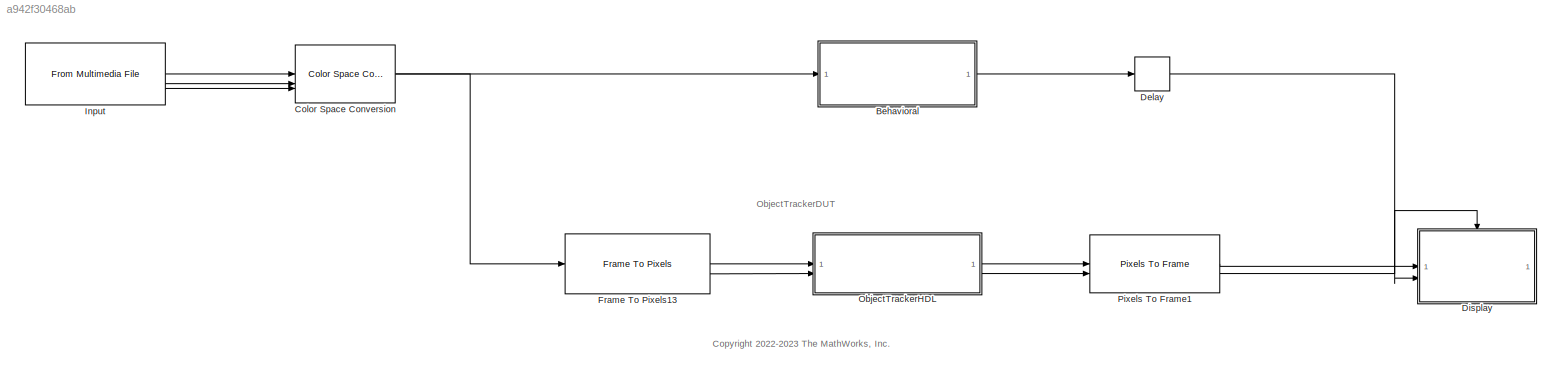
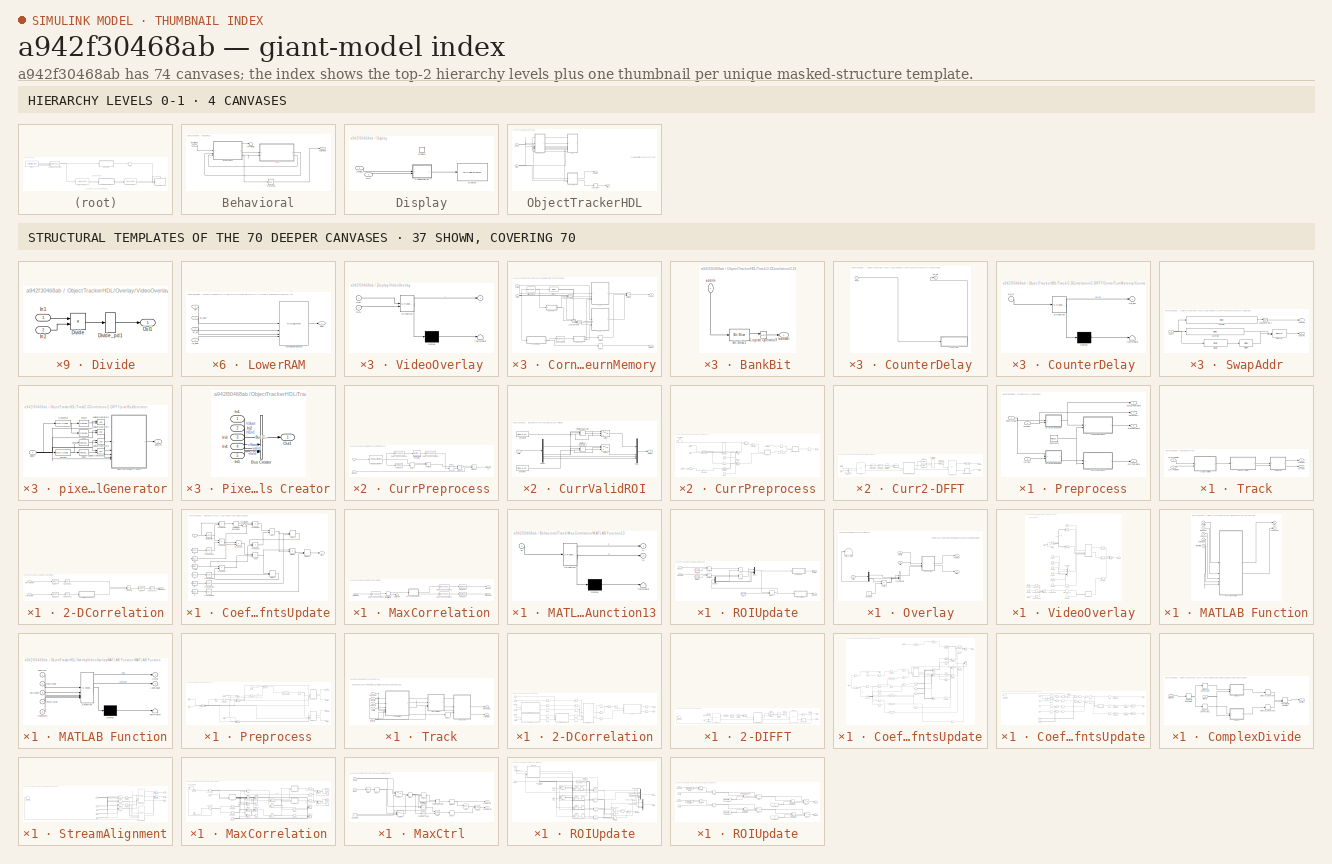
[diagram: thumbnail index - top-2 hierarchy levels (4 canvases) + 37 structural-template representatives of the remaining 70 canvases]
MODEL slx_a942f30468ab
KIND model
CONFIG AbsTol = auto
CONFIG EnableMultiTasking = off
CONFIG FixedStep = auto
CONFIG InitFcn = % Read the first frame\nvidFReader = VideoReader(get_param('ObjectTrackerHDL/Input','inputFilename'));\nimg = read(vidFReader,1);\nif (size(img,3) == 3)\n    img = rgb2gray(img);\nend\nimg = double(img);\n\n% Initialize Object Center\nobjectCenter = str2num(get_param('ObjectTrackerHDL/ObjectTrackerHDL','objectCenter'));\n\n% Template Size\ntemplateSize = str2num(get_param('ObjectTrackerHDL/ObjectTrackerHDL','...<+1630ch>
CONFIG MaxStep = auto
CONFIG MinStep = auto
CONFIG PreLoadFcn = % Blank input\nimg = zeros(480,640);\n\n% Initialize ROI and its center\nROI = [175 270 127 127];\ncenter = [ROI(2)+(ROI(4)+1)/2 ROI(1)+(ROI(3)+1)/2];\n\n% Template Size\ntemplateSize = 128;\ntSize = templateSize;\n\n% Learning rate\neta = 0.075;\n\n% Number of training images\ntrainCount = 2; \n\n% Gaussian Variance\nsig = 2;\n\n% Generate a Gaussian centered on the first frame\niSize = size(img);\n[x,y] = ndgrid(1:iS...<+475ch>
CONFIG RelTol = 1e-3
CONFIG SampleTimeConstraint = Unconstrained
CONFIG SolverName = VariableStepAuto
CONFIG StartTime = 0.0
CONFIG StopTime = 10.0
WORKSPACE source: mxarray member
WORKSPACE mwTaskManagerKernelLatency = 0
BLOCK [SubSystem] Behavioral
BLOCK [SubSystem] Behavioral/Preprocess
BLOCK [Constant] Behavioral/Preprocess/Constant8
  OutDataTypeStr = fixdt(0,16,16)
  SampleTime = -1
  Value = fi(win,0,16,16)
  VectorParams1D = off
BLOCK [SubSystem] Behavioral/Preprocess/CurrPreprocess
BLOCK [Reference] Behavioral/Preprocess/CurrPreprocess/2-D Mean2  REF=visionstatistics/2-D Mean
  SourceBlock = visionstatistics/2-D Mean
  SourceType = 2-D Mean
  UserDataPersistent = on
BLOCK [Reference] Behavioral/Preprocess/CurrPreprocess/2-D Standard Deviation  REF=visionstatistics/2-D Standard
Deviation
  SourceBlock = visionstatistics/2-D Standard\nDeviation
  SourceType = 2-D Standard Deviation
  UserDataPersistent = on
BLOCK [DataTypeConversion] Behavioral/Preprocess/CurrPreprocess/Data Type Conversion2
  OutDataTypeStr = uint8
  RndMeth = Floor
  SaturateOnIntegerOverflow = off
BLOCK [DataTypeConversion] Behavioral/Preprocess/CurrPreprocess/Data Type Conversion3
  OutDataTypeStr = single
  RndMeth = Floor
  SaturateOnIntegerOverflow = off
BLOCK [Delay] Behavioral/Preprocess/CurrPreprocess/Delay
  DelayLength = 1
  InitialCondition = uint8(mean1)
  InputPortMap = u0
BLOCK [Delay] Behavioral/Preprocess/CurrPreprocess/Delay1
  DelayLength = 1
  InitialCondition = uint8(std1)
  InputPortMap = u0
BLOCK [Product] Behavioral/Preprocess/CurrPreprocess/Divide1
  Inputs = */
  OutDataTypeStr = fixdt(1,16,12)
  SaturateOnIntegerOverflow = on
BLOCK [Reference] Behavioral/Preprocess/CurrPreprocess/Gamma Correction  REF=visionconversions/Gamma Correction
  SourceBlock = visionconversions/Gamma Correction
  SourceType = Gamma Correction
BLOCK [Product] Behavioral/Preprocess/CurrPreprocess/Product
BLOCK [Sum] Behavioral/Preprocess/CurrPreprocess/Subtract2
  IconShape = rectangular
  Inputs = +-
  OutDataTypeStr = fixdt(1,16,0)
BLOCK [Inport] Behavioral/Preprocess/CurrPreprocess/in
BLOCK [Outport] Behavioral/Preprocess/CurrPreprocess/out
BLOCK [Inport] Behavioral/Preprocess/CurrPreprocess/window
  Port = 2
BLOCK [SubSystem] Behavioral/Preprocess/MATLAB Function1
  ErrorFcn = Stateflow.Translate.translate
  LibrarySourceBlock = simulink/User-Defined\nFunctions/MATLAB Function
  PermitHierarchicalResolution = ExplicitOnly
  SFBlockType = MATLAB Function
  TreatAsAtomicUnit = on
BLOCK [Demux] Behavioral/Preprocess/MATLAB Function1/ Demux 
  Outputs = 1
BLOCK [S-Function] Behavioral/Preprocess/MATLAB Function1/ SFunction 
  EnableBusSupport = on
  FunctionName = sf_sfun
  Parameters = templateSize
  PortCounts = [2 2]
  SFcnIsStateOwnerBlock = off
  SFunctionDeploymentMode = off
  Tag = Stateflow S-Function 5
BLOCK [Terminator] Behavioral/Preprocess/MATLAB Function1/ Terminator 
BLOCK [Inport] Behavioral/Preprocess/MATLAB Function1/ROI
  Port = 2
BLOCK [Outport] Behavioral/Preprocess/MATLAB Function1/fi
BLOCK [Inport] Behavioral/Preprocess/MATLAB Function1/img
BLOCK [SubSystem] Behavioral/Preprocess/MATLAB Function7
  ErrorFcn = Stateflow.Translate.translate
  LibrarySourceBlock = simulink/User-Defined\nFunctions/MATLAB Function
  PermitHierarchicalResolution = ExplicitOnly
  SFBlockType = MATLAB Function
  TreatAsAtomicUnit = on
BLOCK [Demux] Behavioral/Preprocess/MATLAB Function7/ Demux 
  Outputs = 1
BLOCK [S-Function] Behavioral/Preprocess/MATLAB Function7/ SFunction 
  EnableBusSupport = on
  FunctionName = sf_sfun
  Parameters = templateSize
  PortCounts = [2 2]
  SFcnIsStateOwnerBlock = off
  SFunctionDeploymentMode = off
  Tag = Stateflow S-Function 8
BLOCK [Terminator] Behavioral/Preprocess/MATLAB Function7/ Terminator 
BLOCK [Inport] Behavioral/Preprocess/MATLAB Function7/ROI
  Port = 2
BLOCK [Outport] Behavioral/Preprocess/MATLAB Function7/fi
BLOCK [Inport] Behavioral/Preprocess/MATLAB Function7/img
BLOCK [SubSystem] Behavioral/Preprocess/PrevPreprocess
BLOCK [Reference] Behavioral/Preprocess/PrevPreprocess/2-D Mean2  REF=visionstatistics/2-D Mean
  SourceBlock = visionstatistics/2-D Mean
  SourceType = 2-D Mean
  UserDataPersistent = on
BLOCK [Reference] Behavioral/Preprocess/PrevPreprocess/2-D Standard Deviation  REF=visionstatistics/2-D Standard
Deviation
  SourceBlock = visionstatistics/2-D Standard\nDeviation
  SourceType = 2-D Standard Deviation
  UserDataPersistent = on
BLOCK [DataTypeConversion] Behavioral/Preprocess/PrevPreprocess/Data Type Conversion2
  OutDataTypeStr = uint8
  RndMeth = Floor
  SaturateOnIntegerOverflow = off
BLOCK [DataTypeConversion] Behavioral/Preprocess/PrevPreprocess/Data Type Conversion3
  OutDataTypeStr = single
  RndMeth = Floor
  SaturateOnIntegerOverflow = off
BLOCK [Delay] Behavioral/Preprocess/PrevPreprocess/Delay
  DelayLength = 1
  InitialCondition = uint8(mean1)
  InputPortMap = u0
BLOCK [Delay] Behavioral/Preprocess/PrevPreprocess/Delay1
  DelayLength = 1
  InitialCondition = uint8(std1)
  InputPortMap = u0
BLOCK [Product] Behavioral/Preprocess/PrevPreprocess/Divide1
  Inputs = */
  OutDataTypeStr = fixdt(1,16,12)
  SaturateOnIntegerOverflow = on
BLOCK [Reference] Behavioral/Preprocess/PrevPreprocess/Gamma Correction  REF=visionconversions/Gamma Correction
  SourceBlock = visionconversions/Gamma Correction
  SourceType = Gamma Correction
BLOCK [Product] Behavioral/Preprocess/PrevPreprocess/Product
BLOCK [Sum] Behavioral/Preprocess/PrevPreprocess/Subtract2
  IconShape = rectangular
  Inputs = +-
  OutDataTypeStr = fixdt(1,16,0)
BLOCK [Inport] Behavioral/Preprocess/PrevPreprocess/in
BLOCK [Outport] Behavioral/Preprocess/PrevPreprocess/out
BLOCK [Inport] Behavioral/Preprocess/PrevPreprocess/window
  Port = 2
BLOCK [Inport] Behavioral/Preprocess/currROI
  Port = 3
BLOCK [Outport] Behavioral/Preprocess/currTemplate
  Port = 3
BLOCK [Inport] Behavioral/Preprocess/inputImage
BLOCK [Outport] Behavioral/Preprocess/outputROI
  Port = 4
BLOCK [Outport] Behavioral/Preprocess/outputTemplate
BLOCK [Inport] Behavioral/Preprocess/prevROI
  Port = 2
BLOCK [Outport] Behavioral/Preprocess/prevTemplate
  Port = 2
BLOCK [Terminator] Behavioral/Terminator
BLOCK [SubSystem] Behavioral/Track
BLOCK [SubSystem] Behavioral/Track/2-DCorrelation
BLOCK [Reference] Behavioral/Track/2-DCorrelation/2-D FFT  REF=visiontransforms/2-D FFT
  SourceBlock = visiontransforms/2-D FFT
  SourceType = 2-D FFT
BLOCK [Reference] Behavioral/Track/2-DCorrelation/2-D FFT1  REF=visiontransforms/2-D FFT
  SourceBlock = visiontransforms/2-D FFT
  SourceType = 2-D FFT
BLOCK [Reference] Behavioral/Track/2-DCorrelation/2-D IFFT  REF=visiontransforms/2-D IFFT
  SourceBlock = visiontransforms/2-D IFFT
  SourceType = 2-D IFFT
BLOCK [SubSystem] Behavioral/Track/2-DCorrelation/CoefficientsUpdate
BLOCK [Constant] Behavioral/Track/2-DCorrelation/CoefficientsUpdate/1-eta
  OutDataTypeStr = fixdt(0,16,16)
  SampleTime = -1
  Value = fi(1-eta,0,16,16)
BLOCK [Sum] Behavioral/Track/2-DCorrelation/CoefficientsUpdate/Add6
  IconShape = rectangular
  OutDataTypeStr = fixdt(1,28,8)
BLOCK [Sum] Behavioral/Track/2-DCorrelation/CoefficientsUpdate/Add7
  IconShape = rectangular
  OutDataTypeStr = fixdt(1,36,8)
BLOCK [Constant] Behavioral/Track/2-DCorrelation/CoefficientsUpdate/Ai
  OutDataTypeStr = fixdt(1,28,8)
  SampleTime = -1
  Value = fi(Ai,1,28,8)
BLOCK [Constant] Behavioral/Track/2-DCorrelation/CoefficientsUpdate/Bi
  OutDataTypeStr = fixdt(1,36,8)
  SampleTime = -1
  Value = fi(Bi,1,36,8)
BLOCK [ComplexToRealImag] Behavioral/Track/2-DCorrelation/CoefficientsUpdate/Complex to Real-Imag1
BLOCK [Math] Behavioral/Track/2-DCorrelation/CoefficientsUpdate/Conjugate1
  Operator = conj
  RndMeth = Zero
  SignedPower = on
BLOCK [Delay] Behavioral/Track/2-DCorrelation/CoefficientsUpdate/Delay4
  DelayLength = 1
  InitialCondition = Ai
  InitialConditionSource = Input port
  InputPortMap = u0,p4
BLOCK [Delay] Behavioral/Track/2-DCorrelation/CoefficientsUpdate/Delay5
  DelayLength = 1
  InitialCondition = Bi
  InitialConditionSource = Input port
  InputPortMap = u0,p4
BLOCK [Delay] Behavioral/Track/2-DCorrelation/CoefficientsUpdate/Delay6
  DelayLength = 1
  InitialCondition = Hi
  InitialConditionSource = Input port
  InputPortMap = u0,p4
BLOCK [Product] Behavioral/Track/2-DCorrelation/CoefficientsUpdate/Divide1
  Inputs = */
  OutDataTypeStr = fixdt(1,24,12)
  RndMeth = Simplest
  SaturateOnIntegerOverflow = on
BLOCK [Constant] Behavioral/Track/2-DCorrelation/CoefficientsUpdate/G
  SampleTime = -1
  Value = fi(G,1,16,11)
  VectorParams1D = off
BLOCK [Constant] Behavioral/Track/2-DCorrelation/CoefficientsUpdate/Hi
  OutDataTypeStr = fixdt(1,24,12)
  SampleTime = -1
  Value = fi(Hi,1,24,12)
BLOCK [Inport] Behavioral/Track/2-DCorrelation/CoefficientsUpdate/In
BLOCK [Outport] Behavioral/Track/2-DCorrelation/CoefficientsUpdate/Out
BLOCK [Product] Behavioral/Track/2-DCorrelation/CoefficientsUpdate/Product10
  OutDataTypeStr = fixdt(1,24,12)
BLOCK [Product] Behavioral/Track/2-DCorrelation/CoefficientsUpdate/Product11
  OutDataTypeStr = fixdt(1,28,8)
BLOCK [Product] Behavioral/Track/2-DCorrelation/CoefficientsUpdate/Product12
  OutDataTypeStr = fixdt(1,32,8)
BLOCK [Product] Behavioral/Track/2-DCorrelation/CoefficientsUpdate/Product13
  OutDataTypeStr = fixdt(1,32,12)
BLOCK [Product] Behavioral/Track/2-DCorrelation/CoefficientsUpdate/Product14
  OutDataTypeStr = fixdt(1,36,8)
BLOCK [Product] Behavioral/Track/2-DCorrelation/CoefficientsUpdate/Product9
  OutDataTypeStr = fixdt(1,24,8)
BLOCK [Terminator] Behavioral/Track/2-DCorrelation/CoefficientsUpdate/Terminator
BLOCK [Math] Behavioral/Track/2-DCorrelation/CoefficientsUpdate/Transpose1
  Operator = transpose
BLOCK [Math] Behavioral/Track/2-DCorrelation/CoefficientsUpdate/Transpose5
  Operator = transpose
BLOCK [Math] Behavioral/Track/2-DCorrelation/CoefficientsUpdate/Transpose6
  Operator = transpose
BLOCK [Math] Behavioral/Track/2-DCorrelation/CoefficientsUpdate/Transpose7
  Operator = transpose
BLOCK [Constant] Behavioral/Track/2-DCorrelation/CoefficientsUpdate/eta
  SampleTime = -1
  Value = fi(eta,0,16,16)
BLOCK [Product] Behavioral/Track/2-DCorrelation/Product8
  OutDataTypeStr = fixdt(1,24,16)
BLOCK [Math] Behavioral/Track/2-DCorrelation/Transpose
  Operator = transpose
BLOCK [Math] Behavioral/Track/2-DCorrelation/Transpose1
  Operator = transpose
BLOCK [Math] Behavioral/Track/2-DCorrelation/Transpose2
  Operator = transpose
BLOCK [Outport] Behavioral/Track/2-DCorrelation/correlationOut
BLOCK [Inport] Behavioral/Track/2-DCorrelation/currTemplate
  Port = 2
BLOCK [Inport] Behavioral/Track/2-DCorrelation/prevTemplate
BLOCK [SubSystem] Behavioral/Track/MaxCorrelation
BLOCK [Reference] Behavioral/Track/MaxCorrelation/2-D Mean3  REF=visionstatistics/2-D Mean
  SourceBlock = visionstatistics/2-D Mean
  SourceType = 2-D Mean
  UserDataPersistent = on
BLOCK [Reference] Behavioral/Track/MaxCorrelation/2-D Mean4  REF=visionstatistics/2-D Mean
  SourceBlock = visionstatistics/2-D Mean
  SourceType = 2-D Mean
  UserDataPersistent = on
BLOCK [ComplexToRealImag] Behavioral/Track/MaxCorrelation/Complex to Real-Imag
BLOCK [DataTypeConversion] Behavioral/Track/MaxCorrelation/Data Type Conversion1
  OutDataTypeStr = uint16
  RndMeth = Floor
  SaturateOnIntegerOverflow = off
BLOCK [DataTypeConversion] Behavioral/Track/MaxCorrelation/Data Type Conversion3
  OutDataTypeStr = single
  RndMeth = Floor
  SaturateOnIntegerOverflow = off
BLOCK [DataTypeConversion] Behavioral/Track/MaxCorrelation/Data Type Conversion4
  OutDataTypeStr = uint16
  RndMeth = Floor
  SaturateOnIntegerOverflow = off
BLOCK [SubSystem] Behavioral/Track/MaxCorrelation/MATLAB Function13
  ErrorFcn = Stateflow.Translate.translate
  LibrarySourceBlock = simulink/User-Defined\nFunctions/MATLAB Function
  PermitHierarchicalResolution = ExplicitOnly
  SFBlockType = MATLAB Function
  TreatAsAtomicUnit = on
BLOCK [Demux] Behavioral/Track/MaxCorrelation/MATLAB Function13/ Demux 
  Outputs = 1
BLOCK [S-Function] Behavioral/Track/MaxCorrelation/MATLAB Function13/ SFunction 
  EnableBusSupport = on
  FunctionName = sf_sfun
  PortCounts = [1 3]
  SFcnIsStateOwnerBlock = off
  SFunctionDeploymentMode = off
  Tag = Stateflow S-Function 13
BLOCK [Terminator] Behavioral/Track/MaxCorrelation/MATLAB Function13/ Terminator 
BLOCK [Outport] Behavioral/Track/MaxCorrelation/MATLAB Function13/P
BLOCK [Outport] Behavioral/Track/MaxCorrelation/MATLAB Function13/Q
  Port = 2
BLOCK [Inport] Behavioral/Track/MaxCorrelation/MATLAB Function13/gi
BLOCK [Terminator] Behavioral/Track/MaxCorrelation/Terminator
BLOCK [Inport] Behavioral/Track/MaxCorrelation/correlationIn
BLOCK [Outport] Behavioral/Track/MaxCorrelation/maxCol
BLOCK [Outport] Behavioral/Track/MaxCorrelation/maxRow
  Port = 2
BLOCK [SubSystem] Behavioral/Track/ROIUpdate
BLOCK [Sum] Behavioral/Track/ROIUpdate/Add4
  IconShape = rectangular
  OutDataTypeStr = uint16
BLOCK [Sum] Behavioral/Track/ROIUpdate/Add5
  IconShape = rectangular
  OutDataTypeStr = uint16
BLOCK [SubSystem] Behavioral/Track/ROIUpdate/CurrValidROI
BLOCK [Constant] Behavioral/Track/ROIUpdate/CurrValidROI/Constant
  OutDataTypeStr = uint16
  SampleTime = -1
  Value = iSize(1)-tSize
BLOCK [Constant] Behavioral/Track/ROIUpdate/CurrValidROI/Constant1
  OutDataTypeStr = uint16
  SampleTime = -1
  Value = iSize(2)-tSize
BLOCK [Demux] Behavioral/Track/ROIUpdate/CurrValidROI/Demux
BLOCK [Mux] Behavioral/Track/ROIUpdate/CurrValidROI/Mux1
  DisplayOption = bar
BLOCK [Inport] Behavioral/Track/ROIUpdate/CurrValidROI/ROIIn
BLOCK [Outport] Behavioral/Track/ROIUpdate/CurrValidROI/ROIOut
BLOCK [RelationalOperator] Behavioral/Track/ROIUpdate/CurrValidROI/Relational Operator
  InputSameDT = off
  Operator = <
  OutDataTypeStr = boolean
  RndMeth = Simplest
BLOCK [RelationalOperator] Behavioral/Track/ROIUpdate/CurrValidROI/Relational Operator1
  InputSameDT = off
  Operator = <
  OutDataTypeStr = boolean
  RndMeth = Simplest
BLOCK [Switch] Behavioral/Track/ROIUpdate/CurrValidROI/Switch
  Criteria = u2 ~= 0
  InputSameDT = off
  SaturateOnIntegerOverflow = off
BLOCK [Switch] Behavioral/Track/ROIUpdate/CurrValidROI/Switch1
  Criteria = u2 ~= 0
  InputSameDT = off
  SaturateOnIntegerOverflow = off
BLOCK [Delay] Behavioral/Track/ROIUpdate/Delay7
  DelayLength = 1
  InitialCondition = 0
  InitialConditionSource = Input port
  InputPortMap = u0,p4
BLOCK [Demux] Behavioral/Track/ROIUpdate/Demux1
BLOCK [Mux] Behavioral/Track/ROIUpdate/Mux1
  DisplayOption = bar
BLOCK [SubSystem] Behavioral/Track/ROIUpdate/PrevValidROI
BLOCK [Constant] Behavioral/Track/ROIUpdate/PrevValidROI/Constant
  OutDataTypeStr = uint16
  SampleTime = -1
  Value = iSize(1)-tSize
BLOCK [Constant] Behavioral/Track/ROIUpdate/PrevValidROI/Constant1
  OutDataTypeStr = uint16
  SampleTime = -1
  Value = iSize(2)-tSize
BLOCK [Demux] Behavioral/Track/ROIUpdate/PrevValidROI/Demux
BLOCK [Mux] Behavioral/Track/ROIUpdate/PrevValidROI/Mux1
  DisplayOption = bar
BLOCK [Inport] Behavioral/Track/ROIUpdate/PrevValidROI/ROIIn
BLOCK [Outport] Behavioral/Track/ROIUpdate/PrevValidROI/ROIOut
BLOCK [RelationalOperator] Behavioral/Track/ROIUpdate/PrevValidROI/Relational Operator
  InputSameDT = off
  Operator = <
  OutDataTypeStr = boolean
  RndMeth = Simplest
BLOCK [RelationalOperator] Behavioral/Track/ROIUpdate/PrevValidROI/Relational Operator1
  InputSameDT = off
  Operator = <
  OutDataTypeStr = boolean
  RndMeth = Simplest
BLOCK [Switch] Behavioral/Track/ROIUpdate/PrevValidROI/Switch
  Criteria = u2 ~= 0
  InputSameDT = off
  SaturateOnIntegerOverflow = off
BLOCK [Switch] Behavioral/Track/ROIUpdate/PrevValidROI/Switch1
  Criteria = u2 ~= 0
  InputSameDT = off
  SaturateOnIntegerOverflow = off
BLOCK [Constant] Behavioral/Track/ROIUpdate/ROI
  OutDataTypeStr = uint16
  SampleTime = -1
  Value = uint16(ROI)
BLOCK [Sum] Behavioral/Track/ROIUpdate/Subtract3
  IconShape = rectangular
  Inputs = +-
  OutDataTypeStr = fixdt(1,17,0)
BLOCK [Sum] Behavioral/Track/ROIUpdate/Subtract4
  IconShape = rectangular
  Inputs = +-
  OutDataTypeStr = fixdt(1,17,0)
BLOCK [Outport] Behavioral/Track/ROIUpdate/currROI
  Port = 2
BLOCK [Constant] Behavioral/Track/ROIUpdate/height//2
  SampleTime = -1
  Value = uint16(tSize/2)
BLOCK [Inport] Behavioral/Track/ROIUpdate/maxCol
BLOCK [Inport] Behavioral/Track/ROIUpdate/maxRow
  Port = 2
BLOCK [Outport] Behavioral/Track/ROIUpdate/prevROI
BLOCK [Constant] Behavioral/Track/ROIUpdate/width//2
  SampleTime = -1
  Value = uint16(tSize/2)
BLOCK [Outport] Behavioral/Track/currROI
  Port = 2
BLOCK [Inport] Behavioral/Track/currTemplate
  Port = 2
BLOCK [Outport] Behavioral/Track/prevROI
BLOCK [Inport] Behavioral/Track/prevTemplate
BLOCK [Math] Behavioral/Transpose
  Operator = transpose
BLOCK [Inport] Behavioral/inputImage
BLOCK [Outport] Behavioral/outputROI
BLOCK [Reference] Color Space Conversion  REF=visionconversions/Color Space
 Conversion
  SourceBlock = visionconversions/Color Space\n Conversion
  SourceType = Color Space Conversion
BLOCK [Delay] Delay
  InputPortMap = u0
BLOCK [SubSystem] Display
BLOCK [Reference] Display/Display  REF=visionsinks/To Video Display
  SourceBlock = visionsinks/To Video Display
  SourceType = To Video Display
BLOCK [EnablePort] Display/Enable
BLOCK [Inport] Display/Image
BLOCK [Inport] Display/ROI
  Port = 2
BLOCK [SubSystem] Display/VideoOverlay
  ErrorFcn = Stateflow.Translate.translate
  LibrarySourceBlock = simulink/User-Defined\nFunctions/MATLAB Function
  PermitHierarchicalResolution = ExplicitOnly
  SFBlockType = MATLAB Function
  TreatAsAtomicUnit = on
BLOCK [Demux] Display/VideoOverlay/ Demux 
  Outputs = 1
BLOCK [S-Function] Display/VideoOverlay/ SFunction 
  EnableBusSupport = on
  FunctionName = sf_sfun
  PortCounts = [2 2]
  SFcnIsStateOwnerBlock = off
  SFunctionDeploymentMode = off
  Tag = Stateflow S-Function 4
BLOCK [Terminator] Display/VideoOverlay/ Terminator 
BLOCK [Inport] Display/VideoOverlay/ROI
  Port = 2
BLOCK [Inport] Display/VideoOverlay/img
BLOCK [Outport] Display/VideoOverlay/y
BLOCK [Reference] Frame To Pixels13  REF=visionhdlio/Frame To Pixels
  SourceBlock = visionhdlio/Frame To Pixels
  SourceType = Frame To Pixels
BLOCK [Reference] Input  REF=dspvision/From Multimedia File
  LibrarySourceBlock = visionsources/From Multimedia File
  SourceBlock = dspvision/From Multimedia File
  SourceType = From Multimedia File
BLOCK [SubSystem] ObjectTrackerHDL
BLOCK [SubSystem] ObjectTrackerHDL/Overlay
BLOCK [Constant] ObjectTrackerHDL/Overlay/Constant
  OutDataTypeStr = uint16
  SampleTime = 7.94444444444444e-08
BLOCK [Inport] ObjectTrackerHDL/Overlay/ROIIn
  OutDataTypeStr = uint16
  Port = 3
  PortDimensions = [4]
  SampleTime = 7.94444444444444e-08
BLOCK [Terminator] ObjectTrackerHDL/Overlay/ROIIn_3_term3
BLOCK [Sum] ObjectTrackerHDL/Overlay/Subtract
  AccumDataTypeStr = uint16
  IconShape = rectangular
  Inputs = +-
  OutDataTypeStr = uint16
  SampleTime = 7.94444444444444e-08
BLOCK [SubSystem] ObjectTrackerHDL/Overlay/VideoOverlay
BLOCK [Constant] ObjectTrackerHDL/Overlay/VideoOverlay/Constant1
  OutDataTypeStr = uint8
  SampleTime = 7.94444444444444e-08
  Value = 3
  VectorParams1D = off
BLOCK [Constant] ObjectTrackerHDL/Overlay/VideoOverlay/Constant10
  OutDataTypeStr = int8
  SampleTime = 7.94444444444444e-08
  VectorParams1D = off
BLOCK [Constant] ObjectTrackerHDL/Overlay/VideoOverlay/Constant2
  OutDataTypeStr = int8
  SampleTime = 7.94444444444444e-08
  Value = repmat(0,[1  3])
  VectorParams1D = off
BLOCK [Constant] ObjectTrackerHDL/Overlay/VideoOverlay/Constant3
  OutDataTypeStr = fixdt(1, 9, 0)
  SampleTime = 7.94444444444444e-08
  Value = repmat(-255,[1  3])
  VectorParams1D = off
BLOCK [Constant] ObjectTrackerHDL/Overlay/VideoOverlay/Constant4
  OutDataTypeStr = uint8
  SampleTime = 7.94444444444444e-08
  Value = 3
BLOCK [Constant] ObjectTrackerHDL/Overlay/VideoOverlay/Constant5
  OutDataTypeStr = uint8
  SampleTime = 7.94444444444444e-08
  Value = [255 0 0]
  VectorParams1D = off
BLOCK [Constant] ObjectTrackerHDL/Overlay/VideoOverlay/Constant6
  OutDataTypeStr = uint8
  SampleTime = 7.94444444444444e-08
  Value = [0 255 0]
  VectorParams1D = off
BLOCK [Constant] ObjectTrackerHDL/Overlay/VideoOverlay/Constant7
  OutDataTypeStr = uint8
  SampleTime = 7.94444444444444e-08
  Value = [0 0 255]
  VectorParams1D = off
BLOCK [Constant] ObjectTrackerHDL/Overlay/VideoOverlay/Constant8
  OutDataTypeStr = uint8
  SampleTime = 7.94444444444444e-08
  Value = [0 255 255]
  VectorParams1D = off
BLOCK [Constant] ObjectTrackerHDL/Overlay/VideoOverlay/Constant9
  OutDataTypeStr = uint8
  SampleTime = 7.94444444444444e-08
  Value = [255 255 0]
  VectorParams1D = off
BLOCK [DataTypeConversion] ObjectTrackerHDL/Overlay/VideoOverlay/Data Type Conversion
  OutDataTypeStr = uint8
  RndMeth = Floor
  SampleTime = 7.94444444444444e-08
  SaturateOnIntegerOverflow = off
BLOCK [SubSystem] ObjectTrackerHDL/Overlay/VideoOverlay/Divide
BLOCK [Product] ObjectTrackerHDL/Overlay/VideoOverlay/Divide/Divide
  Inputs = */
  OutDataTypeStr = fixdt(1, 18, 0)
  RndMeth = Zero
  SaturateOnIntegerOverflow = on
BLOCK [Delay] ObjectTrackerHDL/Overlay/VideoOverlay/Divide/Divide_pd1
  DelayLength = 22
  InputPortMap = u0
BLOCK [Inport] ObjectTrackerHDL/Overlay/VideoOverlay/Divide/In1
BLOCK [Inport] ObjectTrackerHDL/Overlay/VideoOverlay/Divide/In2
  Port = 2
BLOCK [Outport] ObjectTrackerHDL/Overlay/VideoOverlay/Divide/Out1
BLOCK [Reference] ObjectTrackerHDL/Overlay/VideoOverlay/HDL Counter  REF=hdlsllib/Sources/HDL Counter
  SourceBlock = hdlsllib/Sources/HDL Counter
  SourceType = HDL Counter
BLOCK [Reference] ObjectTrackerHDL/Overlay/VideoOverlay/HDL Counter1  REF=hdlsllib/Sources/HDL Counter
  SourceBlock = hdlsllib/Sources/HDL Counter
  SourceType = HDL Counter
BLOCK [Delay] ObjectTrackerHDL/Overlay/VideoOverlay/HwModeRegister
  DelayLength = double(1)
  InitialCondition = 0
  InputPortMap = u0
  SampleTime = 7.94444444444444e-08
BLOCK [Delay] ObjectTrackerHDL/Overlay/VideoOverlay/HwModeRegister1
  DelayLength = double(1)
  InitialCondition = 0
  InputPortMap = u0
  SampleTime = 7.94444444444444e-08
BLOCK [Delay] ObjectTrackerHDL/Overlay/VideoOverlay/HwModeRegister2
  DelayLength = double(1)
  InitialCondition = 0
  InputPortMap = u0
  SampleTime = 7.94444444444444e-08
BLOCK [SubSystem] ObjectTrackerHDL/Overlay/VideoOverlay/MATLAB Function
BLOCK [Outport] ObjectTrackerHDL/Overlay/VideoOverlay/MATLAB Function/AddShape
  Port = 2
  SampleTime = 7.94444444444444e-08
BLOCK [Outport] ObjectTrackerHDL/Overlay/VideoOverlay/MATLAB Function/Color
  SampleTime = 7.94444444444444e-08
  VectorParamsAs1DForOutWhenUnconnected = off
BLOCK [SubSystem] ObjectTrackerHDL/Overlay/VideoOverlay/MATLAB Function/MATLAB Function
  ErrorFcn = Stateflow.Translate.translate
  PermitHierarchicalResolution = ExplicitOnly
  SFBlockType = MATLAB Function
  TreatAsAtomicUnit = on
BLOCK [Demux] ObjectTrackerHDL/Overlay/VideoOverlay/MATLAB Function/MATLAB Function/ Demux 
  Outputs = 1
BLOCK [S-Function] ObjectTrackerHDL/Overlay/VideoOverlay/MATLAB Function/MATLAB Function/ SFunction 
  EnableBusSupport = on
  FunctionName = sf_sfun
  PortCounts = [5 3]
  SFcnIsStateOwnerBlock = off
  SFunctionDeploymentMode = off
  Tag = Stateflow S-Function 2
BLOCK [Terminator] ObjectTrackerHDL/Overlay/VideoOverlay/MATLAB Function/MATLAB Function/ Terminator 
BLOCK [Outport] ObjectTrackerHDL/Overlay/VideoOverlay/MATLAB Function/MATLAB Function/AddShape
  Port = 2
BLOCK [Outport] ObjectTrackerHDL/Overlay/VideoOverlay/MATLAB Function/MATLAB Function/Color
  VectorParamsAs1DForOutWhenUnconnected = off
BLOCK [Inport] ObjectTrackerHDL/Overlay/VideoOverlay/MATLAB Function/MATLAB Function/colCount
  Port = 3
BLOCK [Inport] ObjectTrackerHDL/Overlay/VideoOverlay/MATLAB Function/MATLAB Function/colorValue
  Port = 4
BLOCK [Inport] ObjectTrackerHDL/Overlay/VideoOverlay/MATLAB Function/MATLAB Function/lineWidth
  Port = 5
BLOCK [Inport] ObjectTrackerHDL/Overlay/VideoOverlay/MATLAB Function/MATLAB Function/position
BLOCK [Inport] ObjectTrackerHDL/Overlay/VideoOverlay/MATLAB Function/MATLAB Function/rowCount
  Port = 2
BLOCK [Inport] ObjectTrackerHDL/Overlay/VideoOverlay/MATLAB Function/colCount
  OutDataTypeStr = int32
  Port = 3
  PortDimensions = 1
  SampleTime = 7.94444444444444e-08
BLOCK [Inport] ObjectTrackerHDL/Overlay/VideoOverlay/MATLAB Function/colorValue
  OutDataTypeStr = uint8
  Port = 4
  PortDimensions = [1 3]
  SampleTime = 7.94444444444444e-08
BLOCK [Inport] ObjectTrackerHDL/Overlay/VideoOverlay/MATLAB Function/lineWidth
  OutDataTypeStr = uint8
  Port = 5
  PortDimensions = 1
  SampleTime = 7.94444444444444e-08
BLOCK [Inport] ObjectTrackerHDL/Overlay/VideoOverlay/MATLAB Function/position
  OutDataTypeStr = uint16
  PortDimensions = [1 4]
  SampleTime = 7.94444444444444e-08
BLOCK [Inport] ObjectTrackerHDL/Overlay/VideoOverlay/MATLAB Function/rowCount
  OutDataTypeStr = int32
  Port = 2
  PortDimensions = 1
  SampleTime = 7.94444444444444e-08
BLOCK [Reference] ObjectTrackerHDL/Overlay/VideoOverlay/Multiply-Add  REF=hdlsllib/HDL Operations/Multiply-Add
  SourceBlock = hdlsllib/HDL Operations/Multiply-Add
  SourceType = Multiply-Add
BLOCK [DataTypeConversion] ObjectTrackerHDL/Overlay/VideoOverlay/Multiply-Add_out_dtc
  OutDataTypeStr = fixdt(1, 18, 0)
  RndMeth = Floor
  SampleTime = 7.94444444444444e-08
  SaturateOnIntegerOverflow = off
BLOCK [MultiPortSwitch] ObjectTrackerHDL/Overlay/VideoOverlay/Multiport Switch
  DiagnosticForDefault = None
  InputSameDT = off
  Inputs = 5
  OutDataTypeStr = uint8
  SampleTime = 7.94444444444444e-08
  SaturateOnIntegerOverflow = off
BLOCK [Delay] ObjectTrackerHDL/Overlay/VideoOverlay/PipelineRegister
  DelayLength = double(2)
  InitialCondition = 0
  InputPortMap = u0
  SampleTime = 7.94444444444444e-08
BLOCK [Inport] ObjectTrackerHDL/Overlay/VideoOverlay/Position
  OutDataTypeStr = uint16
  Port = 3
  PortDimensions = [1 4]
  SampleTime = 7.94444444444444e-08
BLOCK [Switch] ObjectTrackerHDL/Overlay/VideoOverlay/Switch
  Criteria = u2 ~= 0
  InputSameDT = off
  OutDataTypeStr = uint8
  SampleTime = 7.94444444444444e-08
  SaturateOnIntegerOverflow = off
  Threshold = double(0)
BLOCK [BusSelector] ObjectTrackerHDL/Overlay/VideoOverlay/bus_selector
  OutputSignals = vStart,hStart,valid
BLOCK [Inport] ObjectTrackerHDL/Overlay/VideoOverlay/ctrlIn
  Port = 2
BLOCK [Outport] ObjectTrackerHDL/Overlay/VideoOverlay/ctrlOut
  Port = 2
BLOCK [Delay] ObjectTrackerHDL/Overlay/VideoOverlay/delayMatch
  DelayLength = double(25)
  InitialCondition = 0
  InputPortMap = u0
  SampleTime = 7.94444444444444e-08
BLOCK [Delay] ObjectTrackerHDL/Overlay/VideoOverlay/delayMatch1
  DelayLength = double(25)
  InitialCondition = 0
  InputPortMap = u0
  SampleTime = 7.94444444444444e-08
BLOCK [Inport] ObjectTrackerHDL/Overlay/VideoOverlay/pixelIn
  OutDataTypeStr = uint8
  PortDimensions = 1
  SampleTime = 7.94444444444444e-08
BLOCK [Outport] ObjectTrackerHDL/Overlay/VideoOverlay/pixelOut
  SampleTime = 7.94444444444444e-08
BLOCK [Concatenate] ObjectTrackerHDL/Overlay/concatenate
  ConcatenateDimension = 2
  Mode = Multidimensional array
  NumInputs = 4
BLOCK [Inport] ObjectTrackerHDL/Overlay/ctrlIn
  Port = 2
BLOCK [Outport] ObjectTrackerHDL/Overlay/ctrlOut
  Port = 2
BLOCK [Inport] ObjectTrackerHDL/Overlay/pixelIn
  OutDataTypeStr = uint8
  PortDimensions = 1
  SampleTime = 7.94444444444444e-08
BLOCK [Outport] ObjectTrackerHDL/Overlay/pixelOut
  SampleTime = 7.94444444444444e-08
BLOCK [Demux] ObjectTrackerHDL/Overlay/t
BLOCK [SubSystem] ObjectTrackerHDL/Preprocess
BLOCK [Lookup_n-D] ObjectTrackerHDL/Preprocess/1-D Lookup Table
  BreakpointsForDimension1 = [0:tSize * tSize - 1]
  BreakpointsForDimension1FirstPoint = 10
  BreakpointsForDimension1Spacing = 12
  BreakpointsForDimension2FirstPoint = 10
  BreakpointsForDimension2Spacing = 12
  IndexSearchMethod = Evenly spaced points
  InputPortMap = u0
  InternalRulePriority = Speed
  InterpMethod = Flat
  LookupTableObject = ''
  NumberOfTableDimensions = 1
  OutDataTypeStr = fixdt(0,16,16)
  RndMeth = Simplest
  Table = fi(win(:)',0,16,16)
BLOCK [Constant] ObjectTrackerHDL/Preprocess/Constant
  OutDataTypeStr = boolean
  SampleTime = 7.94444444444444e-08
  Value = 0
BLOCK [SubSystem] ObjectTrackerHDL/Preprocess/CurrPreprocess
BLOCK [Reference] ObjectTrackerHDL/Preprocess/CurrPreprocess/Compare To Constant1  REF=simulink/Logic and Bit
Operations/Compare
To Constant
  SourceBlock = simulink/Logic and Bit\nOperations/Compare\nTo Constant
  SourceType = Compare To Constant
BLOCK [DataTypeConversion] ObjectTrackerHDL/Preprocess/CurrPreprocess/Data Type Conversion
  OutDataTypeStr = fixdt(1, 28, 12)
  RndMeth = Floor
  SampleTime = 7.94444444444444e-08
  SaturateOnIntegerOverflow = off
BLOCK [Delay] ObjectTrackerHDL/Preprocess/CurrPreprocess/Delay
  DelayLength = double(34)
  InitialCondition = 0
  InputPortMap = u0
  SampleTime = 7.94444444444444e-08
BLOCK [Delay] ObjectTrackerHDL/Preprocess/CurrPreprocess/Delay1_absorbed
  DelayLength = 0
  InputPortMap = u0
BLOCK [Delay] ObjectTrackerHDL/Preprocess/CurrPreprocess/Delay2
  DelayLength = double(30)
  InitialCondition = 0
  InputPortMap = u0
  SampleTime = 7.94444444444444e-08
BLOCK [Delay] ObjectTrackerHDL/Preprocess/CurrPreprocess/Delay3
  DelayLength = double(68)
  InputPortMap = u0
  SampleTime = 7.94444444444444e-08
BLOCK [SubSystem] ObjectTrackerHDL/Preprocess/CurrPreprocess/Divide1
BLOCK [Product] ObjectTrackerHDL/Preprocess/CurrPreprocess/Divide1/Divide1
  Inputs = */
  OutDataTypeStr = fixdt(1,16,12)
  RndMeth = Zero
  SaturateOnIntegerOverflow = on
BLOCK [Delay] ObjectTrackerHDL/Preprocess/CurrPreprocess/Divide1/Divide1_pd1
  DelayLength = 34
  InputPortMap = u0
BLOCK [Inport] ObjectTrackerHDL/Preprocess/CurrPreprocess/Divide1/In1
BLOCK [Inport] ObjectTrackerHDL/Preprocess/CurrPreprocess/Divide1/In2
  Port = 2
BLOCK [Outport] ObjectTrackerHDL/Preprocess/CurrPreprocess/Divide1/Out1
BLOCK [Reference] ObjectTrackerHDL/Preprocess/CurrPreprocess/Gamma Corrector  REF=visionhdlconversions/Gamma Corrector
  SourceBlock = visionhdlconversions/Gamma Corrector
  SourceType = Gamma Corrector
BLOCK [Reference] ObjectTrackerHDL/Preprocess/CurrPreprocess/HDL Counter2  REF=hdlsllib/Sources/HDL Counter
  SourceBlock = hdlsllib/Sources/HDL Counter
  SourceType = HDL Counter
BLOCK [Reference] ObjectTrackerHDL/Preprocess/CurrPreprocess/Image Statistics  REF=visionhdlstatistics/Image Statistics
  SourceBlock = visionhdlstatistics/Image Statistics
  SourceType = Image Statistics
BLOCK [Terminator] ObjectTrackerHDL/Preprocess/CurrPreprocess/Image Statistics_term2
BLOCK [SubSystem] ObjectTrackerHDL/Preprocess/CurrPreprocess/Multiply_ShiftAdd_inst
BLOCK [Inport] ObjectTrackerHDL/Preprocess/CurrPreprocess/Multiply_ShiftAdd_inst/In1
BLOCK [Inport] ObjectTrackerHDL/Preprocess/CurrPreprocess/Multiply_ShiftAdd_inst/In2
  Port = 2
BLOCK [Product] ObjectTrackerHDL/Preprocess/CurrPreprocess/Multiply_ShiftAdd_inst/Multiply_ShiftAdd_inst
  OutDataTypeStr = fixdt(1, 32, 28)
BLOCK [Delay] ObjectTrackerHDL/Preprocess/CurrPreprocess/Multiply_ShiftAdd_inst/Multiply_ShiftAdd_inst_pd1
  DelayLength = 4
  InputPortMap = u0
BLOCK [Outport] ObjectTrackerHDL/Preprocess/CurrPreprocess/Multiply_ShiftAdd_inst/Out1
BLOCK [Sum] ObjectTrackerHDL/Preprocess/CurrPreprocess/Subtract2
  AccumDataTypeStr = fixdt(1, 9, 0)
  IconShape = rectangular
  Inputs = +-
  OutDataTypeStr = int16
  SampleTime = 7.94444444444444e-08
BLOCK [Switch] ObjectTrackerHDL/Preprocess/CurrPreprocess/Switch
  Criteria = u2 ~= 0
  InputSameDT = off
  OutDataTypeStr = uint8
  SampleTime = 7.94444444444444e-08
  SaturateOnIntegerOverflow = off
  Threshold = double(0)
BLOCK [Switch] ObjectTrackerHDL/Preprocess/CurrPreprocess/Switch1
  Criteria = u2 ~= 0
  InputSameDT = off
  OutDataTypeStr = uint8
  SampleTime = 7.94444444444444e-08
  SaturateOnIntegerOverflow = off
  Threshold = double(0)
BLOCK [BusSelector] ObjectTrackerHDL/Preprocess/CurrPreprocess/bus_selector
  OutputSignals = vEnd
BLOCK [Inport] ObjectTrackerHDL/Preprocess/CurrPreprocess/ctrlIn
  Port = 3
BLOCK [Outport] ObjectTrackerHDL/Preprocess/CurrPreprocess/ctrlOut
  Port = 2
BLOCK [Inport] ObjectTrackerHDL/Preprocess/CurrPreprocess/frameCtrl
  Port = 4
BLOCK [Constant] ObjectTrackerHDL/Preprocess/CurrPreprocess/mean
  OutDataTypeStr = uint8
  SampleTime = 7.94444444444444e-08
  Value = 51
BLOCK [Inport] ObjectTrackerHDL/Preprocess/CurrPreprocess/pixelIn
  OutDataTypeStr = uint8
  PortDimensions = 1
  SampleTime = 7.94444444444444e-08
BLOCK [Outport] ObjectTrackerHDL/Preprocess/CurrPreprocess/pixelOut
  SampleTime = 7.94444444444444e-08
BLOCK [Inport] ObjectTrackerHDL/Preprocess/CurrPreprocess/pixelWindow
  OutDataTypeStr = fixdt(0, 16, 16)
  Port = 2
  PortDimensions = 1
  SampleTime = 7.94444444444444e-08
BLOCK [Constant] ObjectTrackerHDL/Preprocess/CurrPreprocess/stdDev
  OutDataTypeStr = uint8
  SampleTime = 7.94444444444444e-08
  Value = 27
BLOCK [DataTypeConversion] ObjectTrackerHDL/Preprocess/Data Type Conversion
  OutDataTypeStr = fixdt(0,8,0)
BLOCK [Delay] ObjectTrackerHDL/Preprocess/Delay
  DelayLength = double(1)
  InitialCondition = 0
  InputPortMap = u0
  SampleTime = 7.94444444444444e-08
BLOCK [Reference] ObjectTrackerHDL/Preprocess/Edge Detector  REF=visionhdlanalysis/Edge Detector
  SourceBlock = visionhdlanalysis/Edge Detector
  SourceType = Edge Detector
BLOCK [Gain] ObjectTrackerHDL/Preprocess/Gain
  Gain = fi(0,0,8,0,"hex","ff")
  OutDataTypeStr = uint8
  ParamDataTypeStr = fixdt(0, 8, 0)
  SampleTime = 7.94444444444444e-08
BLOCK [Reference] ObjectTrackerHDL/Preprocess/HDL Counter  REF=hdlsllib/Sources/HDL Counter
  SourceBlock = hdlsllib/Sources/HDL Counter
  SourceType = HDL Counter
BLOCK [Outport] ObjectTrackerHDL/Preprocess/OutputROI
  Port = 5
  SampleTime = 7.94444444444444e-08
BLOCK [SubSystem] ObjectTrackerHDL/Preprocess/PrevPreprocess
BLOCK [Reference] ObjectTrackerHDL/Preprocess/PrevPreprocess/Compare To Constant1  REF=simulink/Logic and Bit
Operations/Compare
To Constant
  SourceBlock = simulink/Logic and Bit\nOperations/Compare\nTo Constant
  SourceType = Compare To Constant
BLOCK [DataTypeConversion] ObjectTrackerHDL/Preprocess/PrevPreprocess/Data Type Conversion1
  OutDataTypeStr = fixdt(1, 28, 12)
  RndMeth = Floor
  SampleTime = 7.94444444444444e-08
  SaturateOnIntegerOverflow = off
BLOCK [Delay] ObjectTrackerHDL/Preprocess/PrevPreprocess/Delay
  DelayLength = double(34)
  InitialCondition = 0
  InputPortMap = u0
  SampleTime = 7.94444444444444e-08
BLOCK [Delay] ObjectTrackerHDL/Preprocess/PrevPreprocess/Delay1
  DelayLength = double(30)
  InitialCondition = 0
  InputPortMap = u0
  SampleTime = 7.94444444444444e-08
BLOCK [Delay] ObjectTrackerHDL/Preprocess/PrevPreprocess/Delay2_absorbed
  DelayLength = 0
  InputPortMap = u0
BLOCK [Delay] ObjectTrackerHDL/Preprocess/PrevPreprocess/Delay3
  DelayLength = double(68)
  InputPortMap = u0
  SampleTime = 7.94444444444444e-08
BLOCK [SubSystem] ObjectTrackerHDL/Preprocess/PrevPreprocess/Divide2
BLOCK [Product] ObjectTrackerHDL/Preprocess/PrevPreprocess/Divide2/Divide2
  Inputs = */
  OutDataTypeStr = fixdt(1,16,12)
  RndMeth = Zero
  SaturateOnIntegerOverflow = on
BLOCK [Delay] ObjectTrackerHDL/Preprocess/PrevPreprocess/Divide2/Divide2_pd1
  DelayLength = 34
  InputPortMap = u0
BLOCK [Inport] ObjectTrackerHDL/Preprocess/PrevPreprocess/Divide2/In1
BLOCK [Inport] ObjectTrackerHDL/Preprocess/PrevPreprocess/Divide2/In2
  Port = 2
BLOCK [Outport] ObjectTrackerHDL/Preprocess/PrevPreprocess/Divide2/Out1
BLOCK [Reference] ObjectTrackerHDL/Preprocess/PrevPreprocess/Gamma Corrector  REF=visionhdlconversions/Gamma Corrector
  SourceBlock = visionhdlconversions/Gamma Corrector
  SourceType = Gamma Corrector
BLOCK [Reference] ObjectTrackerHDL/Preprocess/PrevPreprocess/HDL Counter2  REF=hdlsllib/Sources/HDL Counter
  SourceBlock = hdlsllib/Sources/HDL Counter
  SourceType = HDL Counter
BLOCK [Reference] ObjectTrackerHDL/Preprocess/PrevPreprocess/Image Statistics  REF=visionhdlstatistics/Image Statistics
  SourceBlock = visionhdlstatistics/Image Statistics
  SourceType = Image Statistics
BLOCK [Terminator] ObjectTrackerHDL/Preprocess/PrevPreprocess/Image Statistics_term2
BLOCK [SubSystem] ObjectTrackerHDL/Preprocess/PrevPreprocess/Multiply_ShiftAdd_inst
BLOCK [Inport] ObjectTrackerHDL/Preprocess/PrevPreprocess/Multiply_ShiftAdd_inst/In1
BLOCK [Inport] ObjectTrackerHDL/Preprocess/PrevPreprocess/Multiply_ShiftAdd_inst/In2
  Port = 2
BLOCK [Product] ObjectTrackerHDL/Preprocess/PrevPreprocess/Multiply_ShiftAdd_inst/Multiply_ShiftAdd_inst
  OutDataTypeStr = fixdt(1, 32, 28)
BLOCK [Delay] ObjectTrackerHDL/Preprocess/PrevPreprocess/Multiply_ShiftAdd_inst/Multiply_ShiftAdd_inst_pd1
  DelayLength = 4
  InputPortMap = u0
BLOCK [Outport] ObjectTrackerHDL/Preprocess/PrevPreprocess/Multiply_ShiftAdd_inst/Out1
BLOCK [Sum] ObjectTrackerHDL/Preprocess/PrevPreprocess/Subtract3
  AccumDataTypeStr = fixdt(1, 9, 0)
  IconShape = rectangular
  Inputs = +-
  OutDataTypeStr = int16
  SampleTime = 7.94444444444444e-08
BLOCK [Switch] ObjectTrackerHDL/Preprocess/PrevPreprocess/Switch
  Criteria = u2 ~= 0
  InputSameDT = off
  OutDataTypeStr = uint8
  SampleTime = 7.94444444444444e-08
  SaturateOnIntegerOverflow = off
  Threshold = double(0)
BLOCK [Switch] ObjectTrackerHDL/Preprocess/PrevPreprocess/Switch1
  Criteria = u2 ~= 0
  InputSameDT = off
  OutDataTypeStr = uint8
  SampleTime = 7.94444444444444e-08
  SaturateOnIntegerOverflow = off
  Threshold = double(0)
BLOCK [BusSelector] ObjectTrackerHDL/Preprocess/PrevPreprocess/bus_selector
  OutputSignals = vEnd
BLOCK [Inport] ObjectTrackerHDL/Preprocess/PrevPreprocess/ctrlIn
  Port = 3
BLOCK [Outport] ObjectTrackerHDL/Preprocess/PrevPreprocess/ctrlOut
  Port = 2
BLOCK [Inport] ObjectTrackerHDL/Preprocess/PrevPreprocess/frameCtrl
  Port = 4
BLOCK [Constant] ObjectTrackerHDL/Preprocess/PrevPreprocess/mean
  OutDataTypeStr = uint8
  SampleTime = 7.94444444444444e-08
  Value = 51
BLOCK [Inport] ObjectTrackerHDL/Preprocess/PrevPreprocess/pixelIn
  OutDataTypeStr = uint8
  PortDimensions = 1
  SampleTime = 7.94444444444444e-08
BLOCK [Outport] ObjectTrackerHDL/Preprocess/PrevPreprocess/pixelOut
  SampleTime = 7.94444444444444e-08
BLOCK [Inport] ObjectTrackerHDL/Preprocess/PrevPreprocess/pixelWindow
  OutDataTypeStr = fixdt(0, 16, 16)
  Port = 2
  PortDimensions = 1
  SampleTime = 7.94444444444444e-08
BLOCK [Constant] ObjectTrackerHDL/Preprocess/PrevPreprocess/stdDev
  OutDataTypeStr = uint8
  SampleTime = 7.94444444444444e-08
  Value = 27
BLOCK [Reference] ObjectTrackerHDL/Preprocess/ROI Selector  REF=visionhdlutilities/ROI Selector
  SourceBlock = visionhdlutilities/ROI Selector
  SourceType = visionhdl.ROISelector
BLOCK [Reference] ObjectTrackerHDL/Preprocess/ROI Selector1  REF=visionhdlutilities/ROI Selector
  SourceBlock = visionhdlutilities/ROI Selector
  SourceType = visionhdl.ROISelector
BLOCK [BusSelector] ObjectTrackerHDL/Preprocess/bus_selector
  OutputSignals = valid
BLOCK [Inport] ObjectTrackerHDL/Preprocess/ctrlIn
  Port = 2
BLOCK [Outport] ObjectTrackerHDL/Preprocess/currCtrlOut
  Port = 4
BLOCK [Outport] ObjectTrackerHDL/Preprocess/currPixelOut
  Port = 3
  SampleTime = 7.94444444444444e-08
BLOCK [Inport] ObjectTrackerHDL/Preprocess/currROI
  OutDataTypeStr = uint16
  Port = 4
  PortDimensions = [4]
  SampleTime = 7.94444444444444e-08
BLOCK [Inport] ObjectTrackerHDL/Preprocess/pixelIn
  OutDataTypeStr = uint8
  PortDimensions = 1
  SampleTime = 7.94444444444444e-08
BLOCK [Outport] ObjectTrackerHDL/Preprocess/prevCtrlOut
  Port = 2
BLOCK [Outport] ObjectTrackerHDL/Preprocess/prevPixelOut
  SampleTime = 7.94444444444444e-08
BLOCK [Inport] ObjectTrackerHDL/Preprocess/prevROI
  OutDataTypeStr = uint16
  Port = 3
  PortDimensions = [4]
  SampleTime = 7.94444444444444e-08
BLOCK [SubSystem] ObjectTrackerHDL/Track
BLOCK [SubSystem] ObjectTrackerHDL/Track/2-DCorrelation
BLOCK [SubSystem] ObjectTrackerHDL/Track/2-DCorrelation/2-DIFFT
BLOCK [DataTypeConversion] ObjectTrackerHDL/Track/2-DCorrelation/2-DIFFT/ 
  OutDataTypeStr = fixdt(1,24,16)
  RndMeth = Floor
  SaturateOnIntegerOverflow = off
BLOCK [Reference] ObjectTrackerHDL/Track/2-DCorrelation/2-DIFFT/Bit Concat1  REF=hdlsllib/Logic and Bit
Operations/Bit Concat
  SourceBlock = hdlsllib/Logic and Bit\nOperations/Bit Concat
  SourceType = Bit Concat
BLOCK [Reference] ObjectTrackerHDL/Track/2-DCorrelation/2-DIFFT/Bit Slice4  REF=hdlsllib/Logic and Bit
Operations/Bit Slice
  SourceBlock = hdlsllib/Logic and Bit\nOperations/Bit Slice
  SourceType = Bit Slice
BLOCK [Reference] ObjectTrackerHDL/Track/2-DCorrelation/2-DIFFT/Bit Slice5  REF=hdlsllib/Logic and Bit
Operations/Bit Slice
  SourceBlock = hdlsllib/Logic and Bit\nOperations/Bit Slice
  SourceType = Bit Slice
BLOCK [Reference] ObjectTrackerHDL/Track/2-DCorrelation/2-DIFFT/ColumnIFFT  REF=dsphdlxfrm2/IFFT
  SourceBlock = dsphdlxfrm2/IFFT
  SourceType = IFFT
BLOCK [ComplexToRealImag] ObjectTrackerHDL/Track/2-DCorrelation/2-DIFFT/Complex to Real-Imag
BLOCK [ComplexToRealImag] ObjectTrackerHDL/Track/2-DCorrelation/2-DIFFT/Complex to Real-Imag1
BLOCK [Terminator] ObjectTrackerHDL/Track/2-DCorrelation/2-DIFFT/Complex to Real-Imag_term1
BLOCK [SubSystem] ObjectTrackerHDL/Track/2-DCorrelation/2-DIFFT/CornerTurnMemory
BLOCK [SubSystem] ObjectTrackerHDL/Track/2-DCorrelation/2-DIFFT/CornerTurnMemory/BankBit
BLOCK [Reference] ObjectTrackerHDL/Track/2-DCorrelation/2-DIFFT/CornerTurnMemory/BankBit/Bit Slice1  REF=hdlsllib/Logic and Bit
Operations/Bit Slice
  SourceBlock = hdlsllib/Logic and Bit\nOperations/Bit Slice
  SourceType = Bit Slice
BLOCK [Logic] ObjectTrackerHDL/Track/2-DCorrelation/2-DIFFT/CornerTurnMemory/BankBit/Logical Operator3
  AllPortsSameDT = off
  IconShape = distinctive
  Operator = NOT
  OutDataTypeStr = boolean
BLOCK [Inport] ObjectTrackerHDL/Track/2-DCorrelation/2-DIFFT/CornerTurnMemory/BankBit/addrIn
  NameLocation = right
  OutDataTypeStr = fixdt(0, 15, 0)
  PortDimensions = 1
  SampleTime = 7.94444444444444e-08
BLOCK [Outport] ObjectTrackerHDL/Track/2-DCorrelation/2-DIFFT/CornerTurnMemory/BankBit/bankWr
  SampleTime = 7.94444444444444e-08
  VectorParamsAs1DForOutWhenUnconnected = off
BLOCK [Reference] ObjectTrackerHDL/Track/2-DCorrelation/2-DIFFT/CornerTurnMemory/Bit Slice3  REF=hdlsllib/Logic and Bit
Operations/Bit Slice
  SourceBlock = hdlsllib/Logic and Bit\nOperations/Bit Slice
  SourceType = Bit Slice
BLOCK [SubSystem] ObjectTrackerHDL/Track/2-DCorrelation/2-DIFFT/CornerTurnMemory/CounterDelay
BLOCK [SubSystem] ObjectTrackerHDL/Track/2-DCorrelation/2-DIFFT/CornerTurnMemory/CounterDelay/CounterDelay
  ErrorFcn = Stateflow.Translate.translate
  PermitHierarchicalResolution = ExplicitOnly
  SFBlockType = MATLAB Function
  TreatAsAtomicUnit = on
BLOCK [Demux] ObjectTrackerHDL/Track/2-DCorrelation/2-DIFFT/CornerTurnMemory/CounterDelay/CounterDelay/ Demux 
  Outputs = 1
BLOCK [S-Function] ObjectTrackerHDL/Track/2-DCorrelation/2-DIFFT/CornerTurnMemory/CounterDelay/CounterDelay/ SFunction 
  EnableBusSupport = on
  FunctionName = sf_sfun
  Parameters = DELAY,blanking,templateSize
  PortCounts = [1 2]
  SFcnIsStateOwnerBlock = off
  SFunctionDeploymentMode = off
  Tag = Stateflow S-Function 12
BLOCK [Terminator] ObjectTrackerHDL/Track/2-DCorrelation/2-DIFFT/CornerTurnMemory/CounterDelay/CounterDelay/ Terminator 
BLOCK [Inport] ObjectTrackerHDL/Track/2-DCorrelation/2-DIFFT/CornerTurnMemory/CounterDelay/CounterDelay/vld_in
BLOCK [Outport] ObjectTrackerHDL/Track/2-DCorrelation/2-DIFFT/CornerTurnMemory/CounterDelay/CounterDelay/vld_out
  VectorParamsAs1DForOutWhenUnconnected = off
BLOCK [Inport] ObjectTrackerHDL/Track/2-DCorrelation/2-DIFFT/CornerTurnMemory/CounterDelay/vld_in
  OutDataTypeStr = boolean
  PortDimensions = 1
  SampleTime = 7.94444444444444e-08
BLOCK [Outport] ObjectTrackerHDL/Track/2-DCorrelation/2-DIFFT/CornerTurnMemory/CounterDelay/vld_out
  SampleTime = 7.94444444444444e-08
  VectorParamsAs1DForOutWhenUnconnected = off
BLOCK [Delay] ObjectTrackerHDL/Track/2-DCorrelation/2-DIFFT/CornerTurnMemory/Delay
  DelayLength = 1
  InputPortMap = u0
BLOCK [Delay] ObjectTrackerHDL/Track/2-DCorrelation/2-DIFFT/CornerTurnMemory/Delay1
  DelayLength = 1
  InputPortMap = u0
BLOCK [Logic] ObjectTrackerHDL/Track/2-DCorrelation/2-DIFFT/CornerTurnMemory/Logical Operator3
  AllPortsSameDT = off
  IconShape = distinctive
  OutDataTypeStr = boolean
BLOCK [Logic] ObjectTrackerHDL/Track/2-DCorrelation/2-DIFFT/CornerTurnMemory/Logical Operator4
  AllPortsSameDT = off
  IconShape = distinctive
  OutDataTypeStr = boolean
BLOCK [Logic] ObjectTrackerHDL/Track/2-DCorrelation/2-DIFFT/CornerTurnMemory/Logical Operator5
  AllPortsSameDT = off
  IconShape = distinctive
  Operator = NOT
  OutDataTypeStr = boolean
BLOCK [SubSystem] ObjectTrackerHDL/Track/2-DCorrelation/2-DIFFT/CornerTurnMemory/LowerRAM
BLOCK [MATLABSystem] ObjectTrackerHDL/Track/2-DCorrelation/2-DIFFT/CornerTurnMemory/LowerRAM/complexDataConcat
  AsyncRead = off
  MaskDisplay = disp(['Simple' char(10) 'Dual Port' char(10) 'RAM']);\nport_label('input',1,'din');\nport_label('input',2,'wr_addr');\nport_label('input',3,'we');\nport_label('input',4,'rd_addr');\nport_label('output',1,'dout');  <repeated x6 — deduplicated; at blocks: complexDataConcat>
  MaskType = hdl.RAM
  NumReads = 0
  NumWrites = 1
  RAMInitialValue = 0
  RAMType = Simple dual port
  SimulateUsing = Code generation
  System = hdl.RAM
  WriteOutputValue = New data
  WritesHaveOutput = on
  allowBusInputs = off
BLOCK [Inport] ObjectTrackerHDL/Track/2-DCorrelation/2-DIFFT/CornerTurnMemory/LowerRAM/din
  OutDataTypeStr = fixdt(0, 64, 0)
  PortDimensions = 1
  SampleTime = 7.94444444444444e-08
BLOCK [Outport] ObjectTrackerHDL/Track/2-DCorrelation/2-DIFFT/CornerTurnMemory/LowerRAM/dout
  SampleTime = 7.94444444444444e-08
  VectorParamsAs1DForOutWhenUnconnected = off
BLOCK [Inport] ObjectTrackerHDL/Track/2-DCorrelation/2-DIFFT/CornerTurnMemory/LowerRAM/rd_addr
  OutDataTypeStr = fixdt(0, 14, 0)
  Port = 4
  PortDimensions = 1
  SampleTime = 7.94444444444444e-08
BLOCK [Inport] ObjectTrackerHDL/Track/2-DCorrelation/2-DIFFT/CornerTurnMemory/LowerRAM/wr_addr
  OutDataTypeStr = fixdt(0, 14, 0)
  Port = 2
  PortDimensions = 1
  SampleTime = 7.94444444444444e-08
BLOCK [Inport] ObjectTrackerHDL/Track/2-DCorrelation/2-DIFFT/CornerTurnMemory/LowerRAM/wr_en
  OutDataTypeStr = boolean
  Port = 3
  PortDimensions = 1
  SampleTime = 7.94444444444444e-08
BLOCK [Reference] ObjectTrackerHDL/Track/2-DCorrelation/2-DIFFT/CornerTurnMemory/ReadAddrCntr  REF=hdlsllib/Sources/HDL Counter
  SourceBlock = hdlsllib/Sources/HDL Counter
  SourceType = HDL Counter
BLOCK [SubSystem] ObjectTrackerHDL/Track/2-DCorrelation/2-DIFFT/CornerTurnMemory/SwapAddr
BLOCK [Reference] ObjectTrackerHDL/Track/2-DCorrelation/2-DIFFT/CornerTurnMemory/SwapAddr/Bit Concat  REF=hdlsllib/Logic and Bit
Operations/Bit Concat
  SourceBlock = hdlsllib/Logic and Bit\nOperations/Bit Concat
  SourceType = Bit Concat
BLOCK [Reference] ObjectTrackerHDL/Track/2-DCorrelation/2-DIFFT/CornerTurnMemory/SwapAddr/Bit Shift  REF=hdlsllib/Logic and Bit
Operations/Bit Shift
  SourceBlock = hdlsllib/Logic and Bit\nOperations/Bit Shift
  SourceType = Bit Shift
BLOCK [Reference] ObjectTrackerHDL/Track/2-DCorrelation/2-DIFFT/CornerTurnMemory/SwapAddr/Bit Slice  REF=hdlsllib/Logic and Bit
Operations/Bit Slice
  SourceBlock = hdlsllib/Logic and Bit\nOperations/Bit Slice
  SourceType = Bit Slice
BLOCK [Logic] ObjectTrackerHDL/Track/2-DCorrelation/2-DIFFT/CornerTurnMemory/SwapAddr/Logical Operator3
  AllPortsSameDT = off
  IconShape = distinctive
  Operator = NOT
  OutDataTypeStr = boolean
BLOCK [Inport] ObjectTrackerHDL/Track/2-DCorrelation/2-DIFFT/CornerTurnMemory/SwapAddr/addrIn
  OutDataTypeStr = fixdt(0, 15, 0)
  PortDimensions = 1
  SampleTime = 7.94444444444444e-08
BLOCK [Outport] ObjectTrackerHDL/Track/2-DCorrelation/2-DIFFT/CornerTurnMemory/SwapAddr/addrRd
  Port = 2
  SampleTime = 7.94444444444444e-08
  VectorParamsAs1DForOutWhenUnconnected = off
BLOCK [Reference] ObjectTrackerHDL/Track/2-DCorrelation/2-DIFFT/CornerTurnMemory/SwapAddr/bankBit  REF=hdlsllib/Logic and Bit
Operations/Bit Slice
  SourceBlock = hdlsllib/Logic and Bit\nOperations/Bit Slice
  SourceType = Bit Slice
BLOCK [Outport] ObjectTrackerHDL/Track/2-DCorrelation/2-DIFFT/CornerTurnMemory/SwapAddr/bankRd
  SampleTime = 7.94444444444444e-08
  VectorParamsAs1DForOutWhenUnconnected = off
BLOCK [Reference] ObjectTrackerHDL/Track/2-DCorrelation/2-DIFFT/CornerTurnMemory/SwapAddr/upperBits  REF=hdlsllib/Logic and Bit
Operations/Bit Slice
  SourceBlock = hdlsllib/Logic and Bit\nOperations/Bit Slice
  SourceType = Bit Slice
BLOCK [Switch] ObjectTrackerHDL/Track/2-DCorrelation/2-DIFFT/CornerTurnMemory/Switch1
  Criteria = u2 ~= 0
  InputSameDT = off
  OutDataTypeStr = fixdt(0, 64, 0)
  SaturateOnIntegerOverflow = off
BLOCK [SubSystem] ObjectTrackerHDL/Track/2-DCorrelation/2-DIFFT/CornerTurnMemory/UpperRAM
BLOCK [MATLABSystem] ObjectTrackerHDL/Track/2-DCorrelation/2-DIFFT/CornerTurnMemory/UpperRAM/complexDataConcat
  AsyncRead = off
  MaskType = hdl.RAM
  NumReads = 0
  NumWrites = 1
  RAMInitialValue = 0
  RAMType = Simple dual port
  SimulateUsing = Code generation
  System = hdl.RAM
  WriteOutputValue = New data
  WritesHaveOutput = on
  allowBusInputs = off
BLOCK [Inport] ObjectTrackerHDL/Track/2-DCorrelation/2-DIFFT/CornerTurnMemory/UpperRAM/din
  OutDataTypeStr = fixdt(0, 64, 0)
  PortDimensions = 1
  SampleTime = 7.94444444444444e-08
BLOCK [Outport] ObjectTrackerHDL/Track/2-DCorrelation/2-DIFFT/CornerTurnMemory/UpperRAM/dout
  SampleTime = 7.94444444444444e-08
  VectorParamsAs1DForOutWhenUnconnected = off
BLOCK [Inport] ObjectTrackerHDL/Track/2-DCorrelation/2-DIFFT/CornerTurnMemory/UpperRAM/rd_addr
  OutDataTypeStr = fixdt(0, 14, 0)
  Port = 4
  PortDimensions = 1
  SampleTime = 7.94444444444444e-08
BLOCK [Inport] ObjectTrackerHDL/Track/2-DCorrelation/2-DIFFT/CornerTurnMemory/UpperRAM/wr_addr
  OutDataTypeStr = fixdt(0, 14, 0)
  Port = 2
  PortDimensions = 1
  SampleTime = 7.94444444444444e-08
BLOCK [Inport] ObjectTrackerHDL/Track/2-DCorrelation/2-DIFFT/CornerTurnMemory/UpperRAM/wr_en
  OutDataTypeStr = boolean
  Port = 3
  PortDimensions = 1
  SampleTime = 7.94444444444444e-08
BLOCK [Reference] ObjectTrackerHDL/Track/2-DCorrelation/2-DIFFT/CornerTurnMemory/WriteAddrCntr  REF=hdlsllib/Sources/HDL Counter
  SourceBlock = hdlsllib/Sources/HDL Counter
  SourceType = HDL Counter
BLOCK [Inport] ObjectTrackerHDL/Track/2-DCorrelation/2-DIFFT/CornerTurnMemory/dataIn
  OutDataTypeStr = fixdt(0, 64, 0)
  PortDimensions = 1
  SampleTime = 7.94444444444444e-08
BLOCK [Outport] ObjectTrackerHDL/Track/2-DCorrelation/2-DIFFT/CornerTurnMemory/dataOut
  SampleTime = 7.94444444444444e-08
BLOCK [Inport] ObjectTrackerHDL/Track/2-DCorrelation/2-DIFFT/CornerTurnMemory/validIn
  OutDataTypeStr = boolean
  Port = 2
  PortDimensions = 1
  SampleTime = 7.94444444444444e-08
BLOCK [Outport] ObjectTrackerHDL/Track/2-DCorrelation/2-DIFFT/CornerTurnMemory/validOut
  Port = 2
  SampleTime = 7.94444444444444e-08
BLOCK [DataTypeConversion] ObjectTrackerHDL/Track/2-DCorrelation/2-DIFFT/Data Type Conversion10
  OutDataTypeStr = fixdt(1,24,16)
  RndMeth = Floor
  SaturateOnIntegerOverflow = off
BLOCK [DataTypeConversion] ObjectTrackerHDL/Track/2-DCorrelation/2-DIFFT/Data Type Conversion12
  OutDataTypeStr = fixdt(1,24,16)
  RndMeth = Floor
  SaturateOnIntegerOverflow = off
BLOCK [DataTypeConversion] ObjectTrackerHDL/Track/2-DCorrelation/2-DIFFT/Data Type Conversion8
  ConvertRealWorld = Stored Integer (SI)
  OutDataTypeStr = fixdt(0,32,0)
  RndMeth = Floor
  SaturateOnIntegerOverflow = off
BLOCK [DataTypeConversion] ObjectTrackerHDL/Track/2-DCorrelation/2-DIFFT/Data Type Conversion9
  ConvertRealWorld = Stored Integer (SI)
  OutDataTypeStr = fixdt(1,24,16)
  RndMeth = Floor
  SaturateOnIntegerOverflow = off
BLOCK [BusSelector] ObjectTrackerHDL/Track/2-DCorrelation/2-DIFFT/Pixel Control Bus Selector1
  OutputSignals = valid
BLOCK [RealImagToComplex] ObjectTrackerHDL/Track/2-DCorrelation/2-DIFFT/Real-Imag to Complex1
BLOCK [Reference] ObjectTrackerHDL/Track/2-DCorrelation/2-DIFFT/RowIFFT  REF=dsphdlxfrm2/IFFT
  SourceBlock = dsphdlxfrm2/IFFT
  SourceType = IFFT
BLOCK [Inport] ObjectTrackerHDL/Track/2-DCorrelation/2-DIFFT/ctrlIn
  Port = 2
BLOCK [Outport] ObjectTrackerHDL/Track/2-DCorrelation/2-DIFFT/ctrlOut
  Port = 2
BLOCK [SubSystem] ObjectTrackerHDL/Track/2-DCorrelation/2-DIFFT/pixelBusGenerator
BLOCK [Reference] ObjectTrackerHDL/Track/2-DCorrelation/2-DIFFT/pixelBusGenerator/Horizontal  REF=hdlsllib/Sources/HDL Counter
  SourceBlock = hdlsllib/Sources/HDL Counter
  SourceType = HDL Counter
BLOCK [Logic] ObjectTrackerHDL/Track/2-DCorrelation/2-DIFFT/pixelBusGenerator/Logical Operator3
  AllPortsSameDT = off
  OutDataTypeStr = boolean
BLOCK [Logic] ObjectTrackerHDL/Track/2-DCorrelation/2-DIFFT/pixelBusGenerator/Logical Operator4
  AllPortsSameDT = off
  OutDataTypeStr = boolean
BLOCK [Logic] ObjectTrackerHDL/Track/2-DCorrelation/2-DIFFT/pixelBusGenerator/Logical Operator5
  AllPortsSameDT = off
  OutDataTypeStr = boolean
BLOCK [Logic] ObjectTrackerHDL/Track/2-DCorrelation/2-DIFFT/pixelBusGenerator/Logical Operator6
  AllPortsSameDT = off
  OutDataTypeStr = boolean
BLOCK [SubSystem] ObjectTrackerHDL/Track/2-DCorrelation/2-DIFFT/pixelBusGenerator/Pixel Control Bus Creator
BLOCK [Reference] ObjectTrackerHDL/Track/2-DCorrelation/2-DIFFT/pixelBusGenerator/Pixel Control Bus Creator/Bus Creator  REF=visionhdlutilities/Pixel Control
Bus Creator/Bus Creator
  SourceBlock = visionhdlutilities/Pixel Control\nBus Creator/Bus Creator
BLOCK [Inport] ObjectTrackerHDL/Track/2-DCorrelation/2-DIFFT/pixelBusGenerator/Pixel Control Bus Creator/In1
  OutDataTypeStr = boolean
  SampleTime = 7.94444444444444e-08
BLOCK [Inport] ObjectTrackerHDL/Track/2-DCorrelation/2-DIFFT/pixelBusGenerator/Pixel Control Bus Creator/In2
  OutDataTypeStr = boolean
  Port = 2
  SampleTime = 7.94444444444444e-08
BLOCK [Inport] ObjectTrackerHDL/Track/2-DCorrelation/2-DIFFT/pixelBusGenerator/Pixel Control Bus Creator/In3
  OutDataTypeStr = boolean
  Port = 3
  SampleTime = 7.94444444444444e-08
BLOCK [Inport] ObjectTrackerHDL/Track/2-DCorrelation/2-DIFFT/pixelBusGenerator/Pixel Control Bus Creator/In4
  OutDataTypeStr = boolean
  Port = 4
  SampleTime = 7.94444444444444e-08
BLOCK [Inport] ObjectTrackerHDL/Track/2-DCorrelation/2-DIFFT/pixelBusGenerator/Pixel Control Bus Creator/In5
  OutDataTypeStr = boolean
  Port = 5
  SampleTime = 7.94444444444444e-08
BLOCK [Outport] ObjectTrackerHDL/Track/2-DCorrelation/2-DIFFT/pixelBusGenerator/Pixel Control Bus Creator/Out1
  SampleTime = 7.94444444444444e-08
BLOCK [Reference] ObjectTrackerHDL/Track/2-DCorrelation/2-DIFFT/pixelBusGenerator/Vertical  REF=hdlsllib/Sources/HDL Counter
  SourceBlock = hdlsllib/Sources/HDL Counter
  SourceType = HDL Counter
BLOCK [Outport] ObjectTrackerHDL/Track/2-DCorrelation/2-DIFFT/pixelBusGenerator/busOut
  VectorParamsAs1DForOutWhenUnconnected = off
BLOCK [Reference] ObjectTrackerHDL/Track/2-DCorrelation/2-DIFFT/pixelBusGenerator/hEnd  REF=simulink/Logic and Bit
Operations/Compare
To Constant
  SourceBlock = simulink/Logic and Bit\nOperations/Compare\nTo Constant
  SourceType = Compare To Constant
BLOCK [Reference] ObjectTrackerHDL/Track/2-DCorrelation/2-DIFFT/pixelBusGenerator/hStart  REF=simulink/Logic and Bit
Operations/Compare
To Constant
  SourceBlock = simulink/Logic and Bit\nOperations/Compare\nTo Constant
  SourceType = Compare To Constant
BLOCK [Reference] ObjectTrackerHDL/Track/2-DCorrelation/2-DIFFT/pixelBusGenerator/vEnd  REF=simulink/Logic and Bit
Operations/Compare
To Constant
  SourceBlock = simulink/Logic and Bit\nOperations/Compare\nTo Constant
  SourceType = Compare To Constant
BLOCK [Reference] ObjectTrackerHDL/Track/2-DCorrelation/2-DIFFT/pixelBusGenerator/vStart  REF=simulink/Logic and Bit
Operations/Compare
To Constant
  SourceBlock = simulink/Logic and Bit\nOperations/Compare\nTo Constant
  SourceType = Compare To Constant
BLOCK [Inport] ObjectTrackerHDL/Track/2-DCorrelation/2-DIFFT/pixelBusGenerator/validIn
  OutDataTypeStr = boolean
  PortDimensions = 1
  SampleTime = 7.94444444444444e-08
BLOCK [Inport] ObjectTrackerHDL/Track/2-DCorrelation/2-DIFFT/pixelIn
  OutDataTypeStr = fixdt(1, 24, 16)
  PortDimensions = 1
  SampleTime = 7.94444444444444e-08
  SignalType = complex
BLOCK [Outport] ObjectTrackerHDL/Track/2-DCorrelation/2-DIFFT/pixelOut
  SampleTime = 7.94444444444444e-08
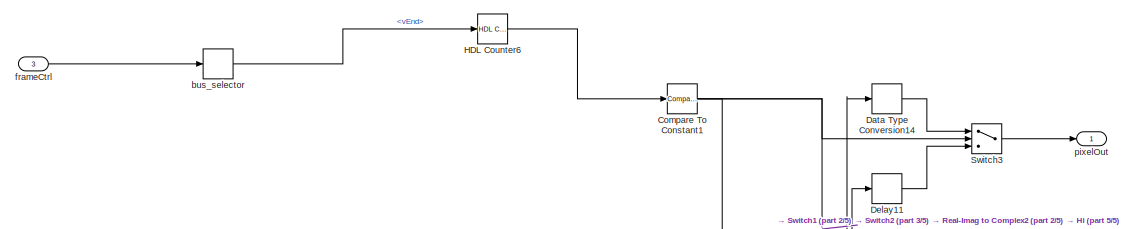
[diagram: ObjectTrackerHDL/Track/2-DCorrelation/CoefficientsUpdate - part 1/5, top right region]
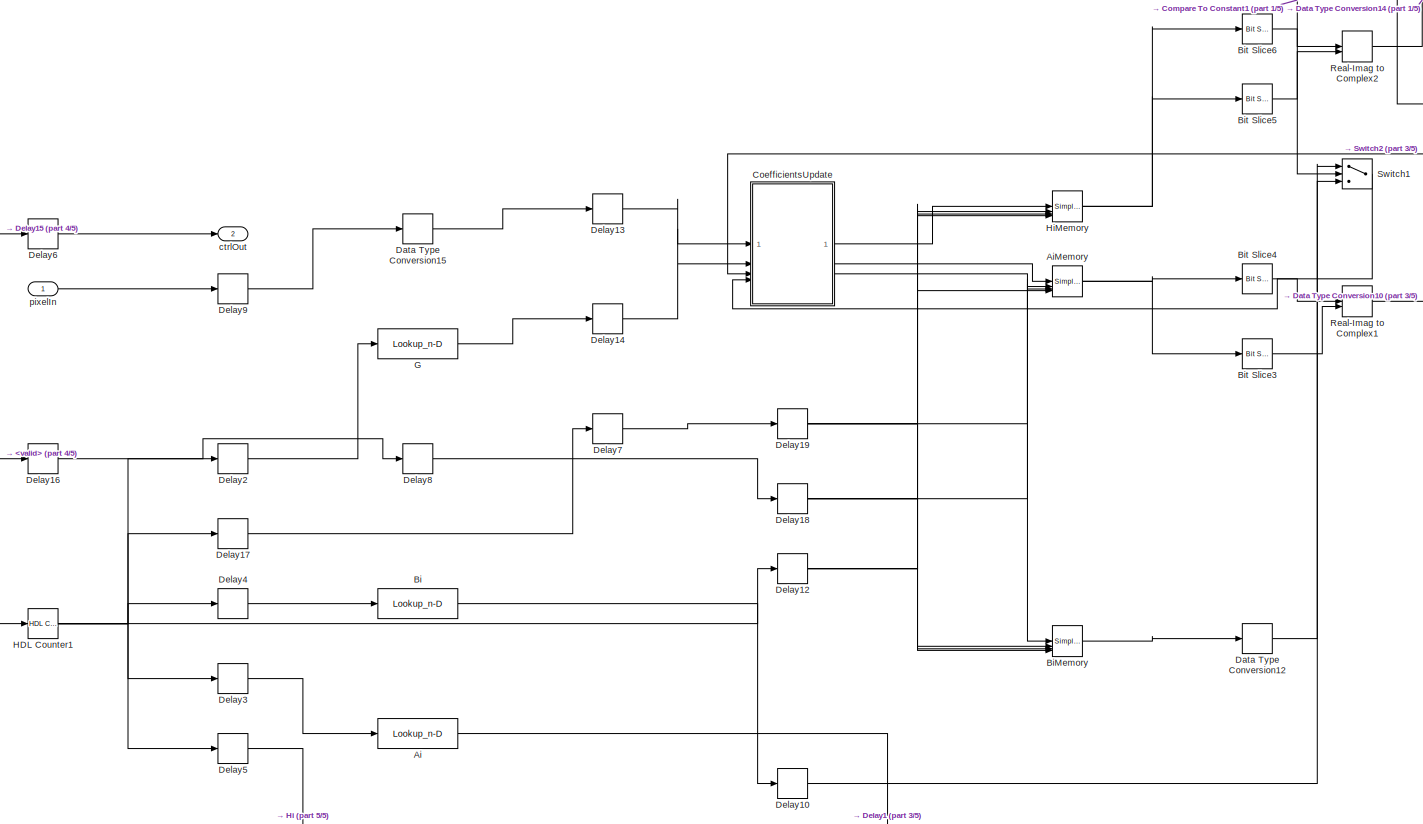
[diagram: ObjectTrackerHDL/Track/2-DCorrelation/CoefficientsUpdate - part 2/5, central region]
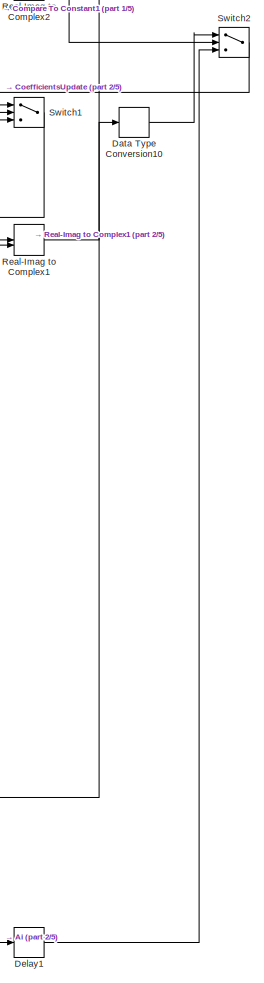
[diagram: ObjectTrackerHDL/Track/2-DCorrelation/CoefficientsUpdate - part 3/5, right side, full height]
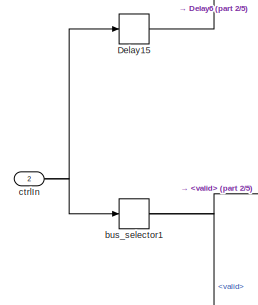
[diagram: ObjectTrackerHDL/Track/2-DCorrelation/CoefficientsUpdate - part 4/5, middle left region]
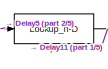
[diagram: ObjectTrackerHDL/Track/2-DCorrelation/CoefficientsUpdate - part 5/5, bottom center region]
BLOCK [SubSystem] ObjectTrackerHDL/Track/2-DCorrelation/CoefficientsUpdate
BLOCK [Lookup_n-D] ObjectTrackerHDL/Track/2-DCorrelation/CoefficientsUpdate/Ai
  BreakpointsForDimension1 = [0:tSize * tSize - 1]
  BreakpointsForDimension1FirstPoint = 10
  BreakpointsForDimension1Spacing = 12
  BreakpointsForDimension2FirstPoint = 10
  BreakpointsForDimension2Spacing = 12
  IndexSearchMethod = Evenly spaced points
  InputPortMap = u0
  InternalRulePriority = Speed
  InterpMethod = Flat
  LookupTableObject = ''
  NumberOfTableDimensions = 1
  OutDataTypeStr = fixdt(1,28,8)
  RndMeth = Simplest
  Table = fi(Ai(:),1,28,8)
BLOCK [Reference] ObjectTrackerHDL/Track/2-DCorrelation/CoefficientsUpdate/AiMemory  REF=hdlsllib/HDL RAMs/Simple Dual Port
RAM System
  SourceBlock = hdlsllib/HDL RAMs/Simple Dual Port\nRAM System
  SourceType = hdl.RAM
BLOCK [Lookup_n-D] ObjectTrackerHDL/Track/2-DCorrelation/CoefficientsUpdate/Bi
  BreakpointsForDimension1 = [0:tSize * tSize - 1]
  BreakpointsForDimension1FirstPoint = 10
  BreakpointsForDimension1Spacing = 12
  BreakpointsForDimension2FirstPoint = 10
  BreakpointsForDimension2Spacing = 12
  IndexSearchMethod = Evenly spaced points
  InputPortMap = u0
  InternalRulePriority = Speed
  InterpMethod = Flat
  LookupTableObject = ''
  NumberOfTableDimensions = 1
  OutDataTypeStr = fixdt(1,36,8)
  RndMeth = Simplest
  Table = fi(Bi(:),1,36,8)
BLOCK [Reference] ObjectTrackerHDL/Track/2-DCorrelation/CoefficientsUpdate/BiMemory  REF=hdlsllib/HDL RAMs/Simple Dual Port
RAM System
  SourceBlock = hdlsllib/HDL RAMs/Simple Dual Port\nRAM System
  SourceType = hdl.RAM
BLOCK [Reference] ObjectTrackerHDL/Track/2-DCorrelation/CoefficientsUpdate/Bit Slice3  REF=hdlsllib/Logic and Bit
Operations/Bit Slice
  SourceBlock = hdlsllib/Logic and Bit\nOperations/Bit Slice
  SourceType = Bit Slice
BLOCK [Reference] ObjectTrackerHDL/Track/2-DCorrelation/CoefficientsUpdate/Bit Slice4  REF=hdlsllib/Logic and Bit
Operations/Bit Slice
  SourceBlock = hdlsllib/Logic and Bit\nOperations/Bit Slice
  SourceType = Bit Slice
BLOCK [Reference] ObjectTrackerHDL/Track/2-DCorrelation/CoefficientsUpdate/Bit Slice5  REF=hdlsllib/Logic and Bit
Operations/Bit Slice
  SourceBlock = hdlsllib/Logic and Bit\nOperations/Bit Slice
  SourceType = Bit Slice
BLOCK [Reference] ObjectTrackerHDL/Track/2-DCorrelation/CoefficientsUpdate/Bit Slice6  REF=hdlsllib/Logic and Bit
Operations/Bit Slice
  SourceBlock = hdlsllib/Logic and Bit\nOperations/Bit Slice
  SourceType = Bit Slice
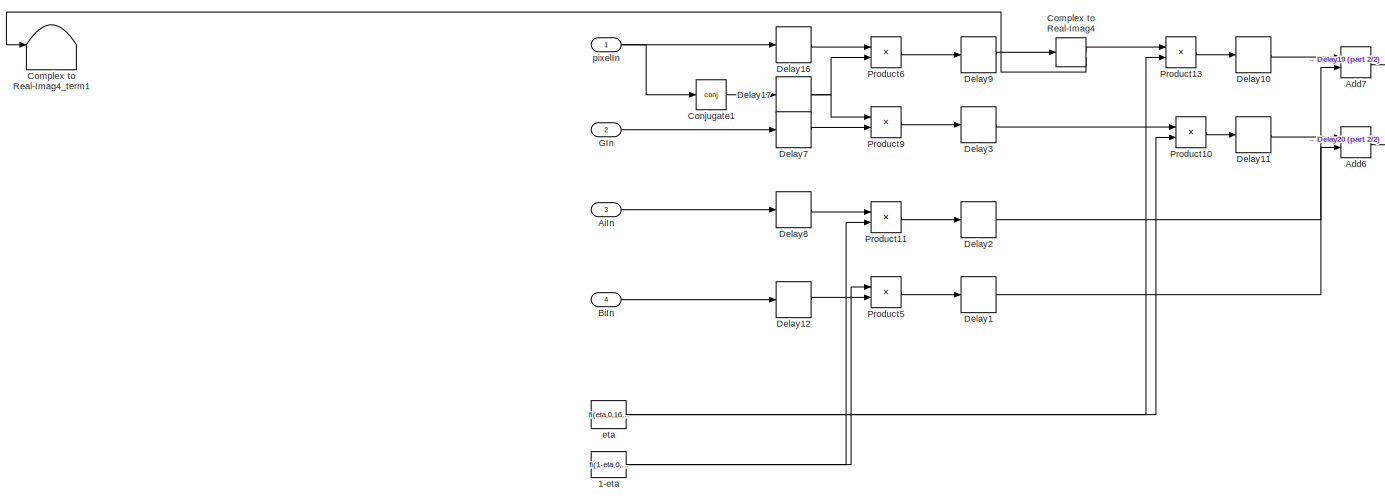
[diagram: ObjectTrackerHDL/Track/2-DCorrelation/CoefficientsUpdate/CoefficientsUpdate - part 1/2, left side, full height]
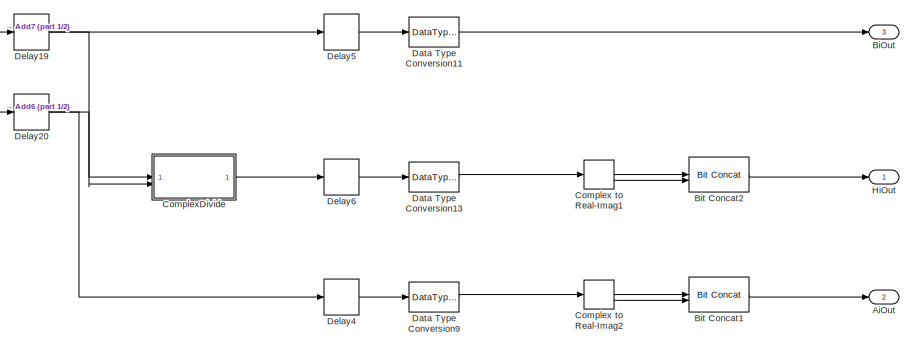
[diagram: ObjectTrackerHDL/Track/2-DCorrelation/CoefficientsUpdate/CoefficientsUpdate - part 2/2, middle right region]
BLOCK [SubSystem] ObjectTrackerHDL/Track/2-DCorrelation/CoefficientsUpdate/CoefficientsUpdate
BLOCK [Constant] ObjectTrackerHDL/Track/2-DCorrelation/CoefficientsUpdate/CoefficientsUpdate/1-eta
  OutDataTypeStr = fixdt(0,16,16)
  SampleTime = -1
  Value = fi(1-eta,0,16,16)
BLOCK [Sum] ObjectTrackerHDL/Track/2-DCorrelation/CoefficientsUpdate/CoefficientsUpdate/Add6
  IconShape = rectangular
  OutDataTypeStr = fixdt(1,28,8)
BLOCK [Sum] ObjectTrackerHDL/Track/2-DCorrelation/CoefficientsUpdate/CoefficientsUpdate/Add7
  IconShape = rectangular
  OutDataTypeStr = fixdt(1,36,8)
BLOCK [Inport] ObjectTrackerHDL/Track/2-DCorrelation/CoefficientsUpdate/CoefficientsUpdate/AiIn
  OutDataTypeStr = fixdt(1, 28, 8)
  Port = 3
  PortDimensions = 1
  SampleTime = 7.94444444444444e-08
  SignalType = complex
BLOCK [Outport] ObjectTrackerHDL/Track/2-DCorrelation/CoefficientsUpdate/CoefficientsUpdate/AiOut
  Port = 2
  SampleTime = 7.94444444444444e-08
BLOCK [Inport] ObjectTrackerHDL/Track/2-DCorrelation/CoefficientsUpdate/CoefficientsUpdate/BiIn
  OutDataTypeStr = fixdt(1, 36, 8)
  Port = 4
  PortDimensions = 1
  SampleTime = 7.94444444444444e-08
BLOCK [Outport] ObjectTrackerHDL/Track/2-DCorrelation/CoefficientsUpdate/CoefficientsUpdate/BiOut
  Port = 3
  SampleTime = 7.94444444444444e-08
BLOCK [Reference] ObjectTrackerHDL/Track/2-DCorrelation/CoefficientsUpdate/CoefficientsUpdate/Bit Concat1  REF=hdlsllib/Logic and Bit
Operations/Bit Concat
  SourceBlock = hdlsllib/Logic and Bit\nOperations/Bit Concat
  SourceType = Bit Concat
BLOCK [Reference] ObjectTrackerHDL/Track/2-DCorrelation/CoefficientsUpdate/CoefficientsUpdate/Bit Concat2  REF=hdlsllib/Logic and Bit
Operations/Bit Concat
  SourceBlock = hdlsllib/Logic and Bit\nOperations/Bit Concat
  SourceType = Bit Concat
BLOCK [ComplexToRealImag] ObjectTrackerHDL/Track/2-DCorrelation/CoefficientsUpdate/CoefficientsUpdate/Complex to Real-Imag1
BLOCK [ComplexToRealImag] ObjectTrackerHDL/Track/2-DCorrelation/CoefficientsUpdate/CoefficientsUpdate/Complex to Real-Imag2
BLOCK [ComplexToRealImag] ObjectTrackerHDL/Track/2-DCorrelation/CoefficientsUpdate/CoefficientsUpdate/Complex to Real-Imag4
BLOCK [Terminator] ObjectTrackerHDL/Track/2-DCorrelation/CoefficientsUpdate/CoefficientsUpdate/Complex to Real-Imag4_term1
BLOCK [SubSystem] ObjectTrackerHDL/Track/2-DCorrelation/CoefficientsUpdate/CoefficientsUpdate/ComplexDivide
BLOCK [ComplexToRealImag] ObjectTrackerHDL/Track/2-DCorrelation/CoefficientsUpdate/CoefficientsUpdate/ComplexDivide/Complex to Real-Imag
  SampleTime = 7.94444444444444e-08
BLOCK [DataTypeConversion] ObjectTrackerHDL/Track/2-DCorrelation/CoefficientsUpdate/CoefficientsUpdate/ComplexDivide/Data Type Conversion
  OutDataTypeStr = fixdt(1, 44, 16)
  RndMeth = Floor
  SampleTime = 7.94444444444444e-08
  SaturateOnIntegerOverflow = off
BLOCK [DataTypeConversion] ObjectTrackerHDL/Track/2-DCorrelation/CoefficientsUpdate/CoefficientsUpdate/ComplexDivide/Data Type Conversion1
  OutDataTypeStr = fixdt(1, 44, 16)
  RndMeth = Floor
  SampleTime = 7.94444444444444e-08
  SaturateOnIntegerOverflow = off
BLOCK [Delay] ObjectTrackerHDL/Track/2-DCorrelation/CoefficientsUpdate/CoefficientsUpdate/ComplexDivide/Delay14_absorbed
  DelayLength = 0
  InputPortMap = u0
BLOCK [Delay] ObjectTrackerHDL/Track/2-DCorrelation/CoefficientsUpdate/CoefficientsUpdate/ComplexDivide/Delay15_absorbed
  DelayLength = 0
  InputPortMap = u0
BLOCK [SubSystem] ObjectTrackerHDL/Track/2-DCorrelation/CoefficientsUpdate/CoefficientsUpdate/ComplexDivide/Divide3
BLOCK [Product] ObjectTrackerHDL/Track/2-DCorrelation/CoefficientsUpdate/CoefficientsUpdate/ComplexDivide/Divide3/Divide3
  Inputs = */
  OutDataTypeStr = fixdt(1,24,12)
  RndMeth = Simplest
  SaturateOnIntegerOverflow = on
BLOCK [Delay] ObjectTrackerHDL/Track/2-DCorrelation/CoefficientsUpdate/CoefficientsUpdate/ComplexDivide/Divide3/Divide3_pd1
  DelayLength = 53
  InputPortMap = u0
BLOCK [Inport] ObjectTrackerHDL/Track/2-DCorrelation/CoefficientsUpdate/CoefficientsUpdate/ComplexDivide/Divide3/In1
BLOCK [Inport] ObjectTrackerHDL/Track/2-DCorrelation/CoefficientsUpdate/CoefficientsUpdate/ComplexDivide/Divide3/In2
  Port = 2
BLOCK [Outport] ObjectTrackerHDL/Track/2-DCorrelation/CoefficientsUpdate/CoefficientsUpdate/ComplexDivide/Divide3/Out1
BLOCK [SubSystem] ObjectTrackerHDL/Track/2-DCorrelation/CoefficientsUpdate/CoefficientsUpdate/ComplexDivide/Divide4
BLOCK [Product] ObjectTrackerHDL/Track/2-DCorrelation/CoefficientsUpdate/CoefficientsUpdate/ComplexDivide/Divide4/Divide4
  Inputs = */
  OutDataTypeStr = fixdt(1,24,12)
  RndMeth = Simplest
  SaturateOnIntegerOverflow = on
BLOCK [Delay] ObjectTrackerHDL/Track/2-DCorrelation/CoefficientsUpdate/CoefficientsUpdate/ComplexDivide/Divide4/Divide4_pd1
  DelayLength = 53
  InputPortMap = u0
BLOCK [Inport] ObjectTrackerHDL/Track/2-DCorrelation/CoefficientsUpdate/CoefficientsUpdate/ComplexDivide/Divide4/In1
BLOCK [Inport] ObjectTrackerHDL/Track/2-DCorrelation/CoefficientsUpdate/CoefficientsUpdate/ComplexDivide/Divide4/In2
  Port = 2
BLOCK [Outport] ObjectTrackerHDL/Track/2-DCorrelation/CoefficientsUpdate/CoefficientsUpdate/ComplexDivide/Divide4/Out1
BLOCK [Inport] ObjectTrackerHDL/Track/2-DCorrelation/CoefficientsUpdate/CoefficientsUpdate/ComplexDivide/Dividend
  OutDataTypeStr = fixdt(1, 28, 8)
  PortDimensions = 1
  SampleTime = 7.94444444444444e-08
  SignalType = complex
BLOCK [Inport] ObjectTrackerHDL/Track/2-DCorrelation/CoefficientsUpdate/CoefficientsUpdate/ComplexDivide/Divisor
  OutDataTypeStr = fixdt(1, 36, 8)
  Port = 2
  PortDimensions = 1
  SampleTime = 7.94444444444444e-08
BLOCK [Outport] ObjectTrackerHDL/Track/2-DCorrelation/CoefficientsUpdate/CoefficientsUpdate/ComplexDivide/Quotient
  SampleTime = 7.94444444444444e-08
BLOCK [RealImagToComplex] ObjectTrackerHDL/Track/2-DCorrelation/CoefficientsUpdate/CoefficientsUpdate/ComplexDivide/Real-Imag to Complex
  ConstantPart = fi(0,1,24,12,"hex","000000")
  SampleTime = 7.94444444444444e-08
BLOCK [Math] ObjectTrackerHDL/Track/2-DCorrelation/CoefficientsUpdate/CoefficientsUpdate/Conjugate1
  Operator = conj
  OutDataTypeStr = fixdt(1, 24, 12)
  RndMeth = Zero
  SignedPower = on
BLOCK [DataTypeConversion] ObjectTrackerHDL/Track/2-DCorrelation/CoefficientsUpdate/CoefficientsUpdate/Data Type Conversion11
  ConvertRealWorld = Stored Integer (SI)
  OutDataTypeStr = uint64
  RndMeth = Floor
  SaturateOnIntegerOverflow = off
BLOCK [DataTypeConversion] ObjectTrackerHDL/Track/2-DCorrelation/CoefficientsUpdate/CoefficientsUpdate/Data Type Conversion13
  ConvertRealWorld = Stored Integer (SI)
  OutDataTypeStr = uint32
  RndMeth = Floor
  SaturateOnIntegerOverflow = off
BLOCK [DataTypeConversion] ObjectTrackerHDL/Track/2-DCorrelation/CoefficientsUpdate/CoefficientsUpdate/Data Type Conversion9
  ConvertRealWorld = Stored Integer (SI)
  OutDataTypeStr = uint32
  RndMeth = Floor
  SaturateOnIntegerOverflow = off
BLOCK [Delay] ObjectTrackerHDL/Track/2-DCorrelation/CoefficientsUpdate/CoefficientsUpdate/Delay1
  InitialCondition = 0
  InputPortMap = u0
BLOCK [Delay] ObjectTrackerHDL/Track/2-DCorrelation/CoefficientsUpdate/CoefficientsUpdate/Delay10
  DelayLength = 1
  InitialCondition = 0
  InputPortMap = u0
BLOCK [Delay] ObjectTrackerHDL/Track/2-DCorrelation/CoefficientsUpdate/CoefficientsUpdate/Delay11
  DelayLength = 1
  InitialCondition = 0
  InputPortMap = u0
BLOCK [Delay] ObjectTrackerHDL/Track/2-DCorrelation/CoefficientsUpdate/CoefficientsUpdate/Delay12
  DelayLength = 1
  InitialCondition = 0
  InputPortMap = u0
BLOCK [Delay] ObjectTrackerHDL/Track/2-DCorrelation/CoefficientsUpdate/CoefficientsUpdate/Delay16
  DelayLength = 1
  InitialCondition = 0
  InputPortMap = u0
BLOCK [Delay] ObjectTrackerHDL/Track/2-DCorrelation/CoefficientsUpdate/CoefficientsUpdate/Delay17
  DelayLength = 1
  InitialCondition = 0
  InputPortMap = u0
BLOCK [Delay] ObjectTrackerHDL/Track/2-DCorrelation/CoefficientsUpdate/CoefficientsUpdate/Delay19
  DelayLength = 1
  InitialCondition = 0
  InputPortMap = u0
BLOCK [Delay] ObjectTrackerHDL/Track/2-DCorrelation/CoefficientsUpdate/CoefficientsUpdate/Delay2
  InitialCondition = 0
  InputPortMap = u0
BLOCK [Delay] ObjectTrackerHDL/Track/2-DCorrelation/CoefficientsUpdate/CoefficientsUpdate/Delay20
  DelayLength = 1
  InitialCondition = 0
  InputPortMap = u0
BLOCK [Delay] ObjectTrackerHDL/Track/2-DCorrelation/CoefficientsUpdate/CoefficientsUpdate/Delay3
  DelayLength = 1
  InitialCondition = 0
  InputPortMap = u0
BLOCK [Delay] ObjectTrackerHDL/Track/2-DCorrelation/CoefficientsUpdate/CoefficientsUpdate/Delay4
  DelayLength = 2+52
  InitialCondition = 0
  InputPortMap = u0
BLOCK [Delay] ObjectTrackerHDL/Track/2-DCorrelation/CoefficientsUpdate/CoefficientsUpdate/Delay5
  DelayLength = 2+52
  InitialCondition = 0
  InputPortMap = u0
BLOCK [Delay] ObjectTrackerHDL/Track/2-DCorrelation/CoefficientsUpdate/CoefficientsUpdate/Delay6
  DelayLength = 1
  InitialCondition = 0
  InputPortMap = u0
BLOCK [Delay] ObjectTrackerHDL/Track/2-DCorrelation/CoefficientsUpdate/CoefficientsUpdate/Delay7
  DelayLength = 1
  InitialCondition = 0
  InputPortMap = u0
BLOCK [Delay] ObjectTrackerHDL/Track/2-DCorrelation/CoefficientsUpdate/CoefficientsUpdate/Delay8
  DelayLength = 1
  InitialCondition = 0
  InputPortMap = u0
BLOCK [Delay] ObjectTrackerHDL/Track/2-DCorrelation/CoefficientsUpdate/CoefficientsUpdate/Delay9
  DelayLength = 1
  InitialCondition = 0
  InputPortMap = u0
BLOCK [Inport] ObjectTrackerHDL/Track/2-DCorrelation/CoefficientsUpdate/CoefficientsUpdate/GIn
  OutDataTypeStr = fixdt(1, 16, 11)
  Port = 2
  PortDimensions = 1
  SampleTime = 7.94444444444444e-08
BLOCK [Outport] ObjectTrackerHDL/Track/2-DCorrelation/CoefficientsUpdate/CoefficientsUpdate/HiOut
  SampleTime = 7.94444444444444e-08
BLOCK [Product] ObjectTrackerHDL/Track/2-DCorrelation/CoefficientsUpdate/CoefficientsUpdate/Product10
  OutDataTypeStr = fixdt(1,24,12)
BLOCK [Product] ObjectTrackerHDL/Track/2-DCorrelation/CoefficientsUpdate/CoefficientsUpdate/Product11
  OutDataTypeStr = fixdt(1,28,8)
BLOCK [Product] ObjectTrackerHDL/Track/2-DCorrelation/CoefficientsUpdate/CoefficientsUpdate/Product13
  OutDataTypeStr = fixdt(1,32,12)
BLOCK [Product] ObjectTrackerHDL/Track/2-DCorrelation/CoefficientsUpdate/CoefficientsUpdate/Product5
  OutDataTypeStr = fixdt(1,36,8)
BLOCK [Product] ObjectTrackerHDL/Track/2-DCorrelation/CoefficientsUpdate/CoefficientsUpdate/Product6
  OutDataTypeStr = fixdt(1,32,8)
BLOCK [Product] ObjectTrackerHDL/Track/2-DCorrelation/CoefficientsUpdate/CoefficientsUpdate/Product9
  OutDataTypeStr = fixdt(1,24,8)
BLOCK [Constant] ObjectTrackerHDL/Track/2-DCorrelation/CoefficientsUpdate/CoefficientsUpdate/eta
  OutDataTypeStr = fixdt(0, 16, 16)
  SampleTime = -1
  Value = fi(eta,0,16,16)
BLOCK [Inport] ObjectTrackerHDL/Track/2-DCorrelation/CoefficientsUpdate/CoefficientsUpdate/pixelIn
  OutDataTypeStr = fixdt(1, 24, 12)
  PortDimensions = 1
  SampleTime = 7.94444444444444e-08
  SignalType = complex
BLOCK [Reference] ObjectTrackerHDL/Track/2-DCorrelation/CoefficientsUpdate/Compare To Constant1  REF=simulink/Logic and Bit
Operations/Compare
To Constant
  SourceBlock = simulink/Logic and Bit\nOperations/Compare\nTo Constant
  SourceType = Compare To Constant
BLOCK [DataTypeConversion] ObjectTrackerHDL/Track/2-DCorrelation/CoefficientsUpdate/Data Type Conversion10
  ConvertRealWorld = Stored Integer (SI)
  OutDataTypeStr = fixdt(1, 28, 8)
  RndMeth = Floor
  SampleTime = 7.94444444444444e-08
  SaturateOnIntegerOverflow = off
BLOCK [DataTypeConversion] ObjectTrackerHDL/Track/2-DCorrelation/CoefficientsUpdate/Data Type Conversion12
  ConvertRealWorld = Stored Integer (SI)
  OutDataTypeStr = fixdt(1, 36, 8)
  RndMeth = Floor
  SampleTime = 7.94444444444444e-08
  SaturateOnIntegerOverflow = off
BLOCK [DataTypeConversion] ObjectTrackerHDL/Track/2-DCorrelation/CoefficientsUpdate/Data Type Conversion14
  ConvertRealWorld = Stored Integer (SI)
  OutDataTypeStr = fixdt(1, 24, 12)
  RndMeth = Floor
  SampleTime = 7.94444444444444e-08
  SaturateOnIntegerOverflow = off
BLOCK [DataTypeConversion] ObjectTrackerHDL/Track/2-DCorrelation/CoefficientsUpdate/Data Type Conversion15
  OutDataTypeStr = fixdt(1,24,12)
BLOCK [Delay] ObjectTrackerHDL/Track/2-DCorrelation/CoefficientsUpdate/Delay1
  DelayLength = double(1)
  InitialCondition = 0
  InputPortMap = u0
  SampleTime = 7.94444444444444e-08
BLOCK [Delay] ObjectTrackerHDL/Track/2-DCorrelation/CoefficientsUpdate/Delay10
  DelayLength = double(1)
  InitialCondition = 0
  InputPortMap = u0
  SampleTime = 7.94444444444444e-08
BLOCK [Delay] ObjectTrackerHDL/Track/2-DCorrelation/CoefficientsUpdate/Delay11
  DelayLength = double(1)
  InitialCondition = 0
  InputPortMap = u0
  SampleTime = 7.94444444444444e-08
BLOCK [Delay] ObjectTrackerHDL/Track/2-DCorrelation/CoefficientsUpdate/Delay12
  DelayLength = double(1)
  InitialCondition = 0
  InputPortMap = u0
  SampleTime = 7.94444444444444e-08
BLOCK [Delay] ObjectTrackerHDL/Track/2-DCorrelation/CoefficientsUpdate/Delay13
  DelayLength = double(1)
  InitialCondition = 0
  InputPortMap = u0
  SampleTime = 7.94444444444444e-08
BLOCK [Delay] ObjectTrackerHDL/Track/2-DCorrelation/CoefficientsUpdate/Delay14
  DelayLength = double(1)
  InitialCondition = 0
  InputPortMap = u0
  SampleTime = 7.94444444444444e-08
BLOCK [Delay] ObjectTrackerHDL/Track/2-DCorrelation/CoefficientsUpdate/Delay15
  DelayLength = double(1)
  InputPortMap = u0
  SampleTime = 7.94444444444444e-08
BLOCK [Delay] ObjectTrackerHDL/Track/2-DCorrelation/CoefficientsUpdate/Delay16
  DelayLength = double(1)
  InitialCondition = 0
  InputPortMap = u0
  SampleTime = 7.94444444444444e-08
BLOCK [Delay] ObjectTrackerHDL/Track/2-DCorrelation/CoefficientsUpdate/Delay17
  DelayLength = double(1)
  InitialCondition = 0
  InputPortMap = u0
  SampleTime = 7.94444444444444e-08
BLOCK [Delay] ObjectTrackerHDL/Track/2-DCorrelation/CoefficientsUpdate/Delay18
  DelayLength = double(58)
  InitialCondition = 0
  InputPortMap = u0
  SampleTime = 7.94444444444444e-08
BLOCK [Delay] ObjectTrackerHDL/Track/2-DCorrelation/CoefficientsUpdate/Delay19
  DelayLength = double(58)
  InitialCondition = 0
  InputPortMap = u0
  SampleTime = 7.94444444444444e-08
BLOCK [Delay] ObjectTrackerHDL/Track/2-DCorrelation/CoefficientsUpdate/Delay2
  DelayLength = double(1)
  InitialCondition = 0
  InputPortMap = u0
  SampleTime = 7.94444444444444e-08
BLOCK [Delay] ObjectTrackerHDL/Track/2-DCorrelation/CoefficientsUpdate/Delay3
  DelayLength = double(1)
  InitialCondition = 0
  InputPortMap = u0
  SampleTime = 7.94444444444444e-08
BLOCK [Delay] ObjectTrackerHDL/Track/2-DCorrelation/CoefficientsUpdate/Delay4
  DelayLength = double(1)
  InitialCondition = 0
  InputPortMap = u0
  SampleTime = 7.94444444444444e-08
BLOCK [Delay] ObjectTrackerHDL/Track/2-DCorrelation/CoefficientsUpdate/Delay5
  DelayLength = double(1)
  InitialCondition = 0
  InputPortMap = u0
  SampleTime = 7.94444444444444e-08
BLOCK [Delay] ObjectTrackerHDL/Track/2-DCorrelation/CoefficientsUpdate/Delay6
  DelayLength = double(1)
  InputPortMap = u0
  SampleTime = 7.94444444444444e-08
BLOCK [Delay] ObjectTrackerHDL/Track/2-DCorrelation/CoefficientsUpdate/Delay7
  DelayLength = double(1)
  InitialCondition = 0
  InputPortMap = u0
  SampleTime = 7.94444444444444e-08
BLOCK [Delay] ObjectTrackerHDL/Track/2-DCorrelation/CoefficientsUpdate/Delay8
  DelayLength = double(1)
  InitialCondition = 0
  InputPortMap = u0
  SampleTime = 7.94444444444444e-08
BLOCK [Delay] ObjectTrackerHDL/Track/2-DCorrelation/CoefficientsUpdate/Delay9
  DelayLength = double(1)
  InitialCondition = 0
  InputPortMap = u0
  SampleTime = 7.94444444444444e-08
BLOCK [Lookup_n-D] ObjectTrackerHDL/Track/2-DCorrelation/CoefficientsUpdate/G
  BreakpointsForDimension1 = [0:tSize * tSize - 1]
  BreakpointsForDimension1FirstPoint = 10
  BreakpointsForDimension1Spacing = 12
  BreakpointsForDimension2FirstPoint = 10
  BreakpointsForDimension2Spacing = 12
  IndexSearchMethod = Evenly spaced points
  InputPortMap = u0
  InternalRulePriority = Speed
  InterpMethod = Flat
  LookupTableObject = ''
  NumberOfTableDimensions = 1
  OutDataTypeStr = fixdt(1,16,11)
  RndMeth = Simplest
  Table = fi(G(:),1,16,11)
BLOCK [Reference] ObjectTrackerHDL/Track/2-DCorrelation/CoefficientsUpdate/HDL Counter1  REF=hdlsllib/Sources/HDL Counter
  SourceBlock = hdlsllib/Sources/HDL Counter
  SourceType = HDL Counter
BLOCK [Reference] ObjectTrackerHDL/Track/2-DCorrelation/CoefficientsUpdate/HDL Counter6  REF=hdlsllib/Sources/HDL Counter
  SourceBlock = hdlsllib/Sources/HDL Counter
  SourceType = HDL Counter
BLOCK [Lookup_n-D] ObjectTrackerHDL/Track/2-DCorrelation/CoefficientsUpdate/Hi
  BreakpointsForDimension1 = [0:tSize * tSize - 1]
  BreakpointsForDimension1FirstPoint = 10
  BreakpointsForDimension1Spacing = 12
  BreakpointsForDimension2FirstPoint = 10
  BreakpointsForDimension2Spacing = 12
  IndexSearchMethod = Evenly spaced points
  InputPortMap = u0
  InternalRulePriority = Speed
  InterpMethod = Flat
  LookupTableObject = ''
  NumberOfTableDimensions = 1
  OutDataTypeStr = fixdt(1,24,12)
  RndMeth = Simplest
  Table = fi(Hi(:),1,24,12)
BLOCK [Reference] ObjectTrackerHDL/Track/2-DCorrelation/CoefficientsUpdate/HiMemory  REF=hdlsllib/HDL RAMs/Simple Dual Port
RAM System
  SourceBlock = hdlsllib/HDL RAMs/Simple Dual Port\nRAM System
  SourceType = hdl.RAM
BLOCK [RealImagToComplex] ObjectTrackerHDL/Track/2-DCorrelation/CoefficientsUpdate/Real-Imag to Complex1
  ConstantPart = fi(0,0,32,0,"hex","00000000")
  SampleTime = 7.94444444444444e-08
BLOCK [RealImagToComplex] ObjectTrackerHDL/Track/2-DCorrelation/CoefficientsUpdate/Real-Imag to Complex2
  ConstantPart = fi(0,0,32,0,"hex","00000000")
  SampleTime = 7.94444444444444e-08
BLOCK [Switch] ObjectTrackerHDL/Track/2-DCorrelation/CoefficientsUpdate/Switch1
  Criteria = u2 ~= 0
  InputSameDT = off
  OutDataTypeStr = fixdt(1, 36, 8)
  SampleTime = 7.94444444444444e-08
  SaturateOnIntegerOverflow = off
  Threshold = double(0)
BLOCK [Switch] ObjectTrackerHDL/Track/2-DCorrelation/CoefficientsUpdate/Switch2
  Criteria = u2 ~= 0
  InputSameDT = off
  OutDataTypeStr = fixdt(1, 28, 8)
  SampleTime = 7.94444444444444e-08
  SaturateOnIntegerOverflow = off
  Threshold = double(0)
BLOCK [Switch] ObjectTrackerHDL/Track/2-DCorrelation/CoefficientsUpdate/Switch3
  Criteria = u2 ~= 0
  InputSameDT = off
  OutDataTypeStr = fixdt(1, 24, 12)
  SampleTime = 7.94444444444444e-08
  SaturateOnIntegerOverflow = off
  Threshold = double(0)
BLOCK [BusSelector] ObjectTrackerHDL/Track/2-DCorrelation/CoefficientsUpdate/bus_selector
  OutputSignals = vEnd
BLOCK [BusSelector] ObjectTrackerHDL/Track/2-DCorrelation/CoefficientsUpdate/bus_selector1
  OutputSignals = valid
BLOCK [Inport] ObjectTrackerHDL/Track/2-DCorrelation/CoefficientsUpdate/ctrlIn
  Port = 2
BLOCK [Outport] ObjectTrackerHDL/Track/2-DCorrelation/CoefficientsUpdate/ctrlOut
  Port = 2
BLOCK [Inport] ObjectTrackerHDL/Track/2-DCorrelation/CoefficientsUpdate/frameCtrl
  Port = 3
BLOCK [Inport] ObjectTrackerHDL/Track/2-DCorrelation/CoefficientsUpdate/pixelIn
  OutDataTypeStr = fixdt(1, 24, 12)
  PortDimensions = 1
  SampleTime = 7.94444444444444e-08
  SignalType = complex
BLOCK [Outport] ObjectTrackerHDL/Track/2-DCorrelation/CoefficientsUpdate/pixelOut
  SampleTime = 7.94444444444444e-08
BLOCK [SubSystem] ObjectTrackerHDL/Track/2-DCorrelation/Curr2-DFFT
BLOCK [DataTypeConversion] ObjectTrackerHDL/Track/2-DCorrelation/Curr2-DFFT/ 
  OutDataTypeStr = fixdt(1,24,12)
  RndMeth = Floor
  SaturateOnIntegerOverflow = off
BLOCK [Reference] ObjectTrackerHDL/Track/2-DCorrelation/Curr2-DFFT/Bit Concat  REF=hdlsllib/Logic and Bit
Operations/Bit Concat
  SourceBlock = hdlsllib/Logic and Bit\nOperations/Bit Concat
  SourceType = Bit Concat
BLOCK [Reference] ObjectTrackerHDL/Track/2-DCorrelation/Curr2-DFFT/Bit Slice1  REF=hdlsllib/Logic and Bit
Operations/Bit Slice
  SourceBlock = hdlsllib/Logic and Bit\nOperations/Bit Slice
  SourceType = Bit Slice
BLOCK [Reference] ObjectTrackerHDL/Track/2-DCorrelation/Curr2-DFFT/Bit Slice2  REF=hdlsllib/Logic and Bit
Operations/Bit Slice
  SourceBlock = hdlsllib/Logic and Bit\nOperations/Bit Slice
  SourceType = Bit Slice
BLOCK [Reference] ObjectTrackerHDL/Track/2-DCorrelation/Curr2-DFFT/ColumnFFT  REF=dsphdlxfrm2/FFT
  SourceBlock = dsphdlxfrm2/FFT
  SourceType = FFT
BLOCK [ComplexToRealImag] ObjectTrackerHDL/Track/2-DCorrelation/Curr2-DFFT/Complex to Real-Imag1
BLOCK [SubSystem] ObjectTrackerHDL/Track/2-DCorrelation/Curr2-DFFT/CornerTurnMemory
BLOCK [SubSystem] ObjectTrackerHDL/Track/2-DCorrelation/Curr2-DFFT/CornerTurnMemory/BankBit
BLOCK [Reference] ObjectTrackerHDL/Track/2-DCorrelation/Curr2-DFFT/CornerTurnMemory/BankBit/Bit Slice1  REF=hdlsllib/Logic and Bit
Operations/Bit Slice
  SourceBlock = hdlsllib/Logic and Bit\nOperations/Bit Slice
  SourceType = Bit Slice
BLOCK [Logic] ObjectTrackerHDL/Track/2-DCorrelation/Curr2-DFFT/CornerTurnMemory/BankBit/Logical Operator3
  AllPortsSameDT = off
  IconShape = distinctive
  Operator = NOT
  OutDataTypeStr = boolean
BLOCK [Inport] ObjectTrackerHDL/Track/2-DCorrelation/Curr2-DFFT/CornerTurnMemory/BankBit/addrIn
  NameLocation = right
  OutDataTypeStr = fixdt(0, 15, 0)
  PortDimensions = 1
  SampleTime = 7.94444444444444e-08
BLOCK [Outport] ObjectTrackerHDL/Track/2-DCorrelation/Curr2-DFFT/CornerTurnMemory/BankBit/bankWr
  SampleTime = 7.94444444444444e-08
  VectorParamsAs1DForOutWhenUnconnected = off
BLOCK [Reference] ObjectTrackerHDL/Track/2-DCorrelation/Curr2-DFFT/CornerTurnMemory/Bit Slice  REF=hdlsllib/Logic and Bit
Operations/Bit Slice
  SourceBlock = hdlsllib/Logic and Bit\nOperations/Bit Slice
  SourceType = Bit Slice
BLOCK [SubSystem] ObjectTrackerHDL/Track/2-DCorrelation/Curr2-DFFT/CornerTurnMemory/CounterDelay
BLOCK [SubSystem] ObjectTrackerHDL/Track/2-DCorrelation/Curr2-DFFT/CornerTurnMemory/CounterDelay/CounterDelay
  ErrorFcn = Stateflow.Translate.translate
  PermitHierarchicalResolution = ExplicitOnly
  SFBlockType = MATLAB Function
  TreatAsAtomicUnit = on
BLOCK [Demux] ObjectTrackerHDL/Track/2-DCorrelation/Curr2-DFFT/CornerTurnMemory/CounterDelay/CounterDelay/ Demux 
  Outputs = 1
BLOCK [S-Function] ObjectTrackerHDL/Track/2-DCorrelation/Curr2-DFFT/CornerTurnMemory/CounterDelay/CounterDelay/ SFunction 
  EnableBusSupport = on
  FunctionName = sf_sfun
  Parameters = DELAY,blanking,templateSize
  PortCounts = [1 2]
  SFcnIsStateOwnerBlock = off
  SFunctionDeploymentMode = off
  Tag = Stateflow S-Function 3
BLOCK [Terminator] ObjectTrackerHDL/Track/2-DCorrelation/Curr2-DFFT/CornerTurnMemory/CounterDelay/CounterDelay/ Terminator 
BLOCK [Inport] ObjectTrackerHDL/Track/2-DCorrelation/Curr2-DFFT/CornerTurnMemory/CounterDelay/CounterDelay/vld_in
BLOCK [Outport] ObjectTrackerHDL/Track/2-DCorrelation/Curr2-DFFT/CornerTurnMemory/CounterDelay/CounterDelay/vld_out
  VectorParamsAs1DForOutWhenUnconnected = off
BLOCK [Inport] ObjectTrackerHDL/Track/2-DCorrelation/Curr2-DFFT/CornerTurnMemory/CounterDelay/vld_in
  OutDataTypeStr = boolean
  PortDimensions = 1
  SampleTime = 7.94444444444444e-08
BLOCK [Outport] ObjectTrackerHDL/Track/2-DCorrelation/Curr2-DFFT/CornerTurnMemory/CounterDelay/vld_out
  SampleTime = 7.94444444444444e-08
  VectorParamsAs1DForOutWhenUnconnected = off
BLOCK [Delay] ObjectTrackerHDL/Track/2-DCorrelation/Curr2-DFFT/CornerTurnMemory/Delay
  DelayLength = 1
  InputPortMap = u0
BLOCK [Delay] ObjectTrackerHDL/Track/2-DCorrelation/Curr2-DFFT/CornerTurnMemory/Delay1
  DelayLength = 1
  InputPortMap = u0
BLOCK [Logic] ObjectTrackerHDL/Track/2-DCorrelation/Curr2-DFFT/CornerTurnMemory/Logical Operator
  AllPortsSameDT = off
  IconShape = distinctive
  OutDataTypeStr = boolean
BLOCK [Logic] ObjectTrackerHDL/Track/2-DCorrelation/Curr2-DFFT/CornerTurnMemory/Logical Operator1
  AllPortsSameDT = off
  IconShape = distinctive
  OutDataTypeStr = boolean
BLOCK [Logic] ObjectTrackerHDL/Track/2-DCorrelation/Curr2-DFFT/CornerTurnMemory/Logical Operator2
  AllPortsSameDT = off
  IconShape = distinctive
  Operator = NOT
  OutDataTypeStr = boolean
BLOCK [SubSystem] ObjectTrackerHDL/Track/2-DCorrelation/Curr2-DFFT/CornerTurnMemory/LowerRAM
BLOCK [MATLABSystem] ObjectTrackerHDL/Track/2-DCorrelation/Curr2-DFFT/CornerTurnMemory/LowerRAM/complexDataConcat
  AsyncRead = off
  MaskType = hdl.RAM
  NumReads = 0
  NumWrites = 1
  RAMInitialValue = 0
  RAMType = Simple dual port
  SimulateUsing = Code generation
  System = hdl.RAM
  WriteOutputValue = New data
  WritesHaveOutput = on
  allowBusInputs = off
BLOCK [Inport] ObjectTrackerHDL/Track/2-DCorrelation/Curr2-DFFT/CornerTurnMemory/LowerRAM/din
  OutDataTypeStr = fixdt(0, 64, 0)
  PortDimensions = 1
  SampleTime = 7.94444444444444e-08
BLOCK [Outport] ObjectTrackerHDL/Track/2-DCorrelation/Curr2-DFFT/CornerTurnMemory/LowerRAM/dout
  SampleTime = 7.94444444444444e-08
  VectorParamsAs1DForOutWhenUnconnected = off
BLOCK [Inport] ObjectTrackerHDL/Track/2-DCorrelation/Curr2-DFFT/CornerTurnMemory/LowerRAM/rd_addr
  OutDataTypeStr = fixdt(0, 14, 0)
  Port = 4
  PortDimensions = 1
  SampleTime = 7.94444444444444e-08
BLOCK [Inport] ObjectTrackerHDL/Track/2-DCorrelation/Curr2-DFFT/CornerTurnMemory/LowerRAM/wr_addr
  OutDataTypeStr = fixdt(0, 14, 0)
  Port = 2
  PortDimensions = 1
  SampleTime = 7.94444444444444e-08
BLOCK [Inport] ObjectTrackerHDL/Track/2-DCorrelation/Curr2-DFFT/CornerTurnMemory/LowerRAM/wr_en
  OutDataTypeStr = boolean
  Port = 3
  PortDimensions = 1
  SampleTime = 7.94444444444444e-08
BLOCK [Reference] ObjectTrackerHDL/Track/2-DCorrelation/Curr2-DFFT/CornerTurnMemory/ReadAddrCntr  REF=hdlsllib/Sources/HDL Counter
  SourceBlock = hdlsllib/Sources/HDL Counter
  SourceType = HDL Counter
BLOCK [SubSystem] ObjectTrackerHDL/Track/2-DCorrelation/Curr2-DFFT/CornerTurnMemory/SwapAddr
BLOCK [Reference] ObjectTrackerHDL/Track/2-DCorrelation/Curr2-DFFT/CornerTurnMemory/SwapAddr/Bit Concat  REF=hdlsllib/Logic and Bit
Operations/Bit Concat
  SourceBlock = hdlsllib/Logic and Bit\nOperations/Bit Concat
  SourceType = Bit Concat
BLOCK [Reference] ObjectTrackerHDL/Track/2-DCorrelation/Curr2-DFFT/CornerTurnMemory/SwapAddr/Bit Shift  REF=hdlsllib/Logic and Bit
Operations/Bit Shift
  SourceBlock = hdlsllib/Logic and Bit\nOperations/Bit Shift
  SourceType = Bit Shift
BLOCK [Reference] ObjectTrackerHDL/Track/2-DCorrelation/Curr2-DFFT/CornerTurnMemory/SwapAddr/Bit Slice  REF=hdlsllib/Logic and Bit
Operations/Bit Slice
  SourceBlock = hdlsllib/Logic and Bit\nOperations/Bit Slice
  SourceType = Bit Slice
BLOCK [Logic] ObjectTrackerHDL/Track/2-DCorrelation/Curr2-DFFT/CornerTurnMemory/SwapAddr/Logical Operator3
  AllPortsSameDT = off
  IconShape = distinctive
  Operator = NOT
  OutDataTypeStr = boolean
BLOCK [Inport] ObjectTrackerHDL/Track/2-DCorrelation/Curr2-DFFT/CornerTurnMemory/SwapAddr/addrIn
  OutDataTypeStr = fixdt(0, 15, 0)
  PortDimensions = 1
  SampleTime = 7.94444444444444e-08
BLOCK [Outport] ObjectTrackerHDL/Track/2-DCorrelation/Curr2-DFFT/CornerTurnMemory/SwapAddr/addrRd
  Port = 2
  SampleTime = 7.94444444444444e-08
  VectorParamsAs1DForOutWhenUnconnected = off
BLOCK [Reference] ObjectTrackerHDL/Track/2-DCorrelation/Curr2-DFFT/CornerTurnMemory/SwapAddr/bankBit  REF=hdlsllib/Logic and Bit
Operations/Bit Slice
  SourceBlock = hdlsllib/Logic and Bit\nOperations/Bit Slice
  SourceType = Bit Slice
BLOCK [Outport] ObjectTrackerHDL/Track/2-DCorrelation/Curr2-DFFT/CornerTurnMemory/SwapAddr/bankRd
  SampleTime = 7.94444444444444e-08
  VectorParamsAs1DForOutWhenUnconnected = off
BLOCK [Reference] ObjectTrackerHDL/Track/2-DCorrelation/Curr2-DFFT/CornerTurnMemory/SwapAddr/upperBits  REF=hdlsllib/Logic and Bit
Operations/Bit Slice
  SourceBlock = hdlsllib/Logic and Bit\nOperations/Bit Slice
  SourceType = Bit Slice
BLOCK [Switch] ObjectTrackerHDL/Track/2-DCorrelation/Curr2-DFFT/CornerTurnMemory/Switch
  Criteria = u2 ~= 0
  InputSameDT = off
  OutDataTypeStr = fixdt(0, 64, 0)
  SaturateOnIntegerOverflow = off
BLOCK [SubSystem] ObjectTrackerHDL/Track/2-DCorrelation/Curr2-DFFT/CornerTurnMemory/UpperRAM
BLOCK [MATLABSystem] ObjectTrackerHDL/Track/2-DCorrelation/Curr2-DFFT/CornerTurnMemory/UpperRAM/complexDataConcat
  AsyncRead = off
  MaskType = hdl.RAM
  NumReads = 0
  NumWrites = 1
  RAMInitialValue = 0
  RAMType = Simple dual port
  SimulateUsing = Code generation
  System = hdl.RAM
  WriteOutputValue = New data
  WritesHaveOutput = on
  allowBusInputs = off
BLOCK [Inport] ObjectTrackerHDL/Track/2-DCorrelation/Curr2-DFFT/CornerTurnMemory/UpperRAM/din
  OutDataTypeStr = fixdt(0, 64, 0)
  PortDimensions = 1
  SampleTime = 7.94444444444444e-08
BLOCK [Outport] ObjectTrackerHDL/Track/2-DCorrelation/Curr2-DFFT/CornerTurnMemory/UpperRAM/dout
  SampleTime = 7.94444444444444e-08
  VectorParamsAs1DForOutWhenUnconnected = off
BLOCK [Inport] ObjectTrackerHDL/Track/2-DCorrelation/Curr2-DFFT/CornerTurnMemory/UpperRAM/rd_addr
  OutDataTypeStr = fixdt(0, 14, 0)
  Port = 4
  PortDimensions = 1
  SampleTime = 7.94444444444444e-08
BLOCK [Inport] ObjectTrackerHDL/Track/2-DCorrelation/Curr2-DFFT/CornerTurnMemory/UpperRAM/wr_addr
  OutDataTypeStr = fixdt(0, 14, 0)
  Port = 2
  PortDimensions = 1
  SampleTime = 7.94444444444444e-08
BLOCK [Inport] ObjectTrackerHDL/Track/2-DCorrelation/Curr2-DFFT/CornerTurnMemory/UpperRAM/wr_en
  OutDataTypeStr = boolean
  Port = 3
  PortDimensions = 1
  SampleTime = 7.94444444444444e-08
BLOCK [Reference] ObjectTrackerHDL/Track/2-DCorrelation/Curr2-DFFT/CornerTurnMemory/WriteAddrCntr  REF=hdlsllib/Sources/HDL Counter
  SourceBlock = hdlsllib/Sources/HDL Counter
  SourceType = HDL Counter
BLOCK [Inport] ObjectTrackerHDL/Track/2-DCorrelation/Curr2-DFFT/CornerTurnMemory/dataIn
  OutDataTypeStr = fixdt(0, 64, 0)
  PortDimensions = 1
  SampleTime = 7.94444444444444e-08
BLOCK [Outport] ObjectTrackerHDL/Track/2-DCorrelation/Curr2-DFFT/CornerTurnMemory/dataOut
  SampleTime = 7.94444444444444e-08
BLOCK [Inport] ObjectTrackerHDL/Track/2-DCorrelation/Curr2-DFFT/CornerTurnMemory/validIn
  OutDataTypeStr = boolean
  Port = 2
  PortDimensions = 1
  SampleTime = 7.94444444444444e-08
BLOCK [Outport] ObjectTrackerHDL/Track/2-DCorrelation/Curr2-DFFT/CornerTurnMemory/validOut
  Port = 2
  SampleTime = 7.94444444444444e-08
BLOCK [DataTypeConversion] ObjectTrackerHDL/Track/2-DCorrelation/Curr2-DFFT/Data Type Conversion2
  ConvertRealWorld = Stored Integer (SI)
  OutDataTypeStr = fixdt(0,32,0)
  RndMeth = Floor
  SaturateOnIntegerOverflow = off
BLOCK [DataTypeConversion] ObjectTrackerHDL/Track/2-DCorrelation/Curr2-DFFT/Data Type Conversion3
  ConvertRealWorld = Stored Integer (SI)
  OutDataTypeStr = fixdt(1,28,16)
  RndMeth = Floor
  SaturateOnIntegerOverflow = off
BLOCK [DataTypeConversion] ObjectTrackerHDL/Track/2-DCorrelation/Curr2-DFFT/Data Type Conversion6
  OutDataTypeStr = fixdt(1,28,16)
  RndMeth = Floor
  SaturateOnIntegerOverflow = off
BLOCK [BusSelector] ObjectTrackerHDL/Track/2-DCorrelation/Curr2-DFFT/Pixel Control Bus Selector1
  OutputSignals = valid
BLOCK [RealImagToComplex] ObjectTrackerHDL/Track/2-DCorrelation/Curr2-DFFT/Real-Imag to Complex
BLOCK [Reference] ObjectTrackerHDL/Track/2-DCorrelation/Curr2-DFFT/RowFFT  REF=dsphdlxfrm2/FFT
  SourceBlock = dsphdlxfrm2/FFT
  SourceType = FFT
BLOCK [Inport] ObjectTrackerHDL/Track/2-DCorrelation/Curr2-DFFT/ctrlIn
  Port = 2
BLOCK [Outport] ObjectTrackerHDL/Track/2-DCorrelation/Curr2-DFFT/ctrlOut
  Port = 2
BLOCK [SubSystem] ObjectTrackerHDL/Track/2-DCorrelation/Curr2-DFFT/pixelBusGenerator
BLOCK [Reference] ObjectTrackerHDL/Track/2-DCorrelation/Curr2-DFFT/pixelBusGenerator/Horizontal  REF=hdlsllib/Sources/HDL Counter
  SourceBlock = hdlsllib/Sources/HDL Counter
  SourceType = HDL Counter
BLOCK [Logic] ObjectTrackerHDL/Track/2-DCorrelation/Curr2-DFFT/pixelBusGenerator/Logical Operator3
  AllPortsSameDT = off
  OutDataTypeStr = boolean
BLOCK [Logic] ObjectTrackerHDL/Track/2-DCorrelation/Curr2-DFFT/pixelBusGenerator/Logical Operator4
  AllPortsSameDT = off
  OutDataTypeStr = boolean
BLOCK [Logic] ObjectTrackerHDL/Track/2-DCorrelation/Curr2-DFFT/pixelBusGenerator/Logical Operator5
  AllPortsSameDT = off
  OutDataTypeStr = boolean
BLOCK [Logic] ObjectTrackerHDL/Track/2-DCorrelation/Curr2-DFFT/pixelBusGenerator/Logical Operator6
  AllPortsSameDT = off
  OutDataTypeStr = boolean
BLOCK [SubSystem] ObjectTrackerHDL/Track/2-DCorrelation/Curr2-DFFT/pixelBusGenerator/Pixel Control Bus Creator
BLOCK [Reference] ObjectTrackerHDL/Track/2-DCorrelation/Curr2-DFFT/pixelBusGenerator/Pixel Control Bus Creator/Bus Creator  REF=visionhdlutilities/Pixel Control
Bus Creator/Bus Creator
  SourceBlock = visionhdlutilities/Pixel Control\nBus Creator/Bus Creator
BLOCK [Inport] ObjectTrackerHDL/Track/2-DCorrelation/Curr2-DFFT/pixelBusGenerator/Pixel Control Bus Creator/In1
  OutDataTypeStr = boolean
  SampleTime = 7.94444444444444e-08
BLOCK [Inport] ObjectTrackerHDL/Track/2-DCorrelation/Curr2-DFFT/pixelBusGenerator/Pixel Control Bus Creator/In2
  OutDataTypeStr = boolean
  Port = 2
  SampleTime = 7.94444444444444e-08
BLOCK [Inport] ObjectTrackerHDL/Track/2-DCorrelation/Curr2-DFFT/pixelBusGenerator/Pixel Control Bus Creator/In3
  OutDataTypeStr = boolean
  Port = 3
  SampleTime = 7.94444444444444e-08
BLOCK [Inport] ObjectTrackerHDL/Track/2-DCorrelation/Curr2-DFFT/pixelBusGenerator/Pixel Control Bus Creator/In4
  OutDataTypeStr = boolean
  Port = 4
  SampleTime = 7.94444444444444e-08
BLOCK [Inport] ObjectTrackerHDL/Track/2-DCorrelation/Curr2-DFFT/pixelBusGenerator/Pixel Control Bus Creator/In5
  OutDataTypeStr = boolean
  Port = 5
  SampleTime = 7.94444444444444e-08
BLOCK [Outport] ObjectTrackerHDL/Track/2-DCorrelation/Curr2-DFFT/pixelBusGenerator/Pixel Control Bus Creator/Out1
  SampleTime = 7.94444444444444e-08
BLOCK [Reference] ObjectTrackerHDL/Track/2-DCorrelation/Curr2-DFFT/pixelBusGenerator/Vertical  REF=hdlsllib/Sources/HDL Counter
  SourceBlock = hdlsllib/Sources/HDL Counter
  SourceType = HDL Counter
BLOCK [Outport] ObjectTrackerHDL/Track/2-DCorrelation/Curr2-DFFT/pixelBusGenerator/busOut
  VectorParamsAs1DForOutWhenUnconnected = off
BLOCK [Reference] ObjectTrackerHDL/Track/2-DCorrelation/Curr2-DFFT/pixelBusGenerator/hEnd  REF=simulink/Logic and Bit
Operations/Compare
To Constant
  SourceBlock = simulink/Logic and Bit\nOperations/Compare\nTo Constant
  SourceType = Compare To Constant
BLOCK [Reference] ObjectTrackerHDL/Track/2-DCorrelation/Curr2-DFFT/pixelBusGenerator/hStart  REF=simulink/Logic and Bit
Operations/Compare
To Constant
  SourceBlock = simulink/Logic and Bit\nOperations/Compare\nTo Constant
  SourceType = Compare To Constant
BLOCK [Reference] ObjectTrackerHDL/Track/2-DCorrelation/Curr2-DFFT/pixelBusGenerator/vEnd  REF=simulink/Logic and Bit
Operations/Compare
To Constant
  SourceBlock = simulink/Logic and Bit\nOperations/Compare\nTo Constant
  SourceType = Compare To Constant
BLOCK [Reference] ObjectTrackerHDL/Track/2-DCorrelation/Curr2-DFFT/pixelBusGenerator/vStart  REF=simulink/Logic and Bit
Operations/Compare
To Constant
  SourceBlock = simulink/Logic and Bit\nOperations/Compare\nTo Constant
  SourceType = Compare To Constant
BLOCK [Inport] ObjectTrackerHDL/Track/2-DCorrelation/Curr2-DFFT/pixelBusGenerator/validIn
  OutDataTypeStr = boolean
  PortDimensions = 1
  SampleTime = 7.94444444444444e-08
BLOCK [Inport] ObjectTrackerHDL/Track/2-DCorrelation/Curr2-DFFT/pixelIn
  OutDataTypeStr = fixdt(1, 32, 28)
  PortDimensions = 1
  SampleTime = 7.94444444444444e-08
BLOCK [Outport] ObjectTrackerHDL/Track/2-DCorrelation/Curr2-DFFT/pixelOut
  SampleTime = 7.94444444444444e-08
BLOCK [Delay] ObjectTrackerHDL/Track/2-DCorrelation/Delay
  InputPortMap = u0
BLOCK [Delay] ObjectTrackerHDL/Track/2-DCorrelation/Delay1
  InputPortMap = u0
BLOCK [Delay] ObjectTrackerHDL/Track/2-DCorrelation/Delay10
  DelayLength = 1
  InputPortMap = u0
BLOCK [Delay] ObjectTrackerHDL/Track/2-DCorrelation/Delay11
  DelayLength = 1
  InputPortMap = u0
BLOCK [Delay] ObjectTrackerHDL/Track/2-DCorrelation/Delay12
  InputPortMap = u0
BLOCK [Delay] ObjectTrackerHDL/Track/2-DCorrelation/Delay13
  InputPortMap = u0
BLOCK [Delay] ObjectTrackerHDL/Track/2-DCorrelation/Delay14
  InputPortMap = u0
BLOCK [Delay] ObjectTrackerHDL/Track/2-DCorrelation/Delay15
  InputPortMap = u0
BLOCK [Delay] ObjectTrackerHDL/Track/2-DCorrelation/Delay2
  DelayLength = 1
  InputPortMap = u0
BLOCK [Delay] ObjectTrackerHDL/Track/2-DCorrelation/Delay3
  DelayLength = 1
  InputPortMap = u0
BLOCK [Delay] ObjectTrackerHDL/Track/2-DCorrelation/Delay4
  DelayLength = 1
  InputPortMap = u0
BLOCK [Delay] ObjectTrackerHDL/Track/2-DCorrelation/Delay5
  DelayLength = 1
  InputPortMap = u0
BLOCK [Delay] ObjectTrackerHDL/Track/2-DCorrelation/Delay6
  DelayLength = 1
  InputPortMap = u0
BLOCK [Delay] ObjectTrackerHDL/Track/2-DCorrelation/Delay7
  InputPortMap = u0
BLOCK [Delay] ObjectTrackerHDL/Track/2-DCorrelation/Delay8
  DelayLength = 1
  InputPortMap = u0
BLOCK [Delay] ObjectTrackerHDL/Track/2-DCorrelation/Delay9
  DelayLength = 1
  InputPortMap = u0
BLOCK [SubSystem] ObjectTrackerHDL/Track/2-DCorrelation/Prev2-DFFT
BLOCK [DataTypeConversion] ObjectTrackerHDL/Track/2-DCorrelation/Prev2-DFFT/ 
  OutDataTypeStr = fixdt(1,24,12)
  RndMeth = Floor
  SaturateOnIntegerOverflow = off
BLOCK [Reference] ObjectTrackerHDL/Track/2-DCorrelation/Prev2-DFFT/Bit Concat  REF=hdlsllib/Logic and Bit
Operations/Bit Concat
  SourceBlock = hdlsllib/Logic and Bit\nOperations/Bit Concat
  SourceType = Bit Concat
BLOCK [Reference] ObjectTrackerHDL/Track/2-DCorrelation/Prev2-DFFT/Bit Slice1  REF=hdlsllib/Logic and Bit
Operations/Bit Slice
  SourceBlock = hdlsllib/Logic and Bit\nOperations/Bit Slice
  SourceType = Bit Slice
BLOCK [Reference] ObjectTrackerHDL/Track/2-DCorrelation/Prev2-DFFT/Bit Slice2  REF=hdlsllib/Logic and Bit
Operations/Bit Slice
  SourceBlock = hdlsllib/Logic and Bit\nOperations/Bit Slice
  SourceType = Bit Slice
BLOCK [Reference] ObjectTrackerHDL/Track/2-DCorrelation/Prev2-DFFT/ColumnFFT  REF=dsphdlxfrm2/FFT
  SourceBlock = dsphdlxfrm2/FFT
  SourceType = FFT
BLOCK [ComplexToRealImag] ObjectTrackerHDL/Track/2-DCorrelation/Prev2-DFFT/Complex to Real-Imag1
BLOCK [SubSystem] ObjectTrackerHDL/Track/2-DCorrelation/Prev2-DFFT/CornerTurnMemory
BLOCK [SubSystem] ObjectTrackerHDL/Track/2-DCorrelation/Prev2-DFFT/CornerTurnMemory/BankBit
BLOCK [Reference] ObjectTrackerHDL/Track/2-DCorrelation/Prev2-DFFT/CornerTurnMemory/BankBit/Bit Slice1  REF=hdlsllib/Logic and Bit
Operations/Bit Slice
  SourceBlock = hdlsllib/Logic and Bit\nOperations/Bit Slice
  SourceType = Bit Slice
BLOCK [Logic] ObjectTrackerHDL/Track/2-DCorrelation/Prev2-DFFT/CornerTurnMemory/BankBit/Logical Operator3
  AllPortsSameDT = off
  IconShape = distinctive
  Operator = NOT
  OutDataTypeStr = boolean
BLOCK [Inport] ObjectTrackerHDL/Track/2-DCorrelation/Prev2-DFFT/CornerTurnMemory/BankBit/addrIn
  NameLocation = right
  OutDataTypeStr = fixdt(0, 15, 0)
  PortDimensions = 1
  SampleTime = 7.94444444444444e-08
BLOCK [Outport] ObjectTrackerHDL/Track/2-DCorrelation/Prev2-DFFT/CornerTurnMemory/BankBit/bankWr
  SampleTime = 7.94444444444444e-08
  VectorParamsAs1DForOutWhenUnconnected = off
BLOCK [Reference] ObjectTrackerHDL/Track/2-DCorrelation/Prev2-DFFT/CornerTurnMemory/Bit Slice  REF=hdlsllib/Logic and Bit
Operations/Bit Slice
  SourceBlock = hdlsllib/Logic and Bit\nOperations/Bit Slice
  SourceType = Bit Slice
BLOCK [SubSystem] ObjectTrackerHDL/Track/2-DCorrelation/Prev2-DFFT/CornerTurnMemory/CounterDelay
BLOCK [SubSystem] ObjectTrackerHDL/Track/2-DCorrelation/Prev2-DFFT/CornerTurnMemory/CounterDelay/CounterDelay
  ErrorFcn = Stateflow.Translate.translate
  PermitHierarchicalResolution = ExplicitOnly
  SFBlockType = MATLAB Function
  TreatAsAtomicUnit = on
BLOCK [Demux] ObjectTrackerHDL/Track/2-DCorrelation/Prev2-DFFT/CornerTurnMemory/CounterDelay/CounterDelay/ Demux 
  Outputs = 1
BLOCK [S-Function] ObjectTrackerHDL/Track/2-DCorrelation/Prev2-DFFT/CornerTurnMemory/CounterDelay/CounterDelay/ SFunction 
  EnableBusSupport = on
  FunctionName = sf_sfun
  Parameters = DELAY,blanking,templateSize
  PortCounts = [1 2]
  SFcnIsStateOwnerBlock = off
  SFunctionDeploymentMode = off
  Tag = Stateflow S-Function 1
BLOCK [Terminator] ObjectTrackerHDL/Track/2-DCorrelation/Prev2-DFFT/CornerTurnMemory/CounterDelay/CounterDelay/ Terminator 
BLOCK [Inport] ObjectTrackerHDL/Track/2-DCorrelation/Prev2-DFFT/CornerTurnMemory/CounterDelay/CounterDelay/vld_in
BLOCK [Outport] ObjectTrackerHDL/Track/2-DCorrelation/Prev2-DFFT/CornerTurnMemory/CounterDelay/CounterDelay/vld_out
  VectorParamsAs1DForOutWhenUnconnected = off
BLOCK [Inport] ObjectTrackerHDL/Track/2-DCorrelation/Prev2-DFFT/CornerTurnMemory/CounterDelay/vld_in
  OutDataTypeStr = boolean
  PortDimensions = 1
  SampleTime = 7.94444444444444e-08
BLOCK [Outport] ObjectTrackerHDL/Track/2-DCorrelation/Prev2-DFFT/CornerTurnMemory/CounterDelay/vld_out
  SampleTime = 7.94444444444444e-08
  VectorParamsAs1DForOutWhenUnconnected = off
BLOCK [Delay] ObjectTrackerHDL/Track/2-DCorrelation/Prev2-DFFT/CornerTurnMemory/Delay
  DelayLength = 1
  InputPortMap = u0
BLOCK [Delay] ObjectTrackerHDL/Track/2-DCorrelation/Prev2-DFFT/CornerTurnMemory/Delay1
  DelayLength = 1
  InputPortMap = u0
BLOCK [Logic] ObjectTrackerHDL/Track/2-DCorrelation/Prev2-DFFT/CornerTurnMemory/Logical Operator
  AllPortsSameDT = off
  IconShape = distinctive
  OutDataTypeStr = boolean
BLOCK [Logic] ObjectTrackerHDL/Track/2-DCorrelation/Prev2-DFFT/CornerTurnMemory/Logical Operator1
  AllPortsSameDT = off
  IconShape = distinctive
  OutDataTypeStr = boolean
BLOCK [Logic] ObjectTrackerHDL/Track/2-DCorrelation/Prev2-DFFT/CornerTurnMemory/Logical Operator2
  AllPortsSameDT = off
  IconShape = distinctive
  Operator = NOT
  OutDataTypeStr = boolean
BLOCK [SubSystem] ObjectTrackerHDL/Track/2-DCorrelation/Prev2-DFFT/CornerTurnMemory/LowerRAM
BLOCK [MATLABSystem] ObjectTrackerHDL/Track/2-DCorrelation/Prev2-DFFT/CornerTurnMemory/LowerRAM/complexDataConcat
  AsyncRead = off
  MaskType = hdl.RAM
  NumReads = 0
  NumWrites = 1
  RAMInitialValue = 0
  RAMType = Simple dual port
  SimulateUsing = Code generation
  System = hdl.RAM
  WriteOutputValue = New data
  WritesHaveOutput = on
  allowBusInputs = off
BLOCK [Inport] ObjectTrackerHDL/Track/2-DCorrelation/Prev2-DFFT/CornerTurnMemory/LowerRAM/din
  OutDataTypeStr = fixdt(0, 64, 0)
  PortDimensions = 1
  SampleTime = 7.94444444444444e-08
BLOCK [Outport] ObjectTrackerHDL/Track/2-DCorrelation/Prev2-DFFT/CornerTurnMemory/LowerRAM/dout
  SampleTime = 7.94444444444444e-08
  VectorParamsAs1DForOutWhenUnconnected = off
BLOCK [Inport] ObjectTrackerHDL/Track/2-DCorrelation/Prev2-DFFT/CornerTurnMemory/LowerRAM/rd_addr
  OutDataTypeStr = fixdt(0, 14, 0)
  Port = 4
  PortDimensions = 1
  SampleTime = 7.94444444444444e-08
BLOCK [Inport] ObjectTrackerHDL/Track/2-DCorrelation/Prev2-DFFT/CornerTurnMemory/LowerRAM/wr_addr
  OutDataTypeStr = fixdt(0, 14, 0)
  Port = 2
  PortDimensions = 1
  SampleTime = 7.94444444444444e-08
BLOCK [Inport] ObjectTrackerHDL/Track/2-DCorrelation/Prev2-DFFT/CornerTurnMemory/LowerRAM/wr_en
  OutDataTypeStr = boolean
  Port = 3
  PortDimensions = 1
  SampleTime = 7.94444444444444e-08
BLOCK [Reference] ObjectTrackerHDL/Track/2-DCorrelation/Prev2-DFFT/CornerTurnMemory/ReadAddrCntr  REF=hdlsllib/Sources/HDL Counter
  SourceBlock = hdlsllib/Sources/HDL Counter
  SourceType = HDL Counter
BLOCK [SubSystem] ObjectTrackerHDL/Track/2-DCorrelation/Prev2-DFFT/CornerTurnMemory/SwapAddr
BLOCK [Reference] ObjectTrackerHDL/Track/2-DCorrelation/Prev2-DFFT/CornerTurnMemory/SwapAddr/Bit Concat  REF=hdlsllib/Logic and Bit
Operations/Bit Concat
  SourceBlock = hdlsllib/Logic and Bit\nOperations/Bit Concat
  SourceType = Bit Concat
BLOCK [Reference] ObjectTrackerHDL/Track/2-DCorrelation/Prev2-DFFT/CornerTurnMemory/SwapAddr/Bit Shift  REF=hdlsllib/Logic and Bit
Operations/Bit Shift
  SourceBlock = hdlsllib/Logic and Bit\nOperations/Bit Shift
  SourceType = Bit Shift
BLOCK [Reference] ObjectTrackerHDL/Track/2-DCorrelation/Prev2-DFFT/CornerTurnMemory/SwapAddr/Bit Slice  REF=hdlsllib/Logic and Bit
Operations/Bit Slice
  SourceBlock = hdlsllib/Logic and Bit\nOperations/Bit Slice
  SourceType = Bit Slice
BLOCK [Logic] ObjectTrackerHDL/Track/2-DCorrelation/Prev2-DFFT/CornerTurnMemory/SwapAddr/Logical Operator3
  AllPortsSameDT = off
  IconShape = distinctive
  Operator = NOT
  OutDataTypeStr = boolean
BLOCK [Inport] ObjectTrackerHDL/Track/2-DCorrelation/Prev2-DFFT/CornerTurnMemory/SwapAddr/addrIn
  OutDataTypeStr = fixdt(0, 15, 0)
  PortDimensions = 1
  SampleTime = 7.94444444444444e-08
BLOCK [Outport] ObjectTrackerHDL/Track/2-DCorrelation/Prev2-DFFT/CornerTurnMemory/SwapAddr/addrRd
  Port = 2
  SampleTime = 7.94444444444444e-08
  VectorParamsAs1DForOutWhenUnconnected = off
BLOCK [Reference] ObjectTrackerHDL/Track/2-DCorrelation/Prev2-DFFT/CornerTurnMemory/SwapAddr/bankBit  REF=hdlsllib/Logic and Bit
Operations/Bit Slice
  SourceBlock = hdlsllib/Logic and Bit\nOperations/Bit Slice
  SourceType = Bit Slice
BLOCK [Outport] ObjectTrackerHDL/Track/2-DCorrelation/Prev2-DFFT/CornerTurnMemory/SwapAddr/bankRd
  SampleTime = 7.94444444444444e-08
  VectorParamsAs1DForOutWhenUnconnected = off
BLOCK [Reference] ObjectTrackerHDL/Track/2-DCorrelation/Prev2-DFFT/CornerTurnMemory/SwapAddr/upperBits  REF=hdlsllib/Logic and Bit
Operations/Bit Slice
  SourceBlock = hdlsllib/Logic and Bit\nOperations/Bit Slice
  SourceType = Bit Slice
BLOCK [Switch] ObjectTrackerHDL/Track/2-DCorrelation/Prev2-DFFT/CornerTurnMemory/Switch
  Criteria = u2 ~= 0
  InputSameDT = off
  OutDataTypeStr = fixdt(0, 64, 0)
  SaturateOnIntegerOverflow = off
BLOCK [SubSystem] ObjectTrackerHDL/Track/2-DCorrelation/Prev2-DFFT/CornerTurnMemory/UpperRAM
BLOCK [MATLABSystem] ObjectTrackerHDL/Track/2-DCorrelation/Prev2-DFFT/CornerTurnMemory/UpperRAM/complexDataConcat
  AsyncRead = off
  MaskType = hdl.RAM
  NumReads = 0
  NumWrites = 1
  RAMInitialValue = 0
  RAMType = Simple dual port
  SimulateUsing = Code generation
  System = hdl.RAM
  WriteOutputValue = New data
  WritesHaveOutput = on
  allowBusInputs = off
BLOCK [Inport] ObjectTrackerHDL/Track/2-DCorrelation/Prev2-DFFT/CornerTurnMemory/UpperRAM/din
  OutDataTypeStr = fixdt(0, 64, 0)
  PortDimensions = 1
  SampleTime = 7.94444444444444e-08
BLOCK [Outport] ObjectTrackerHDL/Track/2-DCorrelation/Prev2-DFFT/CornerTurnMemory/UpperRAM/dout
  SampleTime = 7.94444444444444e-08
  VectorParamsAs1DForOutWhenUnconnected = off
BLOCK [Inport] ObjectTrackerHDL/Track/2-DCorrelation/Prev2-DFFT/CornerTurnMemory/UpperRAM/rd_addr
  OutDataTypeStr = fixdt(0, 14, 0)
  Port = 4
  PortDimensions = 1
  SampleTime = 7.94444444444444e-08
BLOCK [Inport] ObjectTrackerHDL/Track/2-DCorrelation/Prev2-DFFT/CornerTurnMemory/UpperRAM/wr_addr
  OutDataTypeStr = fixdt(0, 14, 0)
  Port = 2
  PortDimensions = 1
  SampleTime = 7.94444444444444e-08
BLOCK [Inport] ObjectTrackerHDL/Track/2-DCorrelation/Prev2-DFFT/CornerTurnMemory/UpperRAM/wr_en
  OutDataTypeStr = boolean
  Port = 3
  PortDimensions = 1
  SampleTime = 7.94444444444444e-08
BLOCK [Reference] ObjectTrackerHDL/Track/2-DCorrelation/Prev2-DFFT/CornerTurnMemory/WriteAddrCntr  REF=hdlsllib/Sources/HDL Counter
  SourceBlock = hdlsllib/Sources/HDL Counter
  SourceType = HDL Counter
BLOCK [Inport] ObjectTrackerHDL/Track/2-DCorrelation/Prev2-DFFT/CornerTurnMemory/dataIn
  OutDataTypeStr = fixdt(0, 64, 0)
  PortDimensions = 1
  SampleTime = 7.94444444444444e-08
BLOCK [Outport] ObjectTrackerHDL/Track/2-DCorrelation/Prev2-DFFT/CornerTurnMemory/dataOut
  SampleTime = 7.94444444444444e-08
BLOCK [Inport] ObjectTrackerHDL/Track/2-DCorrelation/Prev2-DFFT/CornerTurnMemory/validIn
  OutDataTypeStr = boolean
  Port = 2
  PortDimensions = 1
  SampleTime = 7.94444444444444e-08
BLOCK [Outport] ObjectTrackerHDL/Track/2-DCorrelation/Prev2-DFFT/CornerTurnMemory/validOut
  Port = 2
  SampleTime = 7.94444444444444e-08
BLOCK [DataTypeConversion] ObjectTrackerHDL/Track/2-DCorrelation/Prev2-DFFT/Data Type Conversion2
  ConvertRealWorld = Stored Integer (SI)
  OutDataTypeStr = fixdt(0,32,0)
  RndMeth = Floor
  SaturateOnIntegerOverflow = off
BLOCK [DataTypeConversion] ObjectTrackerHDL/Track/2-DCorrelation/Prev2-DFFT/Data Type Conversion3
  ConvertRealWorld = Stored Integer (SI)
  OutDataTypeStr = fixdt(1,28,16)
  RndMeth = Floor
  SaturateOnIntegerOverflow = off
BLOCK [DataTypeConversion] ObjectTrackerHDL/Track/2-DCorrelation/Prev2-DFFT/Data Type Conversion6
  OutDataTypeStr = fixdt(1,28,16)
  RndMeth = Floor
  SaturateOnIntegerOverflow = off
BLOCK [BusSelector] ObjectTrackerHDL/Track/2-DCorrelation/Prev2-DFFT/Pixel Control Bus Selector1
  OutputSignals = valid
BLOCK [RealImagToComplex] ObjectTrackerHDL/Track/2-DCorrelation/Prev2-DFFT/Real-Imag to Complex
BLOCK [Reference] ObjectTrackerHDL/Track/2-DCorrelation/Prev2-DFFT/RowFFT  REF=dsphdlxfrm2/FFT
  SourceBlock = dsphdlxfrm2/FFT
  SourceType = FFT
BLOCK [Inport] ObjectTrackerHDL/Track/2-DCorrelation/Prev2-DFFT/ctrlIn
  Port = 2
BLOCK [Outport] ObjectTrackerHDL/Track/2-DCorrelation/Prev2-DFFT/ctrlOut
  Port = 2
BLOCK [SubSystem] ObjectTrackerHDL/Track/2-DCorrelation/Prev2-DFFT/pixelBusGenerator
BLOCK [Reference] ObjectTrackerHDL/Track/2-DCorrelation/Prev2-DFFT/pixelBusGenerator/Horizontal  REF=hdlsllib/Sources/HDL Counter
  SourceBlock = hdlsllib/Sources/HDL Counter
  SourceType = HDL Counter
BLOCK [Logic] ObjectTrackerHDL/Track/2-DCorrelation/Prev2-DFFT/pixelBusGenerator/Logical Operator3
  AllPortsSameDT = off
  OutDataTypeStr = boolean
BLOCK [Logic] ObjectTrackerHDL/Track/2-DCorrelation/Prev2-DFFT/pixelBusGenerator/Logical Operator4
  AllPortsSameDT = off
  OutDataTypeStr = boolean
BLOCK [Logic] ObjectTrackerHDL/Track/2-DCorrelation/Prev2-DFFT/pixelBusGenerator/Logical Operator5
  AllPortsSameDT = off
  OutDataTypeStr = boolean
BLOCK [Logic] ObjectTrackerHDL/Track/2-DCorrelation/Prev2-DFFT/pixelBusGenerator/Logical Operator6
  AllPortsSameDT = off
  OutDataTypeStr = boolean
BLOCK [SubSystem] ObjectTrackerHDL/Track/2-DCorrelation/Prev2-DFFT/pixelBusGenerator/Pixel Control Bus Creator
BLOCK [Reference] ObjectTrackerHDL/Track/2-DCorrelation/Prev2-DFFT/pixelBusGenerator/Pixel Control Bus Creator/Bus Creator  REF=visionhdlutilities/Pixel Control
Bus Creator/Bus Creator
  SourceBlock = visionhdlutilities/Pixel Control\nBus Creator/Bus Creator
BLOCK [Inport] ObjectTrackerHDL/Track/2-DCorrelation/Prev2-DFFT/pixelBusGenerator/Pixel Control Bus Creator/In1
  OutDataTypeStr = boolean
  SampleTime = 7.94444444444444e-08
BLOCK [Inport] ObjectTrackerHDL/Track/2-DCorrelation/Prev2-DFFT/pixelBusGenerator/Pixel Control Bus Creator/In2
  OutDataTypeStr = boolean
  Port = 2
  SampleTime = 7.94444444444444e-08
BLOCK [Inport] ObjectTrackerHDL/Track/2-DCorrelation/Prev2-DFFT/pixelBusGenerator/Pixel Control Bus Creator/In3
  OutDataTypeStr = boolean
  Port = 3
  SampleTime = 7.94444444444444e-08
BLOCK [Inport] ObjectTrackerHDL/Track/2-DCorrelation/Prev2-DFFT/pixelBusGenerator/Pixel Control Bus Creator/In4
  OutDataTypeStr = boolean
  Port = 4
  SampleTime = 7.94444444444444e-08
BLOCK [Inport] ObjectTrackerHDL/Track/2-DCorrelation/Prev2-DFFT/pixelBusGenerator/Pixel Control Bus Creator/In5
  OutDataTypeStr = boolean
  Port = 5
  SampleTime = 7.94444444444444e-08
BLOCK [Outport] ObjectTrackerHDL/Track/2-DCorrelation/Prev2-DFFT/pixelBusGenerator/Pixel Control Bus Creator/Out1
  SampleTime = 7.94444444444444e-08
BLOCK [Reference] ObjectTrackerHDL/Track/2-DCorrelation/Prev2-DFFT/pixelBusGenerator/Vertical  REF=hdlsllib/Sources/HDL Counter
  SourceBlock = hdlsllib/Sources/HDL Counter
  SourceType = HDL Counter
BLOCK [Outport] ObjectTrackerHDL/Track/2-DCorrelation/Prev2-DFFT/pixelBusGenerator/busOut
  VectorParamsAs1DForOutWhenUnconnected = off
BLOCK [Reference] ObjectTrackerHDL/Track/2-DCorrelation/Prev2-DFFT/pixelBusGenerator/hEnd  REF=simulink/Logic and Bit
Operations/Compare
To Constant
  SourceBlock = simulink/Logic and Bit\nOperations/Compare\nTo Constant
  SourceType = Compare To Constant
BLOCK [Reference] ObjectTrackerHDL/Track/2-DCorrelation/Prev2-DFFT/pixelBusGenerator/hStart  REF=simulink/Logic and Bit
Operations/Compare
To Constant
  SourceBlock = simulink/Logic and Bit\nOperations/Compare\nTo Constant
  SourceType = Compare To Constant
BLOCK [Reference] ObjectTrackerHDL/Track/2-DCorrelation/Prev2-DFFT/pixelBusGenerator/vEnd  REF=simulink/Logic and Bit
Operations/Compare
To Constant
  SourceBlock = simulink/Logic and Bit\nOperations/Compare\nTo Constant
  SourceType = Compare To Constant
BLOCK [Reference] ObjectTrackerHDL/Track/2-DCorrelation/Prev2-DFFT/pixelBusGenerator/vStart  REF=simulink/Logic and Bit
Operations/Compare
To Constant
  SourceBlock = simulink/Logic and Bit\nOperations/Compare\nTo Constant
  SourceType = Compare To Constant
BLOCK [Inport] ObjectTrackerHDL/Track/2-DCorrelation/Prev2-DFFT/pixelBusGenerator/validIn
  OutDataTypeStr = boolean
  PortDimensions = 1
  SampleTime = 7.94444444444444e-08
BLOCK [Inport] ObjectTrackerHDL/Track/2-DCorrelation/Prev2-DFFT/pixelIn
  OutDataTypeStr = fixdt(1, 32, 28)
  PortDimensions = 1
  SampleTime = 7.94444444444444e-08
BLOCK [Outport] ObjectTrackerHDL/Track/2-DCorrelation/Prev2-DFFT/pixelOut
  SampleTime = 7.94444444444444e-08
BLOCK [Product] ObjectTrackerHDL/Track/2-DCorrelation/Product
  OutDataTypeStr = fixdt(1,24,16)
BLOCK [SubSystem] ObjectTrackerHDL/Track/2-DCorrelation/StreamAlignment
BLOCK [ComplexToRealImag] ObjectTrackerHDL/Track/2-DCorrelation/StreamAlignment/Complex to Real-Imag
BLOCK [ComplexToRealImag] ObjectTrackerHDL/Track/2-DCorrelation/StreamAlignment/Complex to Real-Imag1
BLOCK [Reference] ObjectTrackerHDL/Track/2-DCorrelation/StreamAlignment/Pixel Stream Aligner  REF=visionhdlutilities/Pixel Stream Aligner
  SourceBlock = visionhdlutilities/Pixel Stream Aligner
  SourceType = visionhdl.PixelStreamAligner
BLOCK [Reference] ObjectTrackerHDL/Track/2-DCorrelation/StreamAlignment/Pixel Stream Aligner1  REF=visionhdlutilities/Pixel Stream Aligner
  SourceBlock = visionhdlutilities/Pixel Stream Aligner
  SourceType = visionhdl.PixelStreamAligner
BLOCK [Terminator] ObjectTrackerHDL/Track/2-DCorrelation/StreamAlignment/Pixel Stream Aligner1_term2
BLOCK [RealImagToComplex] ObjectTrackerHDL/Track/2-DCorrelation/StreamAlignment/Real-Imag to Complex
BLOCK [RealImagToComplex] ObjectTrackerHDL/Track/2-DCorrelation/StreamAlignment/Real-Imag to Complex1
BLOCK [Switch] ObjectTrackerHDL/Track/2-DCorrelation/StreamAlignment/Switch2
  Criteria = u2 ~= 0
  InputSameDT = off
  OutDataTypeStr = fixdt(1, 24, 12)
  SaturateOnIntegerOverflow = off
BLOCK [Switch] ObjectTrackerHDL/Track/2-DCorrelation/StreamAlignment/Switch3
  Criteria = u2 ~= 0
  InputSameDT = off
  SaturateOnIntegerOverflow = off
BLOCK [Switch] ObjectTrackerHDL/Track/2-DCorrelation/StreamAlignment/Switch4
  Criteria = u2 ~= 0
  InputSameDT = off
  OutDataTypeStr = fixdt(1, 24, 12)
  SaturateOnIntegerOverflow = off
BLOCK [Switch] ObjectTrackerHDL/Track/2-DCorrelation/StreamAlignment/Switch5
  Criteria = u2 ~= 0
  InputSameDT = off
  SaturateOnIntegerOverflow = off
BLOCK [Inport] ObjectTrackerHDL/Track/2-DCorrelation/StreamAlignment/ctrlIn1
  Port = 2
BLOCK [Inport] ObjectTrackerHDL/Track/2-DCorrelation/StreamAlignment/ctrlIn2
  Port = 4
BLOCK [Outport] ObjectTrackerHDL/Track/2-DCorrelation/StreamAlignment/ctrlOut
  Port = 3
BLOCK [Inport] ObjectTrackerHDL/Track/2-DCorrelation/StreamAlignment/pixelIn1
  OutDataTypeStr = fixdt(1, 24, 12)
  PortDimensions = 1
  SampleTime = 7.94444444444444e-08
  SignalType = complex
BLOCK [Inport] ObjectTrackerHDL/Track/2-DCorrelation/StreamAlignment/pixelIn2
  OutDataTypeStr = fixdt(1, 24, 12)
  Port = 3
  PortDimensions = 1
  SampleTime = 7.94444444444444e-08
  SignalType = complex
BLOCK [Outport] ObjectTrackerHDL/Track/2-DCorrelation/StreamAlignment/pixelOut1
  SampleTime = 7.94444444444444e-08
BLOCK [Outport] ObjectTrackerHDL/Track/2-DCorrelation/StreamAlignment/pixelOut2
  Port = 2
  SampleTime = 7.94444444444444e-08
BLOCK [Inport] ObjectTrackerHDL/Track/2-DCorrelation/StreamAlignment/streamCtrl
  OutDataTypeStr = boolean
  Port = 5
  PortDimensions = 1
  SampleTime = 7.94444444444444e-08
BLOCK [Outport] ObjectTrackerHDL/Track/2-DCorrelation/ctrlOut
  Port = 2
BLOCK [Inport] ObjectTrackerHDL/Track/2-DCorrelation/currCtrlIn
  Port = 4
BLOCK [Inport] ObjectTrackerHDL/Track/2-DCorrelation/currPixelIn
  OutDataTypeStr = fixdt(1, 32, 28)
  Port = 3
  PortDimensions = 1
  SampleTime = 7.94444444444444e-08
BLOCK [Inport] ObjectTrackerHDL/Track/2-DCorrelation/frameCtrl
  Port = 6
BLOCK [Outport] ObjectTrackerHDL/Track/2-DCorrelation/pixelOut
  SampleTime = 7.94444444444444e-08
BLOCK [Inport] ObjectTrackerHDL/Track/2-DCorrelation/prevCtrlIn
  Port = 2
BLOCK [Inport] ObjectTrackerHDL/Track/2-DCorrelation/prevPixelIn
  OutDataTypeStr = fixdt(1, 32, 28)
  PortDimensions = 1
  SampleTime = 7.94444444444444e-08
BLOCK [Inport] ObjectTrackerHDL/Track/2-DCorrelation/streamCtrlIn
  OutDataTypeStr = boolean
  Port = 5
  PortDimensions = 1
  SampleTime = 7.94444444444444e-08
BLOCK [Delay] ObjectTrackerHDL/Track/Delay7
  DelayLength = 20
  InputPortMap = u0
BLOCK [SubSystem] ObjectTrackerHDL/Track/MaxCorrelation
BLOCK [Sum] ObjectTrackerHDL/Track/MaxCorrelation/Add2
  AccumDataTypeStr = uint8
  IconShape = rectangular
  OutDataTypeStr = uint8
  SampleTime = 7.94444444444444e-08
BLOCK [Sum] ObjectTrackerHDL/Track/MaxCorrelation/Add3
  AccumDataTypeStr = uint8
  IconShape = rectangular
  OutDataTypeStr = uint8
  SampleTime = 7.94444444444444e-08
BLOCK [Constant] ObjectTrackerHDL/Track/MaxCorrelation/Constant
  OutDataTypeStr = uint8
  SampleTime = 7.94444444444444e-08
  Value = 0
BLOCK [DataTypeConversion] ObjectTrackerHDL/Track/MaxCorrelation/Data Type Conversion
  OutDataTypeStr = uint16
  RndMeth = Floor
  SampleTime = 7.94444444444444e-08
  SaturateOnIntegerOverflow = off
BLOCK [DataTypeConversion] ObjectTrackerHDL/Track/MaxCorrelation/Data Type Conversion1
  OutDataTypeStr = uint16
  RndMeth = Floor
  SampleTime = 7.94444444444444e-08
  SaturateOnIntegerOverflow = off
BLOCK [Delay] ObjectTrackerHDL/Track/MaxCorrelation/Delay12
  DelayLength = double(1)
  InitialCondition = 0
  InputPortMap = u0
  SampleTime = 7.94444444444444e-08
BLOCK [Delay] ObjectTrackerHDL/Track/MaxCorrelation/Delay2
  DelayLength = double(1)
  InitialCondition = 0
  InputPortMap = u0
  SampleTime = 7.94444444444444e-08
BLOCK [Delay] ObjectTrackerHDL/Track/MaxCorrelation/Delay3
  DelayLength = double(1)
  InitialCondition = 0
  InputPortMap = u0
  SampleTime = 7.94444444444444e-08
BLOCK [Delay] ObjectTrackerHDL/Track/MaxCorrelation/Delay4
  DelayLength = double(20)
  InitialCondition = 0
  InputPortMap = u0
  SampleTime = 7.94444444444444e-08
BLOCK [Delay] ObjectTrackerHDL/Track/MaxCorrelation/Delay5_absorbed
  DelayLength = 0
  InputPortMap = u0
BLOCK [Delay] ObjectTrackerHDL/Track/MaxCorrelation/Delay6_absorbed
  DelayLength = 0
  InputPortMap = u0
BLOCK [Delay] ObjectTrackerHDL/Track/MaxCorrelation/Delay7
  DelayLength = double(21)
  InitialCondition = 0
  InputPortMap = u0
  SampleTime = 7.94444444444444e-08
BLOCK [Delay] ObjectTrackerHDL/Track/MaxCorrelation/Delay8
  DelayLength = double(21)
  InitialCondition = 0
  InputPortMap = u0
  SampleTime = 7.94444444444444e-08
BLOCK [Delay] ObjectTrackerHDL/Track/MaxCorrelation/Delay9
  DelayLength = double(1)
  InitialCondition = 0
  InputPortMap = u0
  SampleTime = 7.94444444444444e-08
BLOCK [SubSystem] ObjectTrackerHDL/Track/MaxCorrelation/Divide2
BLOCK [Product] ObjectTrackerHDL/Track/MaxCorrelation/Divide2/Divide2
  Inputs = */
  OutDataTypeStr = uint16
  RndMeth = Zero
  SaturateOnIntegerOverflow = on
BLOCK [Delay] ObjectTrackerHDL/Track/MaxCorrelation/Divide2/Divide2_pd1
  DelayLength = 20
  InputPortMap = u0
BLOCK [Inport] ObjectTrackerHDL/Track/MaxCorrelation/Divide2/In1
BLOCK [Inport] ObjectTrackerHDL/Track/MaxCorrelation/Divide2/In2
  Port = 2
BLOCK [Outport] ObjectTrackerHDL/Track/MaxCorrelation/Divide2/Out1
BLOCK [SubSystem] ObjectTrackerHDL/Track/MaxCorrelation/Divide3
BLOCK [Product] ObjectTrackerHDL/Track/MaxCorrelation/Divide3/Divide3
  Inputs = */
  OutDataTypeStr = uint16
  RndMeth = Zero
  SaturateOnIntegerOverflow = on
BLOCK [Delay] ObjectTrackerHDL/Track/MaxCorrelation/Divide3/Divide3_pd1
  DelayLength = 20
  InputPortMap = u0
BLOCK [Inport] ObjectTrackerHDL/Track/MaxCorrelation/Divide3/In1
BLOCK [Inport] ObjectTrackerHDL/Track/MaxCorrelation/Divide3/In2
  Port = 2
BLOCK [Outport] ObjectTrackerHDL/Track/MaxCorrelation/Divide3/Out1
BLOCK [Reference] ObjectTrackerHDL/Track/MaxCorrelation/HDL Counter1  REF=hdlsllib/Sources/HDL Counter
  SourceBlock = hdlsllib/Sources/HDL Counter
  SourceType = HDL Counter
BLOCK [Reference] ObjectTrackerHDL/Track/MaxCorrelation/HV Counter  REF=visionhdlutilities/HV Counter
  SourceBlock = visionhdlutilities/HV Counter
  SourceType = visionhdl.HVCounter
BLOCK [Terminator] ObjectTrackerHDL/Track/MaxCorrelation/HV Counter_term2
BLOCK [SubSystem] ObjectTrackerHDL/Track/MaxCorrelation/MaxCtrl
BLOCK [Logic] ObjectTrackerHDL/Track/MaxCorrelation/MaxCtrl/AND
  AllPortsSameDT = off
  Operator = NOT
  OutDataTypeStr = boolean
BLOCK [Logic] ObjectTrackerHDL/Track/MaxCorrelation/MaxCtrl/AND1
  AllPortsSameDT = off
  OutDataTypeStr = boolean
BLOCK [Logic] ObjectTrackerHDL/Track/MaxCorrelation/MaxCtrl/AND2
  AllPortsSameDT = off
  OutDataTypeStr = boolean
BLOCK [Reference] ObjectTrackerHDL/Track/MaxCorrelation/MaxCtrl/Compare To Zero  REF=simulink/Logic and Bit
Operations/Compare
To Zero
  SourceBlock = simulink/Logic and Bit\nOperations/Compare\nTo Zero
  SourceType = Compare To Zero
BLOCK [Constant] ObjectTrackerHDL/Track/MaxCorrelation/MaxCtrl/Constant3
  OutDataTypeStr = fixdt(1,24,16)
  SampleTime = -1
  Value = 0
BLOCK [Delay] ObjectTrackerHDL/Track/MaxCorrelation/MaxCtrl/Delay
  DelayLength = 1
  InputPortMap = u0
BLOCK [Delay] ObjectTrackerHDL/Track/MaxCorrelation/MaxCtrl/Delay4
  InputPortMap = u0
BLOCK [Delay] ObjectTrackerHDL/Track/MaxCorrelation/MaxCtrl/Delay5
  InputPortMap = u0
BLOCK [Delay] ObjectTrackerHDL/Track/MaxCorrelation/MaxCtrl/Delay8
  DelayLength = 1
  InputPortMap = u0
BLOCK [MinMax] ObjectTrackerHDL/Track/MaxCorrelation/MaxCtrl/Max
  Function = max
  Inputs = 2
  OutDataTypeStr = fixdt(1, 24, 16)
BLOCK [Logic] ObjectTrackerHDL/Track/MaxCorrelation/MaxCtrl/NOT
  AllPortsSameDT = off
  Operator = NOT
  OutDataTypeStr = boolean
BLOCK [RelationalOperator] ObjectTrackerHDL/Track/MaxCorrelation/MaxCtrl/Relational Operator
  InputSameDT = off
  Operator = ~=
  OutDataTypeStr = boolean
  RndMeth = Simplest
BLOCK [RelationalOperator] ObjectTrackerHDL/Track/MaxCorrelation/MaxCtrl/Relational Operator1
  InputSameDT = off
  NameLocation = right
  Operator = ==
  OutDataTypeStr = boolean
  RndMeth = Simplest
BLOCK [Switch] ObjectTrackerHDL/Track/MaxCorrelation/MaxCtrl/Switch7
  Criteria = u2 ~= 0
  InputSameDT = off
  OutDataTypeStr = fixdt(1, 24, 16)
  SaturateOnIntegerOverflow = off
BLOCK [Switch] ObjectTrackerHDL/Track/MaxCorrelation/MaxCtrl/Switch8
  Criteria = u2 ~= 0
  InputSameDT = off
  OutDataTypeStr = fixdt(1, 24, 16)
  SaturateOnIntegerOverflow = off
BLOCK [Outport] ObjectTrackerHDL/Track/MaxCorrelation/MaxCtrl/newMaxCtrl
  SampleTime = 7.94444444444444e-08
BLOCK [Inport] ObjectTrackerHDL/Track/MaxCorrelation/MaxCtrl/pixelIn
  OutDataTypeStr = fixdt(1, 24, 16)
  PortDimensions = 1
  SampleTime = 7.94444444444444e-08
BLOCK [Inport] ObjectTrackerHDL/Track/MaxCorrelation/MaxCtrl/reset
  OutDataTypeStr = boolean
  Port = 2
  PortDimensions = 1
  SampleTime = 7.94444444444444e-08
BLOCK [Outport] ObjectTrackerHDL/Track/MaxCorrelation/MaxCtrl/sameMaxCtrl
  Port = 2
  SampleTime = 7.94444444444444e-08
BLOCK [Logic] ObjectTrackerHDL/Track/MaxCorrelation/OR
  AllPortsSameDT = off
  Operator = OR
  OutDataTypeStr = boolean
  SampleTime = 7.94444444444444e-08
BLOCK [Switch] ObjectTrackerHDL/Track/MaxCorrelation/Switch1
  Criteria = u2 ~= 0
  InputSameDT = off
  OutDataTypeStr = uint16
  SampleTime = 7.94444444444444e-08
  SaturateOnIntegerOverflow = off
  Threshold = double(0)
BLOCK [Switch] ObjectTrackerHDL/Track/MaxCorrelation/Switch10
  Criteria = u2 ~= 0
  InputSameDT = off
  OutDataTypeStr = uint8
  SampleTime = 7.94444444444444e-08
  SaturateOnIntegerOverflow = off
  Threshold = double(0)
BLOCK [Switch] ObjectTrackerHDL/Track/MaxCorrelation/Switch11
  Criteria = u2 ~= 0
  InputSameDT = off
  OutDataTypeStr = uint16
  SampleTime = 7.94444444444444e-08
  SaturateOnIntegerOverflow = off
  Threshold = double(0)
BLOCK [Switch] ObjectTrackerHDL/Track/MaxCorrelation/Switch12
  Criteria = u2 ~= 0
  InputSameDT = off
  OutDataTypeStr = uint16
  SampleTime = 7.94444444444444e-08
  SaturateOnIntegerOverflow = off
  Threshold = double(0)
BLOCK [Switch] ObjectTrackerHDL/Track/MaxCorrelation/Switch13
  Criteria = u2 ~= 0
  InputSameDT = off
  OutDataTypeStr = uint8
  SampleTime = 7.94444444444444e-08
  SaturateOnIntegerOverflow = off
  Threshold = double(0)
BLOCK [Switch] ObjectTrackerHDL/Track/MaxCorrelation/Switch14
  Criteria = u2 ~= 0
  InputSameDT = off
  OutDataTypeStr = uint16
  SampleTime = 7.94444444444444e-08
  SaturateOnIntegerOverflow = off
  Threshold = double(0)
BLOCK [Switch] ObjectTrackerHDL/Track/MaxCorrelation/Switch15
  Criteria = u2 ~= 0
  InputSameDT = off
  OutDataTypeStr = uint16
  SampleTime = 7.94444444444444e-08
  SaturateOnIntegerOverflow = off
  Threshold = double(0)
BLOCK [Switch] ObjectTrackerHDL/Track/MaxCorrelation/Switch16
  Criteria = u2 ~= 0
  InputSameDT = off
  OutDataTypeStr = uint8
  SampleTime = 7.94444444444444e-08
  SaturateOnIntegerOverflow = off
  Threshold = double(0)
BLOCK [Switch] ObjectTrackerHDL/Track/MaxCorrelation/Switch2
  Criteria = u2 ~= 0
  InputSameDT = off
  OutDataTypeStr = uint16
  SampleTime = 7.94444444444444e-08
  SaturateOnIntegerOverflow = off
  Threshold = double(0)
BLOCK [Switch] ObjectTrackerHDL/Track/MaxCorrelation/Switch9
  Criteria = u2 ~= 0
  InputSameDT = off
  OutDataTypeStr = uint8
  SampleTime = 7.94444444444444e-08
  SaturateOnIntegerOverflow = off
  Threshold = double(0)
BLOCK [BusSelector] ObjectTrackerHDL/Track/MaxCorrelation/bus_selector
  OutputSignals = vEnd,vStart
BLOCK [Inport] ObjectTrackerHDL/Track/MaxCorrelation/ctrlIn
  Port = 2
BLOCK [Inport] ObjectTrackerHDL/Track/MaxCorrelation/frameCtrl
  Port = 3
BLOCK [Outport] ObjectTrackerHDL/Track/MaxCorrelation/maxCol
  SampleTime = 7.94444444444444e-08
BLOCK [Outport] ObjectTrackerHDL/Track/MaxCorrelation/maxRow
  Port = 2
  SampleTime = 7.94444444444444e-08
BLOCK [Inport] ObjectTrackerHDL/Track/MaxCorrelation/pixelIn
  OutDataTypeStr = fixdt(1, 24, 16)
  PortDimensions = 1
  SampleTime = 7.94444444444444e-08
BLOCK [SubSystem] ObjectTrackerHDL/Track/ROIUpdate
BLOCK [Logic] ObjectTrackerHDL/Track/ROIUpdate/AND
  AllPortsSameDT = off
  OutDataTypeStr = boolean
BLOCK [Reference] ObjectTrackerHDL/Track/ROIUpdate/Compare To Constant2  REF=simulink/Logic and Bit
Operations/Compare
To Constant
  SourceBlock = simulink/Logic and Bit\nOperations/Compare\nTo Constant
  SourceType = Compare To Constant
BLOCK [Delay] ObjectTrackerHDL/Track/ROIUpdate/Delay1
  DelayLength = 1
  InputPortMap = u0
BLOCK [Delay] ObjectTrackerHDL/Track/ROIUpdate/Delay3
  DelayLength = 1
  InputPortMap = u0
BLOCK [Delay] ObjectTrackerHDL/Track/ROIUpdate/Delay4
  DelayLength = 1
  InputPortMap = u0
BLOCK [Delay] ObjectTrackerHDL/Track/ROIUpdate/Delay6
  DelayLength = 1
  InputPortMap = u0
BLOCK [RelationalOperator] ObjectTrackerHDL/Track/ROIUpdate/Equal
  InputSameDT = off
  Operator = ==
  OutDataTypeStr = boolean
  RndMeth = Simplest
BLOCK [Reference] ObjectTrackerHDL/Track/ROIUpdate/HDL Counter1  REF=hdlsllib/Sources/HDL Counter
  SourceBlock = hdlsllib/Sources/HDL Counter
  SourceType = HDL Counter
BLOCK [Mux] ObjectTrackerHDL/Track/ROIUpdate/Mux
  DisplayOption = bar
BLOCK [Mux] ObjectTrackerHDL/Track/ROIUpdate/Mux1
  DisplayOption = bar
BLOCK [Logic] ObjectTrackerHDL/Track/ROIUpdate/OR
  AllPortsSameDT = off
  Operator = NOR
  OutDataTypeStr = boolean
BLOCK [BusSelector] ObjectTrackerHDL/Track/ROIUpdate/Pixel Control Bus Selector1
  OutputSignals = vEnd
BLOCK [SubSystem] ObjectTrackerHDL/Track/ROIUpdate/ROIUpdate
BLOCK [Sum] ObjectTrackerHDL/Track/ROIUpdate/ROIUpdate/Add4
  IconShape = rectangular
  OutDataTypeStr = fixdt(1,17,0)
BLOCK [Sum] ObjectTrackerHDL/Track/ROIUpdate/ROIUpdate/Add5
  IconShape = rectangular
  OutDataTypeStr = fixdt(1,17,0)
BLOCK [Constant] ObjectTrackerHDL/Track/ROIUpdate/ROIUpdate/Constant
  OutDataTypeStr = fixdt(1,17,0)
  SampleTime = -1
  Value = iSize(1)-tSize
BLOCK [Constant] ObjectTrackerHDL/Track/ROIUpdate/ROIUpdate/Constant1
  OutDataTypeStr = fixdt(1,17,0)
  SampleTime = -1
  Value = iSize(2)-tSize
BLOCK [Constant] ObjectTrackerHDL/Track/ROIUpdate/ROIUpdate/Constant2
  OutDataTypeStr = fixdt(1,17,0)
  SampleTime = -1
  Value = 0
BLOCK [Constant] ObjectTrackerHDL/Track/ROIUpdate/ROIUpdate/Constant3
  OutDataTypeStr = fixdt(1,17,0)
  SampleTime = -1
  Value = 0
BLOCK [RelationalOperator] ObjectTrackerHDL/Track/ROIUpdate/ROIUpdate/Relational Operator
  InputSameDT = off
  Operator = <
  OutDataTypeStr = boolean
  RndMeth = Simplest
BLOCK [RelationalOperator] ObjectTrackerHDL/Track/ROIUpdate/ROIUpdate/Relational Operator1
  InputSameDT = off
  Operator = <
  OutDataTypeStr = boolean
  RndMeth = Simplest
BLOCK [RelationalOperator] ObjectTrackerHDL/Track/ROIUpdate/ROIUpdate/Relational Operator2
  InputSameDT = off
  Operator = >
  OutDataTypeStr = boolean
  RndMeth = Simplest
BLOCK [RelationalOperator] ObjectTrackerHDL/Track/ROIUpdate/ROIUpdate/Relational Operator3
  InputSameDT = off
  Operator = >
  OutDataTypeStr = boolean
  RndMeth = Simplest
BLOCK [Sum] ObjectTrackerHDL/Track/ROIUpdate/ROIUpdate/Subtract3
  IconShape = rectangular
  Inputs = +-
  OutDataTypeStr = fixdt(1,17,0)
BLOCK [Sum] ObjectTrackerHDL/Track/ROIUpdate/ROIUpdate/Subtract4
  IconShape = rectangular
  Inputs = +-
  OutDataTypeStr = fixdt(1,17,0)
BLOCK [Switch] ObjectTrackerHDL/Track/ROIUpdate/ROIUpdate/Switch
  Criteria = u2 ~= 0
  InputSameDT = off
  OutDataTypeStr = fixdt(1, 17, 0)
  SaturateOnIntegerOverflow = off
BLOCK [Switch] ObjectTrackerHDL/Track/ROIUpdate/ROIUpdate/Switch1
  Criteria = u2 ~= 0
  InputSameDT = off
  OutDataTypeStr = fixdt(1, 17, 0)
  SaturateOnIntegerOverflow = off
BLOCK [Switch] ObjectTrackerHDL/Track/ROIUpdate/ROIUpdate/Switch2
  Criteria = u2 ~= 0
  InputSameDT = off
  OutDataTypeStr = fixdt(1, 17, 0)
  SaturateOnIntegerOverflow = off
BLOCK [Switch] ObjectTrackerHDL/Track/ROIUpdate/ROIUpdate/Switch3
  Criteria = u2 ~= 0
  InputSameDT = off
  OutDataTypeStr = fixdt(1, 17, 0)
  SaturateOnIntegerOverflow = off
BLOCK [Constant] ObjectTrackerHDL/Track/ROIUpdate/ROIUpdate/height//2
  OutDataTypeStr = uint16
  SampleTime = -1
  Value = uint16(tSize/2)
BLOCK [Inport] ObjectTrackerHDL/Track/ROIUpdate/ROIUpdate/maxCol
  OutDataTypeStr = uint16
  Port = 2
  PortDimensions = 1
  SampleTime = 7.94444444444444e-08
BLOCK [Inport] ObjectTrackerHDL/Track/ROIUpdate/ROIUpdate/maxRow
  OutDataTypeStr = uint16
  PortDimensions = 1
  SampleTime = 7.94444444444444e-08
BLOCK [Constant] ObjectTrackerHDL/Track/ROIUpdate/ROIUpdate/width//2
  OutDataTypeStr = uint16
  SampleTime = -1
  Value = uint16(tSize/2)
BLOCK [Inport] ObjectTrackerHDL/Track/ROIUpdate/ROIUpdate/xROIIn
  OutDataTypeStr = uint16
  Port = 4
  PortDimensions = 1
  SampleTime = 7.94444444444444e-08
BLOCK [Outport] ObjectTrackerHDL/Track/ROIUpdate/ROIUpdate/xROIOut
  Port = 2
  SampleTime = 7.94444444444444e-08
BLOCK [Inport] ObjectTrackerHDL/Track/ROIUpdate/ROIUpdate/yROIIn
  OutDataTypeStr = uint16
  Port = 3
  PortDimensions = 1
  SampleTime = 7.94444444444444e-08
BLOCK [Outport] ObjectTrackerHDL/Track/ROIUpdate/ROIUpdate/yROIOut
  SampleTime = 7.94444444444444e-08
BLOCK [RelationalOperator] ObjectTrackerHDL/Track/ROIUpdate/Relational Operator
  InputSameDT = off
  Operator = >
  OutDataTypeStr = boolean
  RndMeth = Simplest
BLOCK [RelationalOperator] ObjectTrackerHDL/Track/ROIUpdate/Relational Operator1
  InputSameDT = off
  Operator = >
  OutDataTypeStr = boolean
  RndMeth = Simplest
BLOCK [SignalSpecification] ObjectTrackerHDL/Track/ROIUpdate/Signal Specification
  Dimensions = 1
  OutDataTypeStr = uint16
BLOCK [SignalSpecification] ObjectTrackerHDL/Track/ROIUpdate/Signal Specification1
  Dimensions = 1
  OutDataTypeStr = uint16
BLOCK [SignalSpecification] ObjectTrackerHDL/Track/ROIUpdate/Signal Specification2
  Dimensions = 1
  OutDataTypeStr = uint16
BLOCK [SignalSpecification] ObjectTrackerHDL/Track/ROIUpdate/Signal Specification3
  Dimensions = 1
  OutDataTypeStr = uint16
BLOCK [Switch] ObjectTrackerHDL/Track/ROIUpdate/Switch10
  Criteria = u2 ~= 0
  InputSameDT = off
  OutDataTypeStr = uint16
  SaturateOnIntegerOverflow = off
BLOCK [Switch] ObjectTrackerHDL/Track/ROIUpdate/Switch11
  Criteria = u2 ~= 0
  InputSameDT = off
  OutDataTypeStr = uint16
  SaturateOnIntegerOverflow = off
BLOCK [Switch] ObjectTrackerHDL/Track/ROIUpdate/Switch12
  Criteria = u2 ~= 0
  InputSameDT = off
  OutDataTypeStr = uint16
  SaturateOnIntegerOverflow = off
BLOCK [Switch] ObjectTrackerHDL/Track/ROIUpdate/Switch13
  Criteria = u2 ~= 0
  InputSameDT = off
  OutDataTypeStr = uint16
  SaturateOnIntegerOverflow = off
BLOCK [Switch] ObjectTrackerHDL/Track/ROIUpdate/Switch14
  Criteria = u2 ~= 0
  InputSameDT = off
  OutDataTypeStr = uint16
  SaturateOnIntegerOverflow = off
BLOCK [Switch] ObjectTrackerHDL/Track/ROIUpdate/Switch15
  Criteria = u2 ~= 0
  InputSameDT = off
  OutDataTypeStr = uint16
  SaturateOnIntegerOverflow = off
BLOCK [Switch] ObjectTrackerHDL/Track/ROIUpdate/Switch6
  Criteria = u2 ~= 0
  InputSameDT = off
  OutDataTypeStr = uint16
  SaturateOnIntegerOverflow = off
BLOCK [Switch] ObjectTrackerHDL/Track/ROIUpdate/Switch7
  Criteria = u2 ~= 0
  InputSameDT = off
  OutDataTypeStr = uint16
  SaturateOnIntegerOverflow = off
BLOCK [Switch] ObjectTrackerHDL/Track/ROIUpdate/Switch8
  Criteria = u2 ~= 0
  InputSameDT = off
  OutDataTypeStr = fixdt(1, 17, 0)
  SaturateOnIntegerOverflow = off
BLOCK [Switch] ObjectTrackerHDL/Track/ROIUpdate/Switch9
  Criteria = u2 ~= 0
  InputSameDT = off
  OutDataTypeStr = fixdt(1, 17, 0)
  SaturateOnIntegerOverflow = off
BLOCK [Outport] ObjectTrackerHDL/Track/ROIUpdate/currROI
  Port = 3
  SampleTime = 7.94444444444444e-08
BLOCK [Inport] ObjectTrackerHDL/Track/ROIUpdate/frameCtrl
  Port = 3
BLOCK [Inport] ObjectTrackerHDL/Track/ROIUpdate/maxCol
  OutDataTypeStr = uint16
  PortDimensions = 1
  SampleTime = 7.94444444444444e-08
BLOCK [Inport] ObjectTrackerHDL/Track/ROIUpdate/maxRow
  OutDataTypeStr = uint16
  Port = 2
  PortDimensions = 1
  SampleTime = 7.94444444444444e-08
BLOCK [Outport] ObjectTrackerHDL/Track/ROIUpdate/prevROI
  Port = 2
  SampleTime = 7.94444444444444e-08
BLOCK [Constant] ObjectTrackerHDL/Track/ROIUpdate/sizeROI
  OutDataTypeStr = uint16
  SampleTime = -1
  Value = ROI(3)+1
BLOCK [Outport] ObjectTrackerHDL/Track/ROIUpdate/streamCtrlOut
  SampleTime = 7.94444444444444e-08
BLOCK [Constant] ObjectTrackerHDL/Track/ROIUpdate/xROI
  OutDataTypeStr = uint16
  SampleTime = -1
  Value = ROI(1)
BLOCK [Constant] ObjectTrackerHDL/Track/ROIUpdate/yROI
  OutDataTypeStr = uint16
  SampleTime = -1
  Value = ROI(2)
BLOCK [Inport] ObjectTrackerHDL/Track/currCtrlIn
  Port = 4
BLOCK [Inport] ObjectTrackerHDL/Track/currPixelIn
  OutDataTypeStr = fixdt(1, 32, 28)
  Port = 3
  PortDimensions = 1
  SampleTime = 7.94444444444444e-08
BLOCK [Outport] ObjectTrackerHDL/Track/currROIOut
  Port = 2
  SampleTime = 7.94444444444444e-08
BLOCK [Inport] ObjectTrackerHDL/Track/frameCtrl
  NameLocation = left
  Port = 5
BLOCK [Inport] ObjectTrackerHDL/Track/prevCtrlIn
  Port = 2
BLOCK [Inport] ObjectTrackerHDL/Track/prevPixelIn
  OutDataTypeStr = fixdt(1, 32, 28)
  PortDimensions = 1
  SampleTime = 7.94444444444444e-08
BLOCK [Outport] ObjectTrackerHDL/Track/prevROIOut
  SampleTime = 7.94444444444444e-08
BLOCK [Inport] ObjectTrackerHDL/ctrlIn
  Port = 2
BLOCK [Outport] ObjectTrackerHDL/ctrlOut
  Port = 2
BLOCK [Delay] ObjectTrackerHDL/delayMatch
  DelayLength = double(25)
  InitialCondition = 0
  InputPortMap = u0
  SampleTime = 7.94444444444444e-08
BLOCK [Inport] ObjectTrackerHDL/pixelIn
  OutDataTypeStr = uint8
  PortDimensions = 1
  SampleTime = 7.94444444444444e-08
BLOCK [Outport] ObjectTrackerHDL/pixelOut
  SampleTime = 7.94444444444444e-08
BLOCK [Reference] Pixels To Frame1  REF=visionhdlio/Pixels To Frame
  SourceBlock = visionhdlio/Pixels To Frame
  SourceType = Pixels To Frame
ANNOTATION (root): <copyright redacted>
ANNOTATION (root): ObjectTrackerDUT
ANNOTATION ObjectTrackerHDL: 2-D Correlation filter tracking HDL Subsystem
ANNOTATION ObjectTrackerHDL/Overlay: Overlay Subsystem overlays the template bounding box onto the image frame
ANNOTATION ObjectTrackerHDL/Overlay/VideoOverlay: Pixel Alpha blending
ANNOTATION ObjectTrackerHDL/Preprocess: Preprocess Subsystem selects the templates and does mean subtraction, variance normalization and windowing
ANNOTATION ObjectTrackerHDL/Track: Tracking HDL Subsystem performs 2D correlation, calculates maximum of 2D correlation point and updates the ROI
NET Behavioral/Preprocess/Constant8:1 -> Behavioral/Preprocess/CurrPreprocess:2, Behavioral/Preprocess/PrevPreprocess:2
LINE Behavioral/Preprocess/CurrPreprocess/2-D Mean2:1 -> Behavioral/Preprocess/CurrPreprocess/Delay:1
LINE Behavioral/Preprocess/CurrPreprocess/2-D Standard Deviation:1 -> Behavioral/Preprocess/CurrPreprocess/Data Type Conversion2:1
LINE Behavioral/Preprocess/CurrPreprocess/Data Type Conversion2:1 -> Behavioral/Preprocess/CurrPreprocess/Delay1:1
LINE Behavioral/Preprocess/CurrPreprocess/Data Type Conversion3:1 -> Behavioral/Preprocess/CurrPreprocess/2-D Standard Deviation:1
LINE Behavioral/Preprocess/CurrPreprocess/Delay1:1 -> Behavioral/Preprocess/CurrPreprocess/Divide1:2
LINE Behavioral/Preprocess/CurrPreprocess/Delay:1 -> Behavioral/Preprocess/CurrPreprocess/Subtract2:2
LINE Behavioral/Preprocess/CurrPreprocess/Divide1:1 -> Behavioral/Preprocess/CurrPreprocess/Product:1
NET Behavioral/Preprocess/CurrPreprocess/Gamma Correction:1 -> Behavioral/Preprocess/CurrPreprocess/2-D Mean2:1, Behavioral/Preprocess/CurrPreprocess/Data Type Conversion3:1, Behavioral/Preprocess/CurrPreprocess/Subtract2:1
LINE Behavioral/Preprocess/CurrPreprocess/Product:1 -> Behavioral/Preprocess/CurrPreprocess/out:1
LINE Behavioral/Preprocess/CurrPreprocess/Subtract2:1 -> Behavioral/Preprocess/CurrPreprocess/Divide1:1
LINE Behavioral/Preprocess/CurrPreprocess/in:1 -> Behavioral/Preprocess/CurrPreprocess/Gamma Correction:1
LINE Behavioral/Preprocess/CurrPreprocess/window:1 -> Behavioral/Preprocess/CurrPreprocess/Product:2
LINE Behavioral/Preprocess/CurrPreprocess:1 -> Behavioral/Preprocess/currTemplate:1
LINE Behavioral/Preprocess/MATLAB Function1:1 -> Behavioral/Preprocess/CurrPreprocess:1
NET Behavioral/Preprocess/MATLAB Function7:1 -> Behavioral/Preprocess/PrevPreprocess:1, Behavioral/Preprocess/outputTemplate:1
LINE Behavioral/Preprocess/PrevPreprocess/2-D Mean2:1 -> Behavioral/Preprocess/PrevPreprocess/Delay:1
LINE Behavioral/Preprocess/PrevPreprocess/2-D Standard Deviation:1 -> Behavioral/Preprocess/PrevPreprocess/Data Type Conversion2:1
LINE Behavioral/Preprocess/PrevPreprocess/Data Type Conversion2:1 -> Behavioral/Preprocess/PrevPreprocess/Delay1:1
LINE Behavioral/Preprocess/PrevPreprocess/Data Type Conversion3:1 -> Behavioral/Preprocess/PrevPreprocess/2-D Standard Deviation:1
LINE Behavioral/Preprocess/PrevPreprocess/Delay1:1 -> Behavioral/Preprocess/PrevPreprocess/Divide1:2
LINE Behavioral/Preprocess/PrevPreprocess/Delay:1 -> Behavioral/Preprocess/PrevPreprocess/Subtract2:2
LINE Behavioral/Preprocess/PrevPreprocess/Divide1:1 -> Behavioral/Preprocess/PrevPreprocess/Product:1
NET Behavioral/Preprocess/PrevPreprocess/Gamma Correction:1 -> Behavioral/Preprocess/PrevPreprocess/2-D Mean2:1, Behavioral/Preprocess/PrevPreprocess/Data Type Conversion3:1, Behavioral/Preprocess/PrevPreprocess/Subtract2:1
LINE Behavioral/Preprocess/PrevPreprocess/Product:1 -> Behavioral/Preprocess/PrevPreprocess/out:1
LINE Behavioral/Preprocess/PrevPreprocess/Subtract2:1 -> Behavioral/Preprocess/PrevPreprocess/Divide1:1
LINE Behavioral/Preprocess/PrevPreprocess/in:1 -> Behavioral/Preprocess/PrevPreprocess/Gamma Correction:1
LINE Behavioral/Preprocess/PrevPreprocess/window:1 -> Behavioral/Preprocess/PrevPreprocess/Product:2
LINE Behavioral/Preprocess/PrevPreprocess:1 -> Behavioral/Preprocess/prevTemplate:1
LINE Behavioral/Preprocess/currROI:1 -> Behavioral/Preprocess/MATLAB Function1:2
NET Behavioral/Preprocess/inputImage:1 -> Behavioral/Preprocess/MATLAB Function1:1, Behavioral/Preprocess/MATLAB Function7:1
NET Behavioral/Preprocess/prevROI:1 -> Behavioral/Preprocess/MATLAB Function7:2, Behavioral/Preprocess/outputROI:1
LINE Behavioral/Preprocess:1 -> Behavioral/Terminator:1
LINE Behavioral/Preprocess:2 -> Behavioral/Track:1
LINE Behavioral/Preprocess:3 -> Behavioral/Track:2
LINE Behavioral/Preprocess:4 -> Behavioral/Transpose:1
LINE Behavioral/Track/2-DCorrelation/2-D FFT1:1 -> Behavioral/Track/2-DCorrelation/Transpose1:1
LINE Behavioral/Track/2-DCorrelation/2-D FFT:1 -> Behavioral/Track/2-DCorrelation/Transpose:1
LINE Behavioral/Track/2-DCorrelation/2-D IFFT:1 -> Behavioral/Track/2-DCorrelation/Transpose2:1
NET Behavioral/Track/2-DCorrelation/CoefficientsUpdate/1-eta:1 -> Behavioral/Track/2-DCorrelation/CoefficientsUpdate/Product11:1, Behavioral/Track/2-DCorrelation/CoefficientsUpdate/Product14:2
NET Behavioral/Track/2-DCorrelation/CoefficientsUpdate/Add6:1 -> Behavioral/Track/2-DCorrelation/CoefficientsUpdate/Delay4:1, Behavioral/Track/2-DCorrelation/CoefficientsUpdate/Divide1:1
NET Behavioral/Track/2-DCorrelation/CoefficientsUpdate/Add7:1 -> Behavioral/Track/2-DCorrelation/CoefficientsUpdate/Delay5:1, Behavioral/Track/2-DCorrelation/CoefficientsUpdate/Divide1:2
LINE Behavioral/Track/2-DCorrelation/CoefficientsUpdate/Ai:1 -> Behavioral/Track/2-DCorrelation/CoefficientsUpdate/Transpose7:1
LINE Behavioral/Track/2-DCorrelation/CoefficientsUpdate/Bi:1 -> Behavioral/Track/2-DCorrelation/CoefficientsUpdate/Transpose6:1
LINE Behavioral/Track/2-DCorrelation/CoefficientsUpdate/Complex to Real-Imag1:1 -> Behavioral/Track/2-DCorrelation/CoefficientsUpdate/Product13:1
LINE Behavioral/Track/2-DCorrelation/CoefficientsUpdate/Complex to Real-Imag1:2 -> Behavioral/Track/2-DCorrelation/CoefficientsUpdate/Terminator:1
NET Behavioral/Track/2-DCorrelation/CoefficientsUpdate/Conjugate1:1 -> Behavioral/Track/2-DCorrelation/CoefficientsUpdate/Product12:2, Behavioral/Track/2-DCorrelation/CoefficientsUpdate/Product9:1
LINE Behavioral/Track/2-DCorrelation/CoefficientsUpdate/Delay4:1 -> Behavioral/Track/2-DCorrelation/CoefficientsUpdate/Product11:2
LINE Behavioral/Track/2-DCorrelation/CoefficientsUpdate/Delay5:1 -> Behavioral/Track/2-DCorrelation/CoefficientsUpdate/Product14:1
LINE Behavioral/Track/2-DCorrelation/CoefficientsUpdate/Delay6:1 -> Behavioral/Track/2-DCorrelation/CoefficientsUpdate/Out:1
LINE Behavioral/Track/2-DCorrelation/CoefficientsUpdate/Divide1:1 -> Behavioral/Track/2-DCorrelation/CoefficientsUpdate/Delay6:1
LINE Behavioral/Track/2-DCorrelation/CoefficientsUpdate/G:1 -> Behavioral/Track/2-DCorrelation/CoefficientsUpdate/Transpose1:1
LINE Behavioral/Track/2-DCorrelation/CoefficientsUpdate/Hi:1 -> Behavioral/Track/2-DCorrelation/CoefficientsUpdate/Transpose5:1
NET Behavioral/Track/2-DCorrelation/CoefficientsUpdate/In:1 -> Behavioral/Track/2-DCorrelation/CoefficientsUpdate/Conjugate1:1, Behavioral/Track/2-DCorrelation/CoefficientsUpdate/Product12:1
LINE Behavioral/Track/2-DCorrelation/CoefficientsUpdate/Product10:1 -> Behavioral/Track/2-DCorrelation/CoefficientsUpdate/Add6:1
LINE Behavioral/Track/2-DCorrelation/CoefficientsUpdate/Product11:1 -> Behavioral/Track/2-DCorrelation/CoefficientsUpdate/Add6:2
LINE Behavioral/Track/2-DCorrelation/CoefficientsUpdate/Product12:1 -> Behavioral/Track/2-DCorrelation/CoefficientsUpdate/Complex to Real-Imag1:1
LINE Behavioral/Track/2-DCorrelation/CoefficientsUpdate/Product13:1 -> Behavioral/Track/2-DCorrelation/CoefficientsUpdate/Add7:1
LINE Behavioral/Track/2-DCorrelation/CoefficientsUpdate/Product14:1 -> Behavioral/Track/2-DCorrelation/CoefficientsUpdate/Add7:2
LINE Behavioral/Track/2-DCorrelation/CoefficientsUpdate/Product9:1 -> Behavioral/Track/2-DCorrelation/CoefficientsUpdate/Product10:1
LINE Behavioral/Track/2-DCorrelation/CoefficientsUpdate/Transpose1:1 -> Behavioral/Track/2-DCorrelation/CoefficientsUpdate/Product9:2
LINE Behavioral/Track/2-DCorrelation/CoefficientsUpdate/Transpose5:1 -> Behavioral/Track/2-DCorrelation/CoefficientsUpdate/Delay6:2
LINE Behavioral/Track/2-DCorrelation/CoefficientsUpdate/Transpose6:1 -> Behavioral/Track/2-DCorrelation/CoefficientsUpdate/Delay5:2
LINE Behavioral/Track/2-DCorrelation/CoefficientsUpdate/Transpose7:1 -> Behavioral/Track/2-DCorrelation/CoefficientsUpdate/Delay4:2
NET Behavioral/Track/2-DCorrelation/CoefficientsUpdate/eta:1 -> Behavioral/Track/2-DCorrelation/CoefficientsUpdate/Product10:2, Behavioral/Track/2-DCorrelation/CoefficientsUpdate/Product13:2
LINE Behavioral/Track/2-DCorrelation/CoefficientsUpdate:1 -> Behavioral/Track/2-DCorrelation/Product8:2
LINE Behavioral/Track/2-DCorrelation/Product8:1 -> Behavioral/Track/2-DCorrelation/2-D IFFT:1
LINE Behavioral/Track/2-DCorrelation/Transpose1:1 -> Behavioral/Track/2-DCorrelation/CoefficientsUpdate:1
LINE Behavioral/Track/2-DCorrelation/Transpose2:1 -> Behavioral/Track/2-DCorrelation/correlationOut:1
LINE Behavioral/Track/2-DCorrelation/Transpose:1 -> Behavioral/Track/2-DCorrelation/Product8:1
LINE Behavioral/Track/2-DCorrelation/currTemplate:1 -> Behavioral/Track/2-DCorrelation/2-D FFT1:1
LINE Behavioral/Track/2-DCorrelation/prevTemplate:1 -> Behavioral/Track/2-DCorrelation/2-D FFT:1
LINE Behavioral/Track/2-DCorrelation:1 -> Behavioral/Track/MaxCorrelation:1
LINE Behavioral/Track/MaxCorrelation/2-D Mean3:1 -> Behavioral/Track/MaxCorrelation/maxCol:1
LINE Behavioral/Track/MaxCorrelation/2-D Mean4:1 -> Behavioral/Track/MaxCorrelation/maxRow:1
LINE Behavioral/Track/MaxCorrelation/Complex to Real-Imag:1 -> Behavioral/Track/MaxCorrelation/MATLAB Function13:1
LINE Behavioral/Track/MaxCorrelation/Complex to Real-Imag:2 -> Behavioral/Track/MaxCorrelation/Terminator:1
LINE Behavioral/Track/MaxCorrelation/Data Type Conversion1:1 -> Behavioral/Track/MaxCorrelation/2-D Mean3:1
LINE Behavioral/Track/MaxCorrelation/Data Type Conversion3:1 -> Behavioral/Track/MaxCorrelation/Complex to Real-Imag:1
LINE Behavioral/Track/MaxCorrelation/Data Type Conversion4:1 -> Behavioral/Track/MaxCorrelation/2-D Mean4:1
LINE Behavioral/Track/MaxCorrelation/MATLAB Function13:1 -> Behavioral/Track/MaxCorrelation/Data Type Conversion1:1
LINE Behavioral/Track/MaxCorrelation/MATLAB Function13:2 -> Behavioral/Track/MaxCorrelation/Data Type Conversion4:1
LINE Behavioral/Track/MaxCorrelation/correlationIn:1 -> Behavioral/Track/MaxCorrelation/Data Type Conversion3:1
LINE Behavioral/Track/MaxCorrelation:1 -> Behavioral/Track/ROIUpdate:1
LINE Behavioral/Track/MaxCorrelation:2 -> Behavioral/Track/ROIUpdate:2
LINE Behavioral/Track/ROIUpdate/Add4:1 -> Behavioral/Track/ROIUpdate/Mux1:2
LINE Behavioral/Track/ROIUpdate/Add5:1 -> Behavioral/Track/ROIUpdate/Mux1:1
NET Behavioral/Track/ROIUpdate/CurrValidROI/Constant1:1 -> Behavioral/Track/ROIUpdate/CurrValidROI/Relational Operator:2, Behavioral/Track/ROIUpdate/CurrValidROI/Switch:3
NET Behavioral/Track/ROIUpdate/CurrValidROI/Constant:1 -> Behavioral/Track/ROIUpdate/CurrValidROI/Relational Operator1:2, Behavioral/Track/ROIUpdate/CurrValidROI/Switch1:3
NET Behavioral/Track/ROIUpdate/CurrValidROI/Demux:1 -> Behavioral/Track/ROIUpdate/CurrValidROI/Relational Operator:1, Behavioral/Track/ROIUpdate/CurrValidROI/Switch:1
NET Behavioral/Track/ROIUpdate/CurrValidROI/Demux:2 -> Behavioral/Track/ROIUpdate/CurrValidROI/Relational Operator1:1, Behavioral/Track/ROIUpdate/CurrValidROI/Switch1:1
LINE Behavioral/Track/ROIUpdate/CurrValidROI/Demux:3 -> Behavioral/Track/ROIUpdate/CurrValidROI/Mux1:3
LINE Behavioral/Track/ROIUpdate/CurrValidROI/Demux:4 -> Behavioral/Track/ROIUpdate/CurrValidROI/Mux1:4
LINE Behavioral/Track/ROIUpdate/CurrValidROI/Mux1:1 -> Behavioral/Track/ROIUpdate/CurrValidROI/ROIOut:1
LINE Behavioral/Track/ROIUpdate/CurrValidROI/ROIIn:1 -> Behavioral/Track/ROIUpdate/CurrValidROI/Demux:1
LINE Behavioral/Track/ROIUpdate/CurrValidROI/Relational Operator1:1 -> Behavioral/Track/ROIUpdate/CurrValidROI/Switch1:2
LINE Behavioral/Track/ROIUpdate/CurrValidROI/Relational Operator:1 -> Behavioral/Track/ROIUpdate/CurrValidROI/Switch:2
LINE Behavioral/Track/ROIUpdate/CurrValidROI/Switch1:1 -> Behavioral/Track/ROIUpdate/CurrValidROI/Mux1:2
LINE Behavioral/Track/ROIUpdate/CurrValidROI/Switch:1 -> Behavioral/Track/ROIUpdate/CurrValidROI/Mux1:1
LINE Behavioral/Track/ROIUpdate/CurrValidROI:1 -> Behavioral/Track/ROIUpdate/currROI:1
NET Behavioral/Track/ROIUpdate/Delay7:1 -> Behavioral/Track/ROIUpdate/Demux1:1, Behavioral/Track/ROIUpdate/PrevValidROI:1
LINE Behavioral/Track/ROIUpdate/Demux1:1 -> Behavioral/Track/ROIUpdate/Add5:2
LINE Behavioral/Track/ROIUpdate/Demux1:2 -> Behavioral/Track/ROIUpdate/Add4:2
LINE Behavioral/Track/ROIUpdate/Demux1:3 -> Behavioral/Track/ROIUpdate/Mux1:3
LINE Behavioral/Track/ROIUpdate/Demux1:4 -> Behavioral/Track/ROIUpdate/Mux1:4
NET Behavioral/Track/ROIUpdate/Mux1:1 -> Behavioral/Track/ROIUpdate/CurrValidROI:1, Behavioral/Track/ROIUpdate/Delay7:1
NET Behavioral/Track/ROIUpdate/PrevValidROI/Constant1:1 -> Behavioral/Track/ROIUpdate/PrevValidROI/Relational Operator:2, Behavioral/Track/ROIUpdate/PrevValidROI/Switch:3
NET Behavioral/Track/ROIUpdate/PrevValidROI/Constant:1 -> Behavioral/Track/ROIUpdate/PrevValidROI/Relational Operator1:2, Behavioral/Track/ROIUpdate/PrevValidROI/Switch1:3
NET Behavioral/Track/ROIUpdate/PrevValidROI/Demux:1 -> Behavioral/Track/ROIUpdate/PrevValidROI/Relational Operator:1, Behavioral/Track/ROIUpdate/PrevValidROI/Switch:1
NET Behavioral/Track/ROIUpdate/PrevValidROI/Demux:2 -> Behavioral/Track/ROIUpdate/PrevValidROI/Relational Operator1:1, Behavioral/Track/ROIUpdate/PrevValidROI/Switch1:1
LINE Behavioral/Track/ROIUpdate/PrevValidROI/Demux:3 -> Behavioral/Track/ROIUpdate/PrevValidROI/Mux1:3
LINE Behavioral/Track/ROIUpdate/PrevValidROI/Demux:4 -> Behavioral/Track/ROIUpdate/PrevValidROI/Mux1:4
LINE Behavioral/Track/ROIUpdate/PrevValidROI/Mux1:1 -> Behavioral/Track/ROIUpdate/PrevValidROI/ROIOut:1
LINE Behavioral/Track/ROIUpdate/PrevValidROI/ROIIn:1 -> Behavioral/Track/ROIUpdate/PrevValidROI/Demux:1
LINE Behavioral/Track/ROIUpdate/PrevValidROI/Relational Operator1:1 -> Behavioral/Track/ROIUpdate/PrevValidROI/Switch1:2
LINE Behavioral/Track/ROIUpdate/PrevValidROI/Relational Operator:1 -> Behavioral/Track/ROIUpdate/PrevValidROI/Switch:2
LINE Behavioral/Track/ROIUpdate/PrevValidROI/Switch1:1 -> Behavioral/Track/ROIUpdate/PrevValidROI/Mux1:2
LINE Behavioral/Track/ROIUpdate/PrevValidROI/Switch:1 -> Behavioral/Track/ROIUpdate/PrevValidROI/Mux1:1
LINE Behavioral/Track/ROIUpdate/PrevValidROI:1 -> Behavioral/Track/ROIUpdate/prevROI:1
LINE Behavioral/Track/ROIUpdate/ROI:1 -> Behavioral/Track/ROIUpdate/Delay7:2
LINE Behavioral/Track/ROIUpdate/Subtract3:1 -> Behavioral/Track/ROIUpdate/Add4:1
LINE Behavioral/Track/ROIUpdate/Subtract4:1 -> Behavioral/Track/ROIUpdate/Add5:1
LINE Behavioral/Track/ROIUpdate/height//2:1 -> Behavioral/Track/ROIUpdate/Subtract3:2
LINE Behavioral/Track/ROIUpdate/maxCol:1 -> Behavioral/Track/ROIUpdate/Subtract3:1
LINE Behavioral/Track/ROIUpdate/maxRow:1 -> Behavioral/Track/ROIUpdate/Subtract4:1
LINE Behavioral/Track/ROIUpdate/width//2:1 -> Behavioral/Track/ROIUpdate/Subtract4:2
LINE Behavioral/Track/ROIUpdate:1 -> Behavioral/Track/prevROI:1
LINE Behavioral/Track/ROIUpdate:2 -> Behavioral/Track/currROI:1
LINE Behavioral/Track/currTemplate:1 -> Behavioral/Track/2-DCorrelation:2
LINE Behavioral/Track/prevTemplate:1 -> Behavioral/Track/2-DCorrelation:1
LINE Behavioral/Track:1 -> Behavioral/Preprocess:2
LINE Behavioral/Track:2 -> Behavioral/Preprocess:3
LINE Behavioral/Transpose:1 -> Behavioral/outputROI:1
LINE Behavioral/inputImage:1 -> Behavioral/Preprocess:1
LINE Behavioral:1 -> Delay:1
NET Color Space Conversion:1 -> Behavioral:1, Frame To Pixels13:1
LINE Delay:1 -> Display:2
LINE Display/Image:1 -> Display/VideoOverlay:1
LINE Display/ROI:1 -> Display/VideoOverlay:2
LINE Display/VideoOverlay:1 -> Display/Display:1
LINE Frame To Pixels13:1 -> ObjectTrackerHDL:1
LINE Frame To Pixels13:2 -> ObjectTrackerHDL:2
LINE Input:1 -> Color Space Conversion:1
LINE Input:2 -> Color Space Conversion:2
LINE Input:3 -> Color Space Conversion:3
LINE ObjectTrackerHDL/Overlay/Constant:1 -> ObjectTrackerHDL/Overlay/Subtract:2
LINE ObjectTrackerHDL/Overlay/ROIIn:1 -> ObjectTrackerHDL/Overlay/t:1
NET ObjectTrackerHDL/Overlay/Subtract:1 -> ObjectTrackerHDL/Overlay/concatenate:3, ObjectTrackerHDL/Overlay/concatenate:4
LINE ObjectTrackerHDL/Overlay/VideoOverlay/Constant10:1 -> ObjectTrackerHDL/Overlay/VideoOverlay/Divide:2
LINE ObjectTrackerHDL/Overlay/VideoOverlay/Constant1:1 -> ObjectTrackerHDL/Overlay/VideoOverlay/MATLAB Function:5
LINE ObjectTrackerHDL/Overlay/VideoOverlay/Constant2:1 -> ObjectTrackerHDL/Overlay/VideoOverlay/HwModeRegister1:1
LINE ObjectTrackerHDL/Overlay/VideoOverlay/Constant3:1 -> ObjectTrackerHDL/Overlay/VideoOverlay/HwModeRegister:1
LINE ObjectTrackerHDL/Overlay/VideoOverlay/Constant4:1 -> ObjectTrackerHDL/Overlay/VideoOverlay/Multiport Switch:1
LINE ObjectTrackerHDL/Overlay/VideoOverlay/Constant5:1 -> ObjectTrackerHDL/Overlay/VideoOverlay/Multiport Switch:2
LINE ObjectTrackerHDL/Overlay/VideoOverlay/Constant6:1 -> ObjectTrackerHDL/Overlay/VideoOverlay/Multiport Switch:3
LINE ObjectTrackerHDL/Overlay/VideoOverlay/Constant7:1 -> ObjectTrackerHDL/Overlay/VideoOverlay/Multiport Switch:4
LINE ObjectTrackerHDL/Overlay/VideoOverlay/Constant8:1 -> ObjectTrackerHDL/Overlay/VideoOverlay/Multiport Switch:5
LINE ObjectTrackerHDL/Overlay/VideoOverlay/Constant9:1 -> ObjectTrackerHDL/Overlay/VideoOverlay/Multiport Switch:6
LINE ObjectTrackerHDL/Overlay/VideoOverlay/Data Type Conversion:1 -> ObjectTrackerHDL/Overlay/VideoOverlay/Switch:3
LINE ObjectTrackerHDL/Overlay/VideoOverlay/Divide/Divide:1 -> ObjectTrackerHDL/Overlay/VideoOverlay/Divide/Divide_pd1:1
LINE ObjectTrackerHDL/Overlay/VideoOverlay/Divide/Divide_pd1:1 -> ObjectTrackerHDL/Overlay/VideoOverlay/Divide/Out1:1
LINE ObjectTrackerHDL/Overlay/VideoOverlay/Divide/In1:1 -> ObjectTrackerHDL/Overlay/VideoOverlay/Divide/Divide:1
LINE ObjectTrackerHDL/Overlay/VideoOverlay/Divide/In2:1 -> ObjectTrackerHDL/Overlay/VideoOverlay/Divide/Divide:2
LINE ObjectTrackerHDL/Overlay/VideoOverlay/Divide:1 -> ObjectTrackerHDL/Overlay/VideoOverlay/Data Type Conversion:1
LINE ObjectTrackerHDL/Overlay/VideoOverlay/HDL Counter1:1 -> ObjectTrackerHDL/Overlay/VideoOverlay/MATLAB Function:3
LINE ObjectTrackerHDL/Overlay/VideoOverlay/HDL Counter:1 -> ObjectTrackerHDL/Overlay/VideoOverlay/MATLAB Function:2
LINE ObjectTrackerHDL/Overlay/VideoOverlay/HwModeRegister1:1 -> ObjectTrackerHDL/Overlay/VideoOverlay/Multiply-Add:2
LINE ObjectTrackerHDL/Overlay/VideoOverlay/HwModeRegister2:1 -> ObjectTrackerHDL/Overlay/VideoOverlay/Multiply-Add:3
LINE ObjectTrackerHDL/Overlay/VideoOverlay/HwModeRegister:1 -> ObjectTrackerHDL/Overlay/VideoOverlay/Multiply-Add:1
LINE ObjectTrackerHDL/Overlay/VideoOverlay/MATLAB Function/MATLAB Function:1 -> ObjectTrackerHDL/Overlay/VideoOverlay/MATLAB Function/Color:1
LINE ObjectTrackerHDL/Overlay/VideoOverlay/MATLAB Function/MATLAB Function:2 -> ObjectTrackerHDL/Overlay/VideoOverlay/MATLAB Function/AddShape:1
LINE ObjectTrackerHDL/Overlay/VideoOverlay/MATLAB Function/colCount:1 -> ObjectTrackerHDL/Overlay/VideoOverlay/MATLAB Function/MATLAB Function:3
LINE ObjectTrackerHDL/Overlay/VideoOverlay/MATLAB Function/colorValue:1 -> ObjectTrackerHDL/Overlay/VideoOverlay/MATLAB Function/MATLAB Function:4
LINE ObjectTrackerHDL/Overlay/VideoOverlay/MATLAB Function/lineWidth:1 -> ObjectTrackerHDL/Overlay/VideoOverlay/MATLAB Function/MATLAB Function:5
LINE ObjectTrackerHDL/Overlay/VideoOverlay/MATLAB Function/position:1 -> ObjectTrackerHDL/Overlay/VideoOverlay/MATLAB Function/MATLAB Function:1
LINE ObjectTrackerHDL/Overlay/VideoOverlay/MATLAB Function/rowCount:1 -> ObjectTrackerHDL/Overlay/VideoOverlay/MATLAB Function/MATLAB Function:2
LINE ObjectTrackerHDL/Overlay/VideoOverlay/MATLAB Function:1 -> ObjectTrackerHDL/Overlay/VideoOverlay/delayMatch:1
LINE ObjectTrackerHDL/Overlay/VideoOverlay/MATLAB Function:2 -> ObjectTrackerHDL/Overlay/VideoOverlay/delayMatch1:1
LINE ObjectTrackerHDL/Overlay/VideoOverlay/Multiply-Add:1 -> ObjectTrackerHDL/Overlay/VideoOverlay/PipelineRegister:1
LINE ObjectTrackerHDL/Overlay/VideoOverlay/Multiply-Add_out_dtc:1 -> ObjectTrackerHDL/Overlay/VideoOverlay/Divide:1
LINE ObjectTrackerHDL/Overlay/VideoOverlay/Multiport Switch:1 -> ObjectTrackerHDL/Overlay/VideoOverlay/MATLAB Function:4
LINE ObjectTrackerHDL/Overlay/VideoOverlay/PipelineRegister:1 -> ObjectTrackerHDL/Overlay/VideoOverlay/Multiply-Add_out_dtc:1
LINE ObjectTrackerHDL/Overlay/VideoOverlay/Position:1 -> ObjectTrackerHDL/Overlay/VideoOverlay/MATLAB Function:1
LINE ObjectTrackerHDL/Overlay/VideoOverlay/Switch:1 -> ObjectTrackerHDL/Overlay/VideoOverlay/pixelOut:1
LINE ObjectTrackerHDL/Overlay/VideoOverlay/bus_selector:1 -> ObjectTrackerHDL/Overlay/VideoOverlay/HDL Counter:1
NET ObjectTrackerHDL/Overlay/VideoOverlay/bus_selector:2 -> ObjectTrackerHDL/Overlay/VideoOverlay/HDL Counter1:1, ObjectTrackerHDL/Overlay/VideoOverlay/HDL Counter:2
LINE ObjectTrackerHDL/Overlay/VideoOverlay/bus_selector:3 -> ObjectTrackerHDL/Overlay/VideoOverlay/HDL Counter1:2
NET ObjectTrackerHDL/Overlay/VideoOverlay/ctrlIn:1 -> ObjectTrackerHDL/Overlay/VideoOverlay/bus_selector:1, ObjectTrackerHDL/Overlay/VideoOverlay/ctrlOut:1
LINE ObjectTrackerHDL/Overlay/VideoOverlay/delayMatch1:1 -> ObjectTrackerHDL/Overlay/VideoOverlay/Switch:2
LINE ObjectTrackerHDL/Overlay/VideoOverlay/delayMatch:1 -> ObjectTrackerHDL/Overlay/VideoOverlay/Switch:1
LINE ObjectTrackerHDL/Overlay/VideoOverlay/pixelIn:1 -> ObjectTrackerHDL/Overlay/VideoOverlay/HwModeRegister2:1
LINE ObjectTrackerHDL/Overlay/VideoOverlay:1 -> ObjectTrackerHDL/Overlay/pixelOut:1
LINE ObjectTrackerHDL/Overlay/VideoOverlay:2 -> ObjectTrackerHDL/Overlay/ctrlOut:1
LINE ObjectTrackerHDL/Overlay/concatenate:1 -> ObjectTrackerHDL/Overlay/VideoOverlay:3
LINE ObjectTrackerHDL/Overlay/ctrlIn:1 -> ObjectTrackerHDL/Overlay/VideoOverlay:2
LINE ObjectTrackerHDL/Overlay/pixelIn:1 -> ObjectTrackerHDL/Overlay/VideoOverlay:1
LINE ObjectTrackerHDL/Overlay/t:1 -> ObjectTrackerHDL/Overlay/concatenate:2
LINE ObjectTrackerHDL/Overlay/t:2 -> ObjectTrackerHDL/Overlay/concatenate:1
LINE ObjectTrackerHDL/Overlay/t:3 -> ObjectTrackerHDL/Overlay/Subtract:1
LINE ObjectTrackerHDL/Overlay/t:4 -> ObjectTrackerHDL/Overlay/ROIIn_3_term3:1
LINE ObjectTrackerHDL/Overlay:1 -> ObjectTrackerHDL/pixelOut:1
LINE ObjectTrackerHDL/Overlay:2 -> ObjectTrackerHDL/delayMatch:1
LINE ObjectTrackerHDL/Preprocess/1-D Lookup Table:1 -> ObjectTrackerHDL/Preprocess/Delay:1
LINE ObjectTrackerHDL/Preprocess/Constant:1 -> ObjectTrackerHDL/Preprocess/HDL Counter:1
NET ObjectTrackerHDL/Preprocess/CurrPreprocess/Compare To Constant1:1 -> ObjectTrackerHDL/Preprocess/CurrPreprocess/Switch1:2, ObjectTrackerHDL/Preprocess/CurrPreprocess/Switch:2
LINE ObjectTrackerHDL/Preprocess/CurrPreprocess/Data Type Conversion:1 -> ObjectTrackerHDL/Preprocess/CurrPreprocess/Divide1:1
LINE ObjectTrackerHDL/Preprocess/CurrPreprocess/Delay1_absorbed:1 -> ObjectTrackerHDL/Preprocess/CurrPreprocess/Multiply_ShiftAdd_inst:2
LINE ObjectTrackerHDL/Preprocess/CurrPreprocess/Delay2:1 -> ObjectTrackerHDL/Preprocess/CurrPreprocess/pixelOut:1
LINE ObjectTrackerHDL/Preprocess/CurrPreprocess/Delay3:1 -> ObjectTrackerHDL/Preprocess/CurrPreprocess/ctrlOut:1
LINE ObjectTrackerHDL/Preprocess/CurrPreprocess/Delay:1 -> ObjectTrackerHDL/Preprocess/CurrPreprocess/Multiply_ShiftAdd_inst:1
LINE ObjectTrackerHDL/Preprocess/CurrPreprocess/Divide1/Divide1:1 -> ObjectTrackerHDL/Preprocess/CurrPreprocess/Divide1/Divide1_pd1:1
LINE ObjectTrackerHDL/Preprocess/CurrPreprocess/Divide1/Divide1_pd1:1 -> ObjectTrackerHDL/Preprocess/CurrPreprocess/Divide1/Out1:1
LINE ObjectTrackerHDL/Preprocess/CurrPreprocess/Divide1/In1:1 -> ObjectTrackerHDL/Preprocess/CurrPreprocess/Divide1/Divide1:1
LINE ObjectTrackerHDL/Preprocess/CurrPreprocess/Divide1/In2:1 -> ObjectTrackerHDL/Preprocess/CurrPreprocess/Divide1/Divide1:2
LINE ObjectTrackerHDL/Preprocess/CurrPreprocess/Divide1:1 -> ObjectTrackerHDL/Preprocess/CurrPreprocess/Delay1_absorbed:1
NET ObjectTrackerHDL/Preprocess/CurrPreprocess/Gamma Corrector:1 -> ObjectTrackerHDL/Preprocess/CurrPreprocess/Image Statistics:1, ObjectTrackerHDL/Preprocess/CurrPreprocess/Subtract2:1
NET ObjectTrackerHDL/Preprocess/CurrPreprocess/Gamma Corrector:2 -> ObjectTrackerHDL/Preprocess/CurrPreprocess/Delay3:1, ObjectTrackerHDL/Preprocess/CurrPreprocess/Image Statistics:2
LINE ObjectTrackerHDL/Preprocess/CurrPreprocess/HDL Counter2:1 -> ObjectTrackerHDL/Preprocess/CurrPreprocess/Compare To Constant1:1
LINE ObjectTrackerHDL/Preprocess/CurrPreprocess/Image Statistics:1 -> ObjectTrackerHDL/Preprocess/CurrPreprocess/Switch:1
LINE ObjectTrackerHDL/Preprocess/CurrPreprocess/Image Statistics:2 -> ObjectTrackerHDL/Preprocess/CurrPreprocess/Switch1:1
LINE ObjectTrackerHDL/Preprocess/CurrPreprocess/Image Statistics:3 -> ObjectTrackerHDL/Preprocess/CurrPreprocess/Image Statistics_term2:1
LINE ObjectTrackerHDL/Preprocess/CurrPreprocess/Multiply_ShiftAdd_inst/In1:1 -> ObjectTrackerHDL/Preprocess/CurrPreprocess/Multiply_ShiftAdd_inst/Multiply_ShiftAdd_inst:1
LINE ObjectTrackerHDL/Preprocess/CurrPreprocess/Multiply_ShiftAdd_inst/In2:1 -> ObjectTrackerHDL/Preprocess/CurrPreprocess/Multiply_ShiftAdd_inst/Multiply_ShiftAdd_inst:2
LINE ObjectTrackerHDL/Preprocess/CurrPreprocess/Multiply_ShiftAdd_inst/Multiply_ShiftAdd_inst:1 -> ObjectTrackerHDL/Preprocess/CurrPreprocess/Multiply_ShiftAdd_inst/Multiply_ShiftAdd_inst_pd1:1
LINE ObjectTrackerHDL/Preprocess/CurrPreprocess/Multiply_ShiftAdd_inst/Multiply_ShiftAdd_inst_pd1:1 -> ObjectTrackerHDL/Preprocess/CurrPreprocess/Multiply_ShiftAdd_inst/Out1:1
LINE ObjectTrackerHDL/Preprocess/CurrPreprocess/Multiply_ShiftAdd_inst:1 -> ObjectTrackerHDL/Preprocess/CurrPreprocess/Delay2:1
LINE ObjectTrackerHDL/Preprocess/CurrPreprocess/Subtract2:1 -> ObjectTrackerHDL/Preprocess/CurrPreprocess/Data Type Conversion:1
LINE ObjectTrackerHDL/Preprocess/CurrPreprocess/Switch1:1 -> ObjectTrackerHDL/Preprocess/CurrPreprocess/Divide1:2
LINE ObjectTrackerHDL/Preprocess/CurrPreprocess/Switch:1 -> ObjectTrackerHDL/Preprocess/CurrPreprocess/Subtract2:2
LINE ObjectTrackerHDL/Preprocess/CurrPreprocess/bus_selector:1 -> ObjectTrackerHDL/Preprocess/CurrPreprocess/HDL Counter2:1
LINE ObjectTrackerHDL/Preprocess/CurrPreprocess/ctrlIn:1 -> ObjectTrackerHDL/Preprocess/CurrPreprocess/Gamma Corrector:2
LINE ObjectTrackerHDL/Preprocess/CurrPreprocess/frameCtrl:1 -> ObjectTrackerHDL/Preprocess/CurrPreprocess/bus_selector:1
LINE ObjectTrackerHDL/Preprocess/CurrPreprocess/mean:1 -> ObjectTrackerHDL/Preprocess/CurrPreprocess/Switch:3
LINE ObjectTrackerHDL/Preprocess/CurrPreprocess/pixelIn:1 -> ObjectTrackerHDL/Preprocess/CurrPreprocess/Gamma Corrector:1
LINE ObjectTrackerHDL/Preprocess/CurrPreprocess/pixelWindow:1 -> ObjectTrackerHDL/Preprocess/CurrPreprocess/Delay:1
LINE ObjectTrackerHDL/Preprocess/CurrPreprocess/stdDev:1 -> ObjectTrackerHDL/Preprocess/CurrPreprocess/Switch1:3
LINE ObjectTrackerHDL/Preprocess/CurrPreprocess:1 -> ObjectTrackerHDL/Preprocess/currPixelOut:1
LINE ObjectTrackerHDL/Preprocess/CurrPreprocess:2 -> ObjectTrackerHDL/Preprocess/currCtrlOut:1
NET ObjectTrackerHDL/Preprocess/Data Type Conversion:1 -> ObjectTrackerHDL/Preprocess/ROI Selector1:1, ObjectTrackerHDL/Preprocess/ROI Selector:1
NET ObjectTrackerHDL/Preprocess/Delay:1 -> ObjectTrackerHDL/Preprocess/CurrPreprocess:2, ObjectTrackerHDL/Preprocess/PrevPreprocess:2
LINE ObjectTrackerHDL/Preprocess/Edge Detector:1 -> ObjectTrackerHDL/Preprocess/Gain:1
NET ObjectTrackerHDL/Preprocess/Edge Detector:2 -> ObjectTrackerHDL/Preprocess/CurrPreprocess:4, ObjectTrackerHDL/Preprocess/PrevPreprocess:4, ObjectTrackerHDL/Preprocess/ROI Selector1:2, ObjectTrackerHDL/Preprocess/ROI Selector:2
LINE ObjectTrackerHDL/Preprocess/Gain:1 -> ObjectTrackerHDL/Preprocess/Data Type Conversion:1
LINE ObjectTrackerHDL/Preprocess/HDL Counter:1 -> ObjectTrackerHDL/Preprocess/1-D Lookup Table:1
NET ObjectTrackerHDL/Preprocess/PrevPreprocess/Compare To Constant1:1 -> ObjectTrackerHDL/Preprocess/PrevPreprocess/Switch1:2, ObjectTrackerHDL/Preprocess/PrevPreprocess/Switch:2
LINE ObjectTrackerHDL/Preprocess/PrevPreprocess/Data Type Conversion1:1 -> ObjectTrackerHDL/Preprocess/PrevPreprocess/Divide2:1
LINE ObjectTrackerHDL/Preprocess/PrevPreprocess/Delay1:1 -> ObjectTrackerHDL/Preprocess/PrevPreprocess/pixelOut:1
LINE ObjectTrackerHDL/Preprocess/PrevPreprocess/Delay2_absorbed:1 -> ObjectTrackerHDL/Preprocess/PrevPreprocess/Multiply_ShiftAdd_inst:2
LINE ObjectTrackerHDL/Preprocess/PrevPreprocess/Delay3:1 -> ObjectTrackerHDL/Preprocess/PrevPreprocess/ctrlOut:1
LINE ObjectTrackerHDL/Preprocess/PrevPreprocess/Delay:1 -> ObjectTrackerHDL/Preprocess/PrevPreprocess/Multiply_ShiftAdd_inst:1
LINE ObjectTrackerHDL/Preprocess/PrevPreprocess/Divide2/Divide2:1 -> ObjectTrackerHDL/Preprocess/PrevPreprocess/Divide2/Divide2_pd1:1
LINE ObjectTrackerHDL/Preprocess/PrevPreprocess/Divide2/Divide2_pd1:1 -> ObjectTrackerHDL/Preprocess/PrevPreprocess/Divide2/Out1:1
LINE ObjectTrackerHDL/Preprocess/PrevPreprocess/Divide2/In1:1 -> ObjectTrackerHDL/Preprocess/PrevPreprocess/Divide2/Divide2:1
LINE ObjectTrackerHDL/Preprocess/PrevPreprocess/Divide2/In2:1 -> ObjectTrackerHDL/Preprocess/PrevPreprocess/Divide2/Divide2:2
LINE ObjectTrackerHDL/Preprocess/PrevPreprocess/Divide2:1 -> ObjectTrackerHDL/Preprocess/PrevPreprocess/Delay2_absorbed:1
NET ObjectTrackerHDL/Preprocess/PrevPreprocess/Gamma Corrector:1 -> ObjectTrackerHDL/Preprocess/PrevPreprocess/Image Statistics:1, ObjectTrackerHDL/Preprocess/PrevPreprocess/Subtract3:1
NET ObjectTrackerHDL/Preprocess/PrevPreprocess/Gamma Corrector:2 -> ObjectTrackerHDL/Preprocess/PrevPreprocess/Delay3:1, ObjectTrackerHDL/Preprocess/PrevPreprocess/Image Statistics:2
LINE ObjectTrackerHDL/Preprocess/PrevPreprocess/HDL Counter2:1 -> ObjectTrackerHDL/Preprocess/PrevPreprocess/Compare To Constant1:1
LINE ObjectTrackerHDL/Preprocess/PrevPreprocess/Image Statistics:1 -> ObjectTrackerHDL/Preprocess/PrevPreprocess/Switch:1
LINE ObjectTrackerHDL/Preprocess/PrevPreprocess/Image Statistics:2 -> ObjectTrackerHDL/Preprocess/PrevPreprocess/Switch1:1
LINE ObjectTrackerHDL/Preprocess/PrevPreprocess/Image Statistics:3 -> ObjectTrackerHDL/Preprocess/PrevPreprocess/Image Statistics_term2:1
LINE ObjectTrackerHDL/Preprocess/PrevPreprocess/Multiply_ShiftAdd_inst/In1:1 -> ObjectTrackerHDL/Preprocess/PrevPreprocess/Multiply_ShiftAdd_inst/Multiply_ShiftAdd_inst:1
LINE ObjectTrackerHDL/Preprocess/PrevPreprocess/Multiply_ShiftAdd_inst/In2:1 -> ObjectTrackerHDL/Preprocess/PrevPreprocess/Multiply_ShiftAdd_inst/Multiply_ShiftAdd_inst:2
LINE ObjectTrackerHDL/Preprocess/PrevPreprocess/Multiply_ShiftAdd_inst/Multiply_ShiftAdd_inst:1 -> ObjectTrackerHDL/Preprocess/PrevPreprocess/Multiply_ShiftAdd_inst/Multiply_ShiftAdd_inst_pd1:1
LINE ObjectTrackerHDL/Preprocess/PrevPreprocess/Multiply_ShiftAdd_inst/Multiply_ShiftAdd_inst_pd1:1 -> ObjectTrackerHDL/Preprocess/PrevPreprocess/Multiply_ShiftAdd_inst/Out1:1
LINE ObjectTrackerHDL/Preprocess/PrevPreprocess/Multiply_ShiftAdd_inst:1 -> ObjectTrackerHDL/Preprocess/PrevPreprocess/Delay1:1
LINE ObjectTrackerHDL/Preprocess/PrevPreprocess/Subtract3:1 -> ObjectTrackerHDL/Preprocess/PrevPreprocess/Data Type Conversion1:1
LINE ObjectTrackerHDL/Preprocess/PrevPreprocess/Switch1:1 -> ObjectTrackerHDL/Preprocess/PrevPreprocess/Divide2:2
LINE ObjectTrackerHDL/Preprocess/PrevPreprocess/Switch:1 -> ObjectTrackerHDL/Preprocess/PrevPreprocess/Subtract3:2
LINE ObjectTrackerHDL/Preprocess/PrevPreprocess/bus_selector:1 -> ObjectTrackerHDL/Preprocess/PrevPreprocess/HDL Counter2:1
LINE ObjectTrackerHDL/Preprocess/PrevPreprocess/ctrlIn:1 -> ObjectTrackerHDL/Preprocess/PrevPreprocess/Gamma Corrector:2
LINE ObjectTrackerHDL/Preprocess/PrevPreprocess/frameCtrl:1 -> ObjectTrackerHDL/Preprocess/PrevPreprocess/bus_selector:1
LINE ObjectTrackerHDL/Preprocess/PrevPreprocess/mean:1 -> ObjectTrackerHDL/Preprocess/PrevPreprocess/Switch:3
LINE ObjectTrackerHDL/Preprocess/PrevPreprocess/pixelIn:1 -> ObjectTrackerHDL/Preprocess/PrevPreprocess/Gamma Corrector:1
LINE ObjectTrackerHDL/Preprocess/PrevPreprocess/pixelWindow:1 -> ObjectTrackerHDL/Preprocess/PrevPreprocess/Delay:1
LINE ObjectTrackerHDL/Preprocess/PrevPreprocess/stdDev:1 -> ObjectTrackerHDL/Preprocess/PrevPreprocess/Switch1:3
LINE ObjectTrackerHDL/Preprocess/PrevPreprocess:1 -> ObjectTrackerHDL/Preprocess/prevPixelOut:1
LINE ObjectTrackerHDL/Preprocess/PrevPreprocess:2 -> ObjectTrackerHDL/Preprocess/prevCtrlOut:1
LINE ObjectTrackerHDL/Preprocess/ROI Selector1:1 -> ObjectTrackerHDL/Preprocess/CurrPreprocess:1
LINE ObjectTrackerHDL/Preprocess/ROI Selector1:2 -> ObjectTrackerHDL/Preprocess/CurrPreprocess:3
LINE ObjectTrackerHDL/Preprocess/ROI Selector:1 -> ObjectTrackerHDL/Preprocess/PrevPreprocess:1
NET ObjectTrackerHDL/Preprocess/ROI Selector:2 -> ObjectTrackerHDL/Preprocess/PrevPreprocess:3, ObjectTrackerHDL/Preprocess/bus_selector:1
LINE ObjectTrackerHDL/Preprocess/bus_selector:1 -> ObjectTrackerHDL/Preprocess/HDL Counter:2
LINE ObjectTrackerHDL/Preprocess/ctrlIn:1 -> ObjectTrackerHDL/Preprocess/Edge Detector:2
LINE ObjectTrackerHDL/Preprocess/currROI:1 -> ObjectTrackerHDL/Preprocess/ROI Selector1:3
LINE ObjectTrackerHDL/Preprocess/pixelIn:1 -> ObjectTrackerHDL/Preprocess/Edge Detector:1
NET ObjectTrackerHDL/Preprocess/prevROI:1 -> ObjectTrackerHDL/Preprocess/OutputROI:1, ObjectTrackerHDL/Preprocess/ROI Selector:3
LINE ObjectTrackerHDL/Preprocess:1 -> ObjectTrackerHDL/Track:1
LINE ObjectTrackerHDL/Preprocess:2 -> ObjectTrackerHDL/Track:2
LINE ObjectTrackerHDL/Preprocess:3 -> ObjectTrackerHDL/Track:3
LINE ObjectTrackerHDL/Preprocess:4 -> ObjectTrackerHDL/Track:4
LINE ObjectTrackerHDL/Preprocess:5 -> ObjectTrackerHDL/Overlay:3
LINE ObjectTrackerHDL/Track/2-DCorrelation/2-DIFFT/ :1 -> ObjectTrackerHDL/Track/2-DCorrelation/2-DIFFT/Complex to Real-Imag:1
LINE ObjectTrackerHDL/Track/2-DCorrelation/2-DIFFT/Bit Concat1:1 -> ObjectTrackerHDL/Track/2-DCorrelation/2-DIFFT/CornerTurnMemory:1
LINE ObjectTrackerHDL/Track/2-DCorrelation/2-DIFFT/Bit Slice4:1 -> ObjectTrackerHDL/Track/2-DCorrelation/2-DIFFT/Real-Imag to Complex1:2
LINE ObjectTrackerHDL/Track/2-DCorrelation/2-DIFFT/Bit Slice5:1 -> ObjectTrackerHDL/Track/2-DCorrelation/2-DIFFT/Real-Imag to Complex1:1
LINE ObjectTrackerHDL/Track/2-DCorrelation/2-DIFFT/ColumnIFFT:1 -> ObjectTrackerHDL/Track/2-DCorrelation/2-DIFFT/ :1
LINE ObjectTrackerHDL/Track/2-DCorrelation/2-DIFFT/ColumnIFFT:2 -> ObjectTrackerHDL/Track/2-DCorrelation/2-DIFFT/pixelBusGenerator:1
LINE ObjectTrackerHDL/Track/2-DCorrelation/2-DIFFT/Complex to Real-Imag1:1 -> ObjectTrackerHDL/Track/2-DCorrelation/2-DIFFT/Bit Concat1:1
LINE ObjectTrackerHDL/Track/2-DCorrelation/2-DIFFT/Complex to Real-Imag1:2 -> ObjectTrackerHDL/Track/2-DCorrelation/2-DIFFT/Bit Concat1:2
LINE ObjectTrackerHDL/Track/2-DCorrelation/2-DIFFT/Complex to Real-Imag:1 -> ObjectTrackerHDL/Track/2-DCorrelation/2-DIFFT/pixelOut:1
LINE ObjectTrackerHDL/Track/2-DCorrelation/2-DIFFT/Complex to Real-Imag:2 -> ObjectTrackerHDL/Track/2-DCorrelation/2-DIFFT/Complex to Real-Imag_term1:1
LINE ObjectTrackerHDL/Track/2-DCorrelation/2-DIFFT/CornerTurnMemory/BankBit/Bit Slice1:1 -> ObjectTrackerHDL/Track/2-DCorrelation/2-DIFFT/CornerTurnMemory/BankBit/Logical Operator3:1
LINE ObjectTrackerHDL/Track/2-DCorrelation/2-DIFFT/CornerTurnMemory/BankBit/Logical Operator3:1 -> ObjectTrackerHDL/Track/2-DCorrelation/2-DIFFT/CornerTurnMemory/BankBit/bankWr:1
LINE ObjectTrackerHDL/Track/2-DCorrelation/2-DIFFT/CornerTurnMemory/BankBit/addrIn:1 -> ObjectTrackerHDL/Track/2-DCorrelation/2-DIFFT/CornerTurnMemory/BankBit/Bit Slice1:1
NET ObjectTrackerHDL/Track/2-DCorrelation/2-DIFFT/CornerTurnMemory/BankBit:1 -> ObjectTrackerHDL/Track/2-DCorrelation/2-DIFFT/CornerTurnMemory/Logical Operator3:2, ObjectTrackerHDL/Track/2-DCorrelation/2-DIFFT/CornerTurnMemory/Logical Operator5:1
NET ObjectTrackerHDL/Track/2-DCorrelation/2-DIFFT/CornerTurnMemory/Bit Slice3:1 -> ObjectTrackerHDL/Track/2-DCorrelation/2-DIFFT/CornerTurnMemory/LowerRAM:2, ObjectTrackerHDL/Track/2-DCorrelation/2-DIFFT/CornerTurnMemory/UpperRAM:2
LINE ObjectTrackerHDL/Track/2-DCorrelation/2-DIFFT/CornerTurnMemory/CounterDelay/CounterDelay:1 -> ObjectTrackerHDL/Track/2-DCorrelation/2-DIFFT/CornerTurnMemory/CounterDelay/vld_out:1
LINE ObjectTrackerHDL/Track/2-DCorrelation/2-DIFFT/CornerTurnMemory/CounterDelay/vld_in:1 -> ObjectTrackerHDL/Track/2-DCorrelation/2-DIFFT/CornerTurnMemory/CounterDelay/CounterDelay:1
NET ObjectTrackerHDL/Track/2-DCorrelation/2-DIFFT/CornerTurnMemory/CounterDelay:1 -> ObjectTrackerHDL/Track/2-DCorrelation/2-DIFFT/CornerTurnMemory/Delay1:1, ObjectTrackerHDL/Track/2-DCorrelation/2-DIFFT/CornerTurnMemory/ReadAddrCntr:1
LINE ObjectTrackerHDL/Track/2-DCorrelation/2-DIFFT/CornerTurnMemory/Delay1:1 -> ObjectTrackerHDL/Track/2-DCorrelation/2-DIFFT/CornerTurnMemory/validOut:1
LINE ObjectTrackerHDL/Track/2-DCorrelation/2-DIFFT/CornerTurnMemory/Delay:1 -> ObjectTrackerHDL/Track/2-DCorrelation/2-DIFFT/CornerTurnMemory/Switch1:2
LINE ObjectTrackerHDL/Track/2-DCorrelation/2-DIFFT/CornerTurnMemory/Logical Operator3:1 -> ObjectTrackerHDL/Track/2-DCorrelation/2-DIFFT/CornerTurnMemory/LowerRAM:3
LINE ObjectTrackerHDL/Track/2-DCorrelation/2-DIFFT/CornerTurnMemory/Logical Operator4:1 -> ObjectTrackerHDL/Track/2-DCorrelation/2-DIFFT/CornerTurnMemory/UpperRAM:3
LINE ObjectTrackerHDL/Track/2-DCorrelation/2-DIFFT/CornerTurnMemory/Logical Operator5:1 -> ObjectTrackerHDL/Track/2-DCorrelation/2-DIFFT/CornerTurnMemory/Logical Operator4:1
LINE ObjectTrackerHDL/Track/2-DCorrelation/2-DIFFT/CornerTurnMemory/LowerRAM/complexDataConcat:1 -> ObjectTrackerHDL/Track/2-DCorrelation/2-DIFFT/CornerTurnMemory/LowerRAM/dout:1
LINE ObjectTrackerHDL/Track/2-DCorrelation/2-DIFFT/CornerTurnMemory/LowerRAM/din:1 -> ObjectTrackerHDL/Track/2-DCorrelation/2-DIFFT/CornerTurnMemory/LowerRAM/complexDataConcat:1
LINE ObjectTrackerHDL/Track/2-DCorrelation/2-DIFFT/CornerTurnMemory/LowerRAM/rd_addr:1 -> ObjectTrackerHDL/Track/2-DCorrelation/2-DIFFT/CornerTurnMemory/LowerRAM/complexDataConcat:4
LINE ObjectTrackerHDL/Track/2-DCorrelation/2-DIFFT/CornerTurnMemory/LowerRAM/wr_addr:1 -> ObjectTrackerHDL/Track/2-DCorrelation/2-DIFFT/CornerTurnMemory/LowerRAM/complexDataConcat:2
LINE ObjectTrackerHDL/Track/2-DCorrelation/2-DIFFT/CornerTurnMemory/LowerRAM/wr_en:1 -> ObjectTrackerHDL/Track/2-DCorrelation/2-DIFFT/CornerTurnMemory/LowerRAM/complexDataConcat:3
LINE ObjectTrackerHDL/Track/2-DCorrelation/2-DIFFT/CornerTurnMemory/LowerRAM:1 -> ObjectTrackerHDL/Track/2-DCorrelation/2-DIFFT/CornerTurnMemory/Switch1:1
LINE ObjectTrackerHDL/Track/2-DCorrelation/2-DIFFT/CornerTurnMemory/ReadAddrCntr:1 -> ObjectTrackerHDL/Track/2-DCorrelation/2-DIFFT/CornerTurnMemory/SwapAddr:1
LINE ObjectTrackerHDL/Track/2-DCorrelation/2-DIFFT/CornerTurnMemory/SwapAddr/Bit Concat:1 -> ObjectTrackerHDL/Track/2-DCorrelation/2-DIFFT/CornerTurnMemory/SwapAddr/addrRd:1
LINE ObjectTrackerHDL/Track/2-DCorrelation/2-DIFFT/CornerTurnMemory/SwapAddr/Bit Shift:1 -> ObjectTrackerHDL/Track/2-DCorrelation/2-DIFFT/CornerTurnMemory/SwapAddr/Bit Slice:1
LINE ObjectTrackerHDL/Track/2-DCorrelation/2-DIFFT/CornerTurnMemory/SwapAddr/Bit Slice:1 -> ObjectTrackerHDL/Track/2-DCorrelation/2-DIFFT/CornerTurnMemory/SwapAddr/Bit Concat:1
LINE ObjectTrackerHDL/Track/2-DCorrelation/2-DIFFT/CornerTurnMemory/SwapAddr/Logical Operator3:1 -> ObjectTrackerHDL/Track/2-DCorrelation/2-DIFFT/CornerTurnMemory/SwapAddr/bankRd:1
NET ObjectTrackerHDL/Track/2-DCorrelation/2-DIFFT/CornerTurnMemory/SwapAddr/addrIn:1 -> ObjectTrackerHDL/Track/2-DCorrelation/2-DIFFT/CornerTurnMemory/SwapAddr/Bit Shift:1, ObjectTrackerHDL/Track/2-DCorrelation/2-DIFFT/CornerTurnMemory/SwapAddr/bankBit:1, ObjectTrackerHDL/Track/2-DCorrelation/2-DIFFT/CornerTurnMemory/SwapAddr/upperBits:1
LINE ObjectTrackerHDL/Track/2-DCorrelation/2-DIFFT/CornerTurnMemory/SwapAddr/bankBit:1 -> ObjectTrackerHDL/Track/2-DCorrelation/2-DIFFT/CornerTurnMemory/SwapAddr/Logical Operator3:1
LINE ObjectTrackerHDL/Track/2-DCorrelation/2-DIFFT/CornerTurnMemory/SwapAddr/upperBits:1 -> ObjectTrackerHDL/Track/2-DCorrelation/2-DIFFT/CornerTurnMemory/SwapAddr/Bit Concat:2
LINE ObjectTrackerHDL/Track/2-DCorrelation/2-DIFFT/CornerTurnMemory/SwapAddr:1 -> ObjectTrackerHDL/Track/2-DCorrelation/2-DIFFT/CornerTurnMemory/Delay:1
NET ObjectTrackerHDL/Track/2-DCorrelation/2-DIFFT/CornerTurnMemory/SwapAddr:2 -> ObjectTrackerHDL/Track/2-DCorrelation/2-DIFFT/CornerTurnMemory/LowerRAM:4, ObjectTrackerHDL/Track/2-DCorrelation/2-DIFFT/CornerTurnMemory/UpperRAM:4
LINE ObjectTrackerHDL/Track/2-DCorrelation/2-DIFFT/CornerTurnMemory/Switch1:1 -> ObjectTrackerHDL/Track/2-DCorrelation/2-DIFFT/CornerTurnMemory/dataOut:1
LINE ObjectTrackerHDL/Track/2-DCorrelation/2-DIFFT/CornerTurnMemory/UpperRAM/complexDataConcat:1 -> ObjectTrackerHDL/Track/2-DCorrelation/2-DIFFT/CornerTurnMemory/UpperRAM/dout:1
LINE ObjectTrackerHDL/Track/2-DCorrelation/2-DIFFT/CornerTurnMemory/UpperRAM/din:1 -> ObjectTrackerHDL/Track/2-DCorrelation/2-DIFFT/CornerTurnMemory/UpperRAM/complexDataConcat:1
LINE ObjectTrackerHDL/Track/2-DCorrelation/2-DIFFT/CornerTurnMemory/UpperRAM/rd_addr:1 -> ObjectTrackerHDL/Track/2-DCorrelation/2-DIFFT/CornerTurnMemory/UpperRAM/complexDataConcat:4
LINE ObjectTrackerHDL/Track/2-DCorrelation/2-DIFFT/CornerTurnMemory/UpperRAM/wr_addr:1 -> ObjectTrackerHDL/Track/2-DCorrelation/2-DIFFT/CornerTurnMemory/UpperRAM/complexDataConcat:2
LINE ObjectTrackerHDL/Track/2-DCorrelation/2-DIFFT/CornerTurnMemory/UpperRAM/wr_en:1 -> ObjectTrackerHDL/Track/2-DCorrelation/2-DIFFT/CornerTurnMemory/UpperRAM/complexDataConcat:3
LINE ObjectTrackerHDL/Track/2-DCorrelation/2-DIFFT/CornerTurnMemory/UpperRAM:1 -> ObjectTrackerHDL/Track/2-DCorrelation/2-DIFFT/CornerTurnMemory/Switch1:3
NET ObjectTrackerHDL/Track/2-DCorrelation/2-DIFFT/CornerTurnMemory/WriteAddrCntr:1 -> ObjectTrackerHDL/Track/2-DCorrelation/2-DIFFT/CornerTurnMemory/BankBit:1, ObjectTrackerHDL/Track/2-DCorrelation/2-DIFFT/CornerTurnMemory/Bit Slice3:1
NET ObjectTrackerHDL/Track/2-DCorrelation/2-DIFFT/CornerTurnMemory/dataIn:1 -> ObjectTrackerHDL/Track/2-DCorrelation/2-DIFFT/CornerTurnMemory/LowerRAM:1, ObjectTrackerHDL/Track/2-DCorrelation/2-DIFFT/CornerTurnMemory/UpperRAM:1
NET ObjectTrackerHDL/Track/2-DCorrelation/2-DIFFT/CornerTurnMemory/validIn:1 -> ObjectTrackerHDL/Track/2-DCorrelation/2-DIFFT/CornerTurnMemory/CounterDelay:1, ObjectTrackerHDL/Track/2-DCorrelation/2-DIFFT/CornerTurnMemory/Logical Operator3:1, ObjectTrackerHDL/Track/2-DCorrelation/2-DIFFT/CornerTurnMemory/Logical Operator4:2, ObjectTrackerHDL/Track/2-DCorrelation/2-DIFFT/CornerTurnMemory/WriteAddrCntr:1
NET ObjectTrackerHDL/Track/2-DCorrelation/2-DIFFT/CornerTurnMemory:1 -> ObjectTrackerHDL/Track/2-DCorrelation/2-DIFFT/Bit Slice4:1, ObjectTrackerHDL/Track/2-DCorrelation/2-DIFFT/Bit Slice5:1
LINE ObjectTrackerHDL/Track/2-DCorrelation/2-DIFFT/CornerTurnMemory:2 -> ObjectTrackerHDL/Track/2-DCorrelation/2-DIFFT/ColumnIFFT:2
LINE ObjectTrackerHDL/Track/2-DCorrelation/2-DIFFT/Data Type Conversion10:1 -> ObjectTrackerHDL/Track/2-DCorrelation/2-DIFFT/RowIFFT:1
LINE ObjectTrackerHDL/Track/2-DCorrelation/2-DIFFT/Data Type Conversion12:1 -> ObjectTrackerHDL/Track/2-DCorrelation/2-DIFFT/Data Type Conversion8:1
LINE ObjectTrackerHDL/Track/2-DCorrelation/2-DIFFT/Data Type Conversion8:1 -> ObjectTrackerHDL/Track/2-DCorrelation/2-DIFFT/Complex to Real-Imag1:1
LINE ObjectTrackerHDL/Track/2-DCorrelation/2-DIFFT/Data Type Conversion9:1 -> ObjectTrackerHDL/Track/2-DCorrelation/2-DIFFT/ColumnIFFT:1
LINE ObjectTrackerHDL/Track/2-DCorrelation/2-DIFFT/Pixel Control Bus Selector1:1 -> ObjectTrackerHDL/Track/2-DCorrelation/2-DIFFT/RowIFFT:2
LINE ObjectTrackerHDL/Track/2-DCorrelation/2-DIFFT/Real-Imag to Complex1:1 -> ObjectTrackerHDL/Track/2-DCorrelation/2-DIFFT/Data Type Conversion9:1
LINE ObjectTrackerHDL/Track/2-DCorrelation/2-DIFFT/RowIFFT:1 -> ObjectTrackerHDL/Track/2-DCorrelation/2-DIFFT/Data Type Conversion12:1
LINE ObjectTrackerHDL/Track/2-DCorrelation/2-DIFFT/RowIFFT:2 -> ObjectTrackerHDL/Track/2-DCorrelation/2-DIFFT/CornerTurnMemory:2
LINE ObjectTrackerHDL/Track/2-DCorrelation/2-DIFFT/ctrlIn:1 -> ObjectTrackerHDL/Track/2-DCorrelation/2-DIFFT/Pixel Control Bus Selector1:1
NET ObjectTrackerHDL/Track/2-DCorrelation/2-DIFFT/pixelBusGenerator/Horizontal:1 -> ObjectTrackerHDL/Track/2-DCorrelation/2-DIFFT/pixelBusGenerator/hEnd:1, ObjectTrackerHDL/Track/2-DCorrelation/2-DIFFT/pixelBusGenerator/hStart:1
LINE ObjectTrackerHDL/Track/2-DCorrelation/2-DIFFT/pixelBusGenerator/Logical Operator3:1 -> ObjectTrackerHDL/Track/2-DCorrelation/2-DIFFT/pixelBusGenerator/Pixel Control Bus Creator:1
LINE ObjectTrackerHDL/Track/2-DCorrelation/2-DIFFT/pixelBusGenerator/Logical Operator4:1 -> ObjectTrackerHDL/Track/2-DCorrelation/2-DIFFT/pixelBusGenerator/Pixel Control Bus Creator:2
LINE ObjectTrackerHDL/Track/2-DCorrelation/2-DIFFT/pixelBusGenerator/Logical Operator5:1 -> ObjectTrackerHDL/Track/2-DCorrelation/2-DIFFT/pixelBusGenerator/Pixel Control Bus Creator:3
LINE ObjectTrackerHDL/Track/2-DCorrelation/2-DIFFT/pixelBusGenerator/Logical Operator6:1 -> ObjectTrackerHDL/Track/2-DCorrelation/2-DIFFT/pixelBusGenerator/Pixel Control Bus Creator:4
LINE ObjectTrackerHDL/Track/2-DCorrelation/2-DIFFT/pixelBusGenerator/Pixel Control Bus Creator/Bus Creator:1 -> ObjectTrackerHDL/Track/2-DCorrelation/2-DIFFT/pixelBusGenerator/Pixel Control Bus Creator/Out1:1
LINE ObjectTrackerHDL/Track/2-DCorrelation/2-DIFFT/pixelBusGenerator/Pixel Control Bus Creator/In1:1 -> ObjectTrackerHDL/Track/2-DCorrelation/2-DIFFT/pixelBusGenerator/Pixel Control Bus Creator/Bus Creator:1
LINE ObjectTrackerHDL/Track/2-DCorrelation/2-DIFFT/pixelBusGenerator/Pixel Control Bus Creator/In2:1 -> ObjectTrackerHDL/Track/2-DCorrelation/2-DIFFT/pixelBusGenerator/Pixel Control Bus Creator/Bus Creator:2
LINE ObjectTrackerHDL/Track/2-DCorrelation/2-DIFFT/pixelBusGenerator/Pixel Control Bus Creator/In3:1 -> ObjectTrackerHDL/Track/2-DCorrelation/2-DIFFT/pixelBusGenerator/Pixel Control Bus Creator/Bus Creator:3
LINE ObjectTrackerHDL/Track/2-DCorrelation/2-DIFFT/pixelBusGenerator/Pixel Control Bus Creator/In4:1 -> ObjectTrackerHDL/Track/2-DCorrelation/2-DIFFT/pixelBusGenerator/Pixel Control Bus Creator/Bus Creator:4
LINE ObjectTrackerHDL/Track/2-DCorrelation/2-DIFFT/pixelBusGenerator/Pixel Control Bus Creator/In5:1 -> ObjectTrackerHDL/Track/2-DCorrelation/2-DIFFT/pixelBusGenerator/Pixel Control Bus Creator/Bus Creator:5
LINE ObjectTrackerHDL/Track/2-DCorrelation/2-DIFFT/pixelBusGenerator/Pixel Control Bus Creator:1 -> ObjectTrackerHDL/Track/2-DCorrelation/2-DIFFT/pixelBusGenerator/busOut:1
NET ObjectTrackerHDL/Track/2-DCorrelation/2-DIFFT/pixelBusGenerator/Vertical:1 -> ObjectTrackerHDL/Track/2-DCorrelation/2-DIFFT/pixelBusGenerator/vEnd:1, ObjectTrackerHDL/Track/2-DCorrelation/2-DIFFT/pixelBusGenerator/vStart:1
LINE ObjectTrackerHDL/Track/2-DCorrelation/2-DIFFT/pixelBusGenerator/hEnd:1 -> ObjectTrackerHDL/Track/2-DCorrelation/2-DIFFT/pixelBusGenerator/Logical Operator4:2
LINE ObjectTrackerHDL/Track/2-DCorrelation/2-DIFFT/pixelBusGenerator/hStart:1 -> ObjectTrackerHDL/Track/2-DCorrelation/2-DIFFT/pixelBusGenerator/Logical Operator3:2
LINE ObjectTrackerHDL/Track/2-DCorrelation/2-DIFFT/pixelBusGenerator/vEnd:1 -> ObjectTrackerHDL/Track/2-DCorrelation/2-DIFFT/pixelBusGenerator/Logical Operator6:2
LINE ObjectTrackerHDL/Track/2-DCorrelation/2-DIFFT/pixelBusGenerator/vStart:1 -> ObjectTrackerHDL/Track/2-DCorrelation/2-DIFFT/pixelBusGenerator/Logical Operator5:2
NET ObjectTrackerHDL/Track/2-DCorrelation/2-DIFFT/pixelBusGenerator/validIn:1 -> ObjectTrackerHDL/Track/2-DCorrelation/2-DIFFT/pixelBusGenerator/Horizontal:1, ObjectTrackerHDL/Track/2-DCorrelation/2-DIFFT/pixelBusGenerator/Logical Operator3:1, ObjectTrackerHDL/Track/2-DCorrelation/2-DIFFT/pixelBusGenerator/Logical Operator4:1, ObjectTrackerHDL/Track/2-DCorrelation/2-DIFFT/pixelBusGenerator/Logical Operator5:1, ObjectTrackerHDL/Track/2-DCorrelation/2-DIFFT/pixelBusGenerator/Logical Operator6:1, ObjectTrackerHDL/Track/2-DCorrelation/2-DIFFT/pixelBusGenerator/Pixel Control Bus Creator:5, ObjectTrackerHDL/Track/2-DCorrelation/2-DIFFT/pixelBusGenerator/Vertical:1
LINE ObjectTrackerHDL/Track/2-DCorrelation/2-DIFFT/pixelBusGenerator:1 -> ObjectTrackerHDL/Track/2-DCorrelation/2-DIFFT/ctrlOut:1
LINE ObjectTrackerHDL/Track/2-DCorrelation/2-DIFFT/pixelIn:1 -> ObjectTrackerHDL/Track/2-DCorrelation/2-DIFFT/Data Type Conversion10:1
LINE ObjectTrackerHDL/Track/2-DCorrelation/2-DIFFT:1 -> ObjectTrackerHDL/Track/2-DCorrelation/Delay10:1
LINE ObjectTrackerHDL/Track/2-DCorrelation/2-DIFFT:2 -> ObjectTrackerHDL/Track/2-DCorrelation/Delay11:1
LINE ObjectTrackerHDL/Track/2-DCorrelation/CoefficientsUpdate/Ai:1 -> ObjectTrackerHDL/Track/2-DCorrelation/CoefficientsUpdate/Delay1:1
NET ObjectTrackerHDL/Track/2-DCorrelation/CoefficientsUpdate/AiMemory:1 -> ObjectTrackerHDL/Track/2-DCorrelation/CoefficientsUpdate/Bit Slice3:1, ObjectTrackerHDL/Track/2-DCorrelation/CoefficientsUpdate/Bit Slice4:1
LINE ObjectTrackerHDL/Track/2-DCorrelation/CoefficientsUpdate/Bi:1 -> ObjectTrackerHDL/Track/2-DCorrelation/CoefficientsUpdate/Delay10:1
LINE ObjectTrackerHDL/Track/2-DCorrelation/CoefficientsUpdate/BiMemory:1 -> ObjectTrackerHDL/Track/2-DCorrelation/CoefficientsUpdate/Data Type Conversion12:1
LINE ObjectTrackerHDL/Track/2-DCorrelation/CoefficientsUpdate/Bit Slice3:1 -> ObjectTrackerHDL/Track/2-DCorrelation/CoefficientsUpdate/Real-Imag to Complex1:2
LINE ObjectTrackerHDL/Track/2-DCorrelation/CoefficientsUpdate/Bit Slice4:1 -> ObjectTrackerHDL/Track/2-DCorrelation/CoefficientsUpdate/Real-Imag to Complex1:1
LINE ObjectTrackerHDL/Track/2-DCorrelation/CoefficientsUpdate/Bit Slice5:1 -> ObjectTrackerHDL/Track/2-DCorrelation/CoefficientsUpdate/Real-Imag to Complex2:2
LINE ObjectTrackerHDL/Track/2-DCorrelation/CoefficientsUpdate/Bit Slice6:1 -> ObjectTrackerHDL/Track/2-DCorrelation/CoefficientsUpdate/Real-Imag to Complex2:1
NET ObjectTrackerHDL/Track/2-DCorrelation/CoefficientsUpdate/CoefficientsUpdate/1-eta:1 -> ObjectTrackerHDL/Track/2-DCorrelation/CoefficientsUpdate/CoefficientsUpdate/Product11:2, ObjectTrackerHDL/Track/2-DCorrelation/CoefficientsUpdate/CoefficientsUpdate/Product5:1
LINE ObjectTrackerHDL/Track/2-DCorrelation/CoefficientsUpdate/CoefficientsUpdate/Add6:1 -> ObjectTrackerHDL/Track/2-DCorrelation/CoefficientsUpdate/CoefficientsUpdate/Delay20:1
LINE ObjectTrackerHDL/Track/2-DCorrelation/CoefficientsUpdate/CoefficientsUpdate/Add7:1 -> ObjectTrackerHDL/Track/2-DCorrelation/CoefficientsUpdate/CoefficientsUpdate/Delay19:1
LINE ObjectTrackerHDL/Track/2-DCorrelation/CoefficientsUpdate/CoefficientsUpdate/AiIn:1 -> ObjectTrackerHDL/Track/2-DCorrelation/CoefficientsUpdate/CoefficientsUpdate/Delay8:1
LINE ObjectTrackerHDL/Track/2-DCorrelation/CoefficientsUpdate/CoefficientsUpdate/BiIn:1 -> ObjectTrackerHDL/Track/2-DCorrelation/CoefficientsUpdate/CoefficientsUpdate/Delay12:1
LINE ObjectTrackerHDL/Track/2-DCorrelation/CoefficientsUpdate/CoefficientsUpdate/Bit Concat1:1 -> ObjectTrackerHDL/Track/2-DCorrelation/CoefficientsUpdate/CoefficientsUpdate/AiOut:1
LINE ObjectTrackerHDL/Track/2-DCorrelation/CoefficientsUpdate/CoefficientsUpdate/Bit Concat2:1 -> ObjectTrackerHDL/Track/2-DCorrelation/CoefficientsUpdate/CoefficientsUpdate/HiOut:1
LINE ObjectTrackerHDL/Track/2-DCorrelation/CoefficientsUpdate/CoefficientsUpdate/Complex to Real-Imag1:1 -> ObjectTrackerHDL/Track/2-DCorrelation/CoefficientsUpdate/CoefficientsUpdate/Bit Concat2:1
LINE ObjectTrackerHDL/Track/2-DCorrelation/CoefficientsUpdate/CoefficientsUpdate/Complex to Real-Imag1:2 -> ObjectTrackerHDL/Track/2-DCorrelation/CoefficientsUpdate/CoefficientsUpdate/Bit Concat2:2
LINE ObjectTrackerHDL/Track/2-DCorrelation/CoefficientsUpdate/CoefficientsUpdate/Complex to Real-Imag2:1 -> ObjectTrackerHDL/Track/2-DCorrelation/CoefficientsUpdate/CoefficientsUpdate/Bit Concat1:1
LINE ObjectTrackerHDL/Track/2-DCorrelation/CoefficientsUpdate/CoefficientsUpdate/Complex to Real-Imag2:2 -> ObjectTrackerHDL/Track/2-DCorrelation/CoefficientsUpdate/CoefficientsUpdate/Bit Concat1:2
LINE ObjectTrackerHDL/Track/2-DCorrelation/CoefficientsUpdate/CoefficientsUpdate/Complex to Real-Imag4:1 -> ObjectTrackerHDL/Track/2-DCorrelation/CoefficientsUpdate/CoefficientsUpdate/Product13:1
LINE ObjectTrackerHDL/Track/2-DCorrelation/CoefficientsUpdate/CoefficientsUpdate/Complex to Real-Imag4:2 -> ObjectTrackerHDL/Track/2-DCorrelation/CoefficientsUpdate/CoefficientsUpdate/Complex to Real-Imag4_term1:1
LINE ObjectTrackerHDL/Track/2-DCorrelation/CoefficientsUpdate/CoefficientsUpdate/ComplexDivide/Complex to Real-Imag:1 -> ObjectTrackerHDL/Track/2-DCorrelation/CoefficientsUpdate/CoefficientsUpdate/ComplexDivide/Data Type Conversion:1
LINE ObjectTrackerHDL/Track/2-DCorrelation/CoefficientsUpdate/CoefficientsUpdate/ComplexDivide/Complex to Real-Imag:2 -> ObjectTrackerHDL/Track/2-DCorrelation/CoefficientsUpdate/CoefficientsUpdate/ComplexDivide/Data Type Conversion1:1
LINE ObjectTrackerHDL/Track/2-DCorrelation/CoefficientsUpdate/CoefficientsUpdate/ComplexDivide/Data Type Conversion1:1 -> ObjectTrackerHDL/Track/2-DCorrelation/CoefficientsUpdate/CoefficientsUpdate/ComplexDivide/Divide4:1
LINE ObjectTrackerHDL/Track/2-DCorrelation/CoefficientsUpdate/CoefficientsUpdate/ComplexDivide/Data Type Conversion:1 -> ObjectTrackerHDL/Track/2-DCorrelation/CoefficientsUpdate/CoefficientsUpdate/ComplexDivide/Divide3:1
LINE ObjectTrackerHDL/Track/2-DCorrelation/CoefficientsUpdate/CoefficientsUpdate/ComplexDivide/Delay14_absorbed:1 -> ObjectTrackerHDL/Track/2-DCorrelation/CoefficientsUpdate/CoefficientsUpdate/ComplexDivide/Real-Imag to Complex:1
LINE ObjectTrackerHDL/Track/2-DCorrelation/CoefficientsUpdate/CoefficientsUpdate/ComplexDivide/Delay15_absorbed:1 -> ObjectTrackerHDL/Track/2-DCorrelation/CoefficientsUpdate/CoefficientsUpdate/ComplexDivide/Real-Imag to Complex:2
LINE ObjectTrackerHDL/Track/2-DCorrelation/CoefficientsUpdate/CoefficientsUpdate/ComplexDivide/Divide3/Divide3:1 -> ObjectTrackerHDL/Track/2-DCorrelation/CoefficientsUpdate/CoefficientsUpdate/ComplexDivide/Divide3/Divide3_pd1:1
LINE ObjectTrackerHDL/Track/2-DCorrelation/CoefficientsUpdate/CoefficientsUpdate/ComplexDivide/Divide3/Divide3_pd1:1 -> ObjectTrackerHDL/Track/2-DCorrelation/CoefficientsUpdate/CoefficientsUpdate/ComplexDivide/Divide3/Out1:1
LINE ObjectTrackerHDL/Track/2-DCorrelation/CoefficientsUpdate/CoefficientsUpdate/ComplexDivide/Divide3/In1:1 -> ObjectTrackerHDL/Track/2-DCorrelation/CoefficientsUpdate/CoefficientsUpdate/ComplexDivide/Divide3/Divide3:1
LINE ObjectTrackerHDL/Track/2-DCorrelation/CoefficientsUpdate/CoefficientsUpdate/ComplexDivide/Divide3/In2:1 -> ObjectTrackerHDL/Track/2-DCorrelation/CoefficientsUpdate/CoefficientsUpdate/ComplexDivide/Divide3/Divide3:2
LINE ObjectTrackerHDL/Track/2-DCorrelation/CoefficientsUpdate/CoefficientsUpdate/ComplexDivide/Divide3:1 -> ObjectTrackerHDL/Track/2-DCorrelation/CoefficientsUpdate/CoefficientsUpdate/ComplexDivide/Delay14_absorbed:1
LINE ObjectTrackerHDL/Track/2-DCorrelation/CoefficientsUpdate/CoefficientsUpdate/ComplexDivide/Divide4/Divide4:1 -> ObjectTrackerHDL/Track/2-DCorrelation/CoefficientsUpdate/CoefficientsUpdate/ComplexDivide/Divide4/Divide4_pd1:1
LINE ObjectTrackerHDL/Track/2-DCorrelation/CoefficientsUpdate/CoefficientsUpdate/ComplexDivide/Divide4/Divide4_pd1:1 -> ObjectTrackerHDL/Track/2-DCorrelation/CoefficientsUpdate/CoefficientsUpdate/ComplexDivide/Divide4/Out1:1
LINE ObjectTrackerHDL/Track/2-DCorrelation/CoefficientsUpdate/CoefficientsUpdate/ComplexDivide/Divide4/In1:1 -> ObjectTrackerHDL/Track/2-DCorrelation/CoefficientsUpdate/CoefficientsUpdate/ComplexDivide/Divide4/Divide4:1
LINE ObjectTrackerHDL/Track/2-DCorrelation/CoefficientsUpdate/CoefficientsUpdate/ComplexDivide/Divide4/In2:1 -> ObjectTrackerHDL/Track/2-DCorrelation/CoefficientsUpdate/CoefficientsUpdate/ComplexDivide/Divide4/Divide4:2
LINE ObjectTrackerHDL/Track/2-DCorrelation/CoefficientsUpdate/CoefficientsUpdate/ComplexDivide/Divide4:1 -> ObjectTrackerHDL/Track/2-DCorrelation/CoefficientsUpdate/CoefficientsUpdate/ComplexDivide/Delay15_absorbed:1
LINE ObjectTrackerHDL/Track/2-DCorrelation/CoefficientsUpdate/CoefficientsUpdate/ComplexDivide/Dividend:1 -> ObjectTrackerHDL/Track/2-DCorrelation/CoefficientsUpdate/CoefficientsUpdate/ComplexDivide/Complex to Real-Imag:1
NET ObjectTrackerHDL/Track/2-DCorrelation/CoefficientsUpdate/CoefficientsUpdate/ComplexDivide/Divisor:1 -> ObjectTrackerHDL/Track/2-DCorrelation/CoefficientsUpdate/CoefficientsUpdate/ComplexDivide/Divide3:2, ObjectTrackerHDL/Track/2-DCorrelation/CoefficientsUpdate/CoefficientsUpdate/ComplexDivide/Divide4:2
LINE ObjectTrackerHDL/Track/2-DCorrelation/CoefficientsUpdate/CoefficientsUpdate/ComplexDivide/Real-Imag to Complex:1 -> ObjectTrackerHDL/Track/2-DCorrelation/CoefficientsUpdate/CoefficientsUpdate/ComplexDivide/Quotient:1
LINE ObjectTrackerHDL/Track/2-DCorrelation/CoefficientsUpdate/CoefficientsUpdate/ComplexDivide:1 -> ObjectTrackerHDL/Track/2-DCorrelation/CoefficientsUpdate/CoefficientsUpdate/Delay6:1
LINE ObjectTrackerHDL/Track/2-DCorrelation/CoefficientsUpdate/CoefficientsUpdate/Conjugate1:1 -> ObjectTrackerHDL/Track/2-DCorrelation/CoefficientsUpdate/CoefficientsUpdate/Delay17:1
LINE ObjectTrackerHDL/Track/2-DCorrelation/CoefficientsUpdate/CoefficientsUpdate/Data Type Conversion11:1 -> ObjectTrackerHDL/Track/2-DCorrelation/CoefficientsUpdate/CoefficientsUpdate/BiOut:1
LINE ObjectTrackerHDL/Track/2-DCorrelation/CoefficientsUpdate/CoefficientsUpdate/Data Type Conversion13:1 -> ObjectTrackerHDL/Track/2-DCorrelation/CoefficientsUpdate/CoefficientsUpdate/Complex to Real-Imag1:1
LINE ObjectTrackerHDL/Track/2-DCorrelation/CoefficientsUpdate/CoefficientsUpdate/Data Type Conversion9:1 -> ObjectTrackerHDL/Track/2-DCorrelation/CoefficientsUpdate/CoefficientsUpdate/Complex to Real-Imag2:1
LINE ObjectTrackerHDL/Track/2-DCorrelation/CoefficientsUpdate/CoefficientsUpdate/Delay10:1 -> ObjectTrackerHDL/Track/2-DCorrelation/CoefficientsUpdate/CoefficientsUpdate/Add7:1
LINE ObjectTrackerHDL/Track/2-DCorrelation/CoefficientsUpdate/CoefficientsUpdate/Delay11:1 -> ObjectTrackerHDL/Track/2-DCorrelation/CoefficientsUpdate/CoefficientsUpdate/Add6:1
LINE ObjectTrackerHDL/Track/2-DCorrelation/CoefficientsUpdate/CoefficientsUpdate/Delay12:1 -> ObjectTrackerHDL/Track/2-DCorrelation/CoefficientsUpdate/CoefficientsUpdate/Product5:2
LINE ObjectTrackerHDL/Track/2-DCorrelation/CoefficientsUpdate/CoefficientsUpdate/Delay16:1 -> ObjectTrackerHDL/Track/2-DCorrelation/CoefficientsUpdate/CoefficientsUpdate/Product6:1
NET ObjectTrackerHDL/Track/2-DCorrelation/CoefficientsUpdate/CoefficientsUpdate/Delay17:1 -> ObjectTrackerHDL/Track/2-DCorrelation/CoefficientsUpdate/CoefficientsUpdate/Product6:2, ObjectTrackerHDL/Track/2-DCorrelation/CoefficientsUpdate/CoefficientsUpdate/Product9:1
NET ObjectTrackerHDL/Track/2-DCorrelation/CoefficientsUpdate/CoefficientsUpdate/Delay19:1 -> ObjectTrackerHDL/Track/2-DCorrelation/CoefficientsUpdate/CoefficientsUpdate/ComplexDivide:2, ObjectTrackerHDL/Track/2-DCorrelation/CoefficientsUpdate/CoefficientsUpdate/Delay5:1
LINE ObjectTrackerHDL/Track/2-DCorrelation/CoefficientsUpdate/CoefficientsUpdate/Delay1:1 -> ObjectTrackerHDL/Track/2-DCorrelation/CoefficientsUpdate/CoefficientsUpdate/Add7:2
NET ObjectTrackerHDL/Track/2-DCorrelation/CoefficientsUpdate/CoefficientsUpdate/Delay20:1 -> ObjectTrackerHDL/Track/2-DCorrelation/CoefficientsUpdate/CoefficientsUpdate/ComplexDivide:1, ObjectTrackerHDL/Track/2-DCorrelation/CoefficientsUpdate/CoefficientsUpdate/Delay4:1
LINE ObjectTrackerHDL/Track/2-DCorrelation/CoefficientsUpdate/CoefficientsUpdate/Delay2:1 -> ObjectTrackerHDL/Track/2-DCorrelation/CoefficientsUpdate/CoefficientsUpdate/Add6:2
LINE ObjectTrackerHDL/Track/2-DCorrelation/CoefficientsUpdate/CoefficientsUpdate/Delay3:1 -> ObjectTrackerHDL/Track/2-DCorrelation/CoefficientsUpdate/CoefficientsUpdate/Product10:1
LINE ObjectTrackerHDL/Track/2-DCorrelation/CoefficientsUpdate/CoefficientsUpdate/Delay4:1 -> ObjectTrackerHDL/Track/2-DCorrelation/CoefficientsUpdate/CoefficientsUpdate/Data Type Conversion9:1
LINE ObjectTrackerHDL/Track/2-DCorrelation/CoefficientsUpdate/CoefficientsUpdate/Delay5:1 -> ObjectTrackerHDL/Track/2-DCorrelation/CoefficientsUpdate/CoefficientsUpdate/Data Type Conversion11:1
LINE ObjectTrackerHDL/Track/2-DCorrelation/CoefficientsUpdate/CoefficientsUpdate/Delay6:1 -> ObjectTrackerHDL/Track/2-DCorrelation/CoefficientsUpdate/CoefficientsUpdate/Data Type Conversion13:1
LINE ObjectTrackerHDL/Track/2-DCorrelation/CoefficientsUpdate/CoefficientsUpdate/Delay7:1 -> ObjectTrackerHDL/Track/2-DCorrelation/CoefficientsUpdate/CoefficientsUpdate/Product9:2
LINE ObjectTrackerHDL/Track/2-DCorrelation/CoefficientsUpdate/CoefficientsUpdate/Delay8:1 -> ObjectTrackerHDL/Track/2-DCorrelation/CoefficientsUpdate/CoefficientsUpdate/Product11:1
LINE ObjectTrackerHDL/Track/2-DCorrelation/CoefficientsUpdate/CoefficientsUpdate/Delay9:1 -> ObjectTrackerHDL/Track/2-DCorrelation/CoefficientsUpdate/CoefficientsUpdate/Complex to Real-Imag4:1
LINE ObjectTrackerHDL/Track/2-DCorrelation/CoefficientsUpdate/CoefficientsUpdate/GIn:1 -> ObjectTrackerHDL/Track/2-DCorrelation/CoefficientsUpdate/CoefficientsUpdate/Delay7:1
LINE ObjectTrackerHDL/Track/2-DCorrelation/CoefficientsUpdate/CoefficientsUpdate/Product10:1 -> ObjectTrackerHDL/Track/2-DCorrelation/CoefficientsUpdate/CoefficientsUpdate/Delay11:1
LINE ObjectTrackerHDL/Track/2-DCorrelation/CoefficientsUpdate/CoefficientsUpdate/Product11:1 -> ObjectTrackerHDL/Track/2-DCorrelation/CoefficientsUpdate/CoefficientsUpdate/Delay2:1
LINE ObjectTrackerHDL/Track/2-DCorrelation/CoefficientsUpdate/CoefficientsUpdate/Product13:1 -> ObjectTrackerHDL/Track/2-DCorrelation/CoefficientsUpdate/CoefficientsUpdate/Delay10:1
LINE ObjectTrackerHDL/Track/2-DCorrelation/CoefficientsUpdate/CoefficientsUpdate/Product5:1 -> ObjectTrackerHDL/Track/2-DCorrelation/CoefficientsUpdate/CoefficientsUpdate/Delay1:1
LINE ObjectTrackerHDL/Track/2-DCorrelation/CoefficientsUpdate/CoefficientsUpdate/Product6:1 -> ObjectTrackerHDL/Track/2-DCorrelation/CoefficientsUpdate/CoefficientsUpdate/Delay9:1
LINE ObjectTrackerHDL/Track/2-DCorrelation/CoefficientsUpdate/CoefficientsUpdate/Product9:1 -> ObjectTrackerHDL/Track/2-DCorrelation/CoefficientsUpdate/CoefficientsUpdate/Delay3:1
NET ObjectTrackerHDL/Track/2-DCorrelation/CoefficientsUpdate/CoefficientsUpdate/eta:1 -> ObjectTrackerHDL/Track/2-DCorrelation/CoefficientsUpdate/CoefficientsUpdate/Product10:2, ObjectTrackerHDL/Track/2-DCorrelation/CoefficientsUpdate/CoefficientsUpdate/Product13:2
NET ObjectTrackerHDL/Track/2-DCorrelation/CoefficientsUpdate/CoefficientsUpdate/pixelIn:1 -> ObjectTrackerHDL/Track/2-DCorrelation/CoefficientsUpdate/CoefficientsUpdate/Conjugate1:1, ObjectTrackerHDL/Track/2-DCorrelation/CoefficientsUpdate/CoefficientsUpdate/Delay16:1
LINE ObjectTrackerHDL/Track/2-DCorrelation/CoefficientsUpdate/CoefficientsUpdate:1 -> ObjectTrackerHDL/Track/2-DCorrelation/CoefficientsUpdate/HiMemory:1
LINE ObjectTrackerHDL/Track/2-DCorrelation/CoefficientsUpdate/CoefficientsUpdate:2 -> ObjectTrackerHDL/Track/2-DCorrelation/CoefficientsUpdate/AiMemory:1
LINE ObjectTrackerHDL/Track/2-DCorrelation/CoefficientsUpdate/CoefficientsUpdate:3 -> ObjectTrackerHDL/Track/2-DCorrelation/CoefficientsUpdate/BiMemory:1
NET ObjectTrackerHDL/Track/2-DCorrelation/CoefficientsUpdate/Compare To Constant1:1 -> ObjectTrackerHDL/Track/2-DCorrelation/CoefficientsUpdate/Switch1:2, ObjectTrackerHDL/Track/2-DCorrelation/CoefficientsUpdate/Switch2:2, ObjectTrackerHDL/Track/2-DCorrelation/CoefficientsUpdate/Switch3:2
LINE ObjectTrackerHDL/Track/2-DCorrelation/CoefficientsUpdate/Data Type Conversion10:1 -> ObjectTrackerHDL/Track/2-DCorrelation/CoefficientsUpdate/Switch2:1
LINE ObjectTrackerHDL/Track/2-DCorrelation/CoefficientsUpdate/Data Type Conversion12:1 -> ObjectTrackerHDL/Track/2-DCorrelation/CoefficientsUpdate/Switch1:1
LINE ObjectTrackerHDL/Track/2-DCorrelation/CoefficientsUpdate/Data Type Conversion14:1 -> ObjectTrackerHDL/Track/2-DCorrelation/CoefficientsUpdate/Switch3:1
LINE ObjectTrackerHDL/Track/2-DCorrelation/CoefficientsUpdate/Data Type Conversion15:1 -> ObjectTrackerHDL/Track/2-DCorrelation/CoefficientsUpdate/Delay13:1
LINE ObjectTrackerHDL/Track/2-DCorrelation/CoefficientsUpdate/Delay10:1 -> ObjectTrackerHDL/Track/2-DCorrelation/CoefficientsUpdate/Switch1:3
LINE ObjectTrackerHDL/Track/2-DCorrelation/CoefficientsUpdate/Delay11:1 -> ObjectTrackerHDL/Track/2-DCorrelation/CoefficientsUpdate/Switch3:3
NET ObjectTrackerHDL/Track/2-DCorrelation/CoefficientsUpdate/Delay12:1 -> ObjectTrackerHDL/Track/2-DCorrelation/CoefficientsUpdate/AiMemory:4, ObjectTrackerHDL/Track/2-DCorrelation/CoefficientsUpdate/BiMemory:4, ObjectTrackerHDL/Track/2-DCorrelation/CoefficientsUpdate/HiMemory:4
LINE ObjectTrackerHDL/Track/2-DCorrelation/CoefficientsUpdate/Delay13:1 -> ObjectTrackerHDL/Track/2-DCorrelation/CoefficientsUpdate/CoefficientsUpdate:1
LINE ObjectTrackerHDL/Track/2-DCorrelation/CoefficientsUpdate/Delay14:1 -> ObjectTrackerHDL/Track/2-DCorrelation/CoefficientsUpdate/CoefficientsUpdate:2
LINE ObjectTrackerHDL/Track/2-DCorrelation/CoefficientsUpdate/Delay15:1 -> ObjectTrackerHDL/Track/2-DCorrelation/CoefficientsUpdate/Delay6:1
LINE ObjectTrackerHDL/Track/2-DCorrelation/CoefficientsUpdate/Delay16:1 -> ObjectTrackerHDL/Track/2-DCorrelation/CoefficientsUpdate/Delay8:1
LINE ObjectTrackerHDL/Track/2-DCorrelation/CoefficientsUpdate/Delay17:1 -> ObjectTrackerHDL/Track/2-DCorrelation/CoefficientsUpdate/Delay7:1
NET ObjectTrackerHDL/Track/2-DCorrelation/CoefficientsUpdate/Delay18:1 -> ObjectTrackerHDL/Track/2-DCorrelation/CoefficientsUpdate/AiMemory:3, ObjectTrackerHDL/Track/2-DCorrelation/CoefficientsUpdate/BiMemory:3, ObjectTrackerHDL/Track/2-DCorrelation/CoefficientsUpdate/HiMemory:3
NET ObjectTrackerHDL/Track/2-DCorrelation/CoefficientsUpdate/Delay19:1 -> ObjectTrackerHDL/Track/2-DCorrelation/CoefficientsUpdate/AiMemory:2, ObjectTrackerHDL/Track/2-DCorrelation/CoefficientsUpdate/BiMemory:2, ObjectTrackerHDL/Track/2-DCorrelation/CoefficientsUpdate/HiMemory:2
LINE ObjectTrackerHDL/Track/2-DCorrelation/CoefficientsUpdate/Delay1:1 -> ObjectTrackerHDL/Track/2-DCorrelation/CoefficientsUpdate/Switch2:3
LINE ObjectTrackerHDL/Track/2-DCorrelation/CoefficientsUpdate/Delay2:1 -> ObjectTrackerHDL/Track/2-DCorrelation/CoefficientsUpdate/G:1
LINE ObjectTrackerHDL/Track/2-DCorrelation/CoefficientsUpdate/Delay3:1 -> ObjectTrackerHDL/Track/2-DCorrelation/CoefficientsUpdate/Ai:1
LINE ObjectTrackerHDL/Track/2-DCorrelation/CoefficientsUpdate/Delay4:1 -> ObjectTrackerHDL/Track/2-DCorrelation/CoefficientsUpdate/Bi:1
LINE ObjectTrackerHDL/Track/2-DCorrelation/CoefficientsUpdate/Delay5:1 -> ObjectTrackerHDL/Track/2-DCorrelation/CoefficientsUpdate/Hi:1
LINE ObjectTrackerHDL/Track/2-DCorrelation/CoefficientsUpdate/Delay6:1 -> ObjectTrackerHDL/Track/2-DCorrelation/CoefficientsUpdate/ctrlOut:1
LINE ObjectTrackerHDL/Track/2-DCorrelation/CoefficientsUpdate/Delay7:1 -> ObjectTrackerHDL/Track/2-DCorrelation/CoefficientsUpdate/Delay19:1
LINE ObjectTrackerHDL/Track/2-DCorrelation/CoefficientsUpdate/Delay8:1 -> ObjectTrackerHDL/Track/2-DCorrelation/CoefficientsUpdate/Delay18:1
LINE ObjectTrackerHDL/Track/2-DCorrelation/CoefficientsUpdate/Delay9:1 -> ObjectTrackerHDL/Track/2-DCorrelation/CoefficientsUpdate/Data Type Conversion15:1
LINE ObjectTrackerHDL/Track/2-DCorrelation/CoefficientsUpdate/G:1 -> ObjectTrackerHDL/Track/2-DCorrelation/CoefficientsUpdate/Delay14:1
NET ObjectTrackerHDL/Track/2-DCorrelation/CoefficientsUpdate/HDL Counter1:1 -> ObjectTrackerHDL/Track/2-DCorrelation/CoefficientsUpdate/Delay12:1, ObjectTrackerHDL/Track/2-DCorrelation/CoefficientsUpdate/Delay17:1, ObjectTrackerHDL/Track/2-DCorrelation/CoefficientsUpdate/Delay2:1, ObjectTrackerHDL/Track/2-DCorrelation/CoefficientsUpdate/Delay3:1, ObjectTrackerHDL/Track/2-DCorrelation/CoefficientsUpdate/Delay4:1, ObjectTrackerHDL/Track/2-DCorrelation/CoefficientsUpdate/Delay5:1
LINE ObjectTrackerHDL/Track/2-DCorrelation/CoefficientsUpdate/HDL Counter6:1 -> ObjectTrackerHDL/Track/2-DCorrelation/CoefficientsUpdate/Compare To Constant1:1
LINE ObjectTrackerHDL/Track/2-DCorrelation/CoefficientsUpdate/Hi:1 -> ObjectTrackerHDL/Track/2-DCorrelation/CoefficientsUpdate/Delay11:1
NET ObjectTrackerHDL/Track/2-DCorrelation/CoefficientsUpdate/HiMemory:1 -> ObjectTrackerHDL/Track/2-DCorrelation/CoefficientsUpdate/Bit Slice5:1, ObjectTrackerHDL/Track/2-DCorrelation/CoefficientsUpdate/Bit Slice6:1
LINE ObjectTrackerHDL/Track/2-DCorrelation/CoefficientsUpdate/Real-Imag to Complex1:1 -> ObjectTrackerHDL/Track/2-DCorrelation/CoefficientsUpdate/Data Type Conversion10:1
LINE ObjectTrackerHDL/Track/2-DCorrelation/CoefficientsUpdate/Real-Imag to Complex2:1 -> ObjectTrackerHDL/Track/2-DCorrelation/CoefficientsUpdate/Data Type Conversion14:1
LINE ObjectTrackerHDL/Track/2-DCorrelation/CoefficientsUpdate/Switch1:1 -> ObjectTrackerHDL/Track/2-DCorrelation/CoefficientsUpdate/CoefficientsUpdate:4
LINE ObjectTrackerHDL/Track/2-DCorrelation/CoefficientsUpdate/Switch2:1 -> ObjectTrackerHDL/Track/2-DCorrelation/CoefficientsUpdate/CoefficientsUpdate:3
LINE ObjectTrackerHDL/Track/2-DCorrelation/CoefficientsUpdate/Switch3:1 -> ObjectTrackerHDL/Track/2-DCorrelation/CoefficientsUpdate/pixelOut:1
NET ObjectTrackerHDL/Track/2-DCorrelation/CoefficientsUpdate/bus_selector1:1 -> ObjectTrackerHDL/Track/2-DCorrelation/CoefficientsUpdate/Delay16:1, ObjectTrackerHDL/Track/2-DCorrelation/CoefficientsUpdate/HDL Counter1:1
LINE ObjectTrackerHDL/Track/2-DCorrelation/CoefficientsUpdate/bus_selector:1 -> ObjectTrackerHDL/Track/2-DCorrelation/CoefficientsUpdate/HDL Counter6:1
NET ObjectTrackerHDL/Track/2-DCorrelation/CoefficientsUpdate/ctrlIn:1 -> ObjectTrackerHDL/Track/2-DCorrelation/CoefficientsUpdate/Delay15:1, ObjectTrackerHDL/Track/2-DCorrelation/CoefficientsUpdate/bus_selector1:1
LINE ObjectTrackerHDL/Track/2-DCorrelation/CoefficientsUpdate/frameCtrl:1 -> ObjectTrackerHDL/Track/2-DCorrelation/CoefficientsUpdate/bus_selector:1
LINE ObjectTrackerHDL/Track/2-DCorrelation/CoefficientsUpdate/pixelIn:1 -> ObjectTrackerHDL/Track/2-DCorrelation/CoefficientsUpdate/Delay9:1
LINE ObjectTrackerHDL/Track/2-DCorrelation/CoefficientsUpdate:1 -> ObjectTrackerHDL/Track/2-DCorrelation/Delay4:1
LINE ObjectTrackerHDL/Track/2-DCorrelation/CoefficientsUpdate:2 -> ObjectTrackerHDL/Track/2-DCorrelation/Delay5:1
LINE ObjectTrackerHDL/Track/2-DCorrelation/Curr2-DFFT/ :1 -> ObjectTrackerHDL/Track/2-DCorrelation/Curr2-DFFT/pixelOut:1
LINE ObjectTrackerHDL/Track/2-DCorrelation/Curr2-DFFT/Bit Concat:1 -> ObjectTrackerHDL/Track/2-DCorrelation/Curr2-DFFT/CornerTurnMemory:1
LINE ObjectTrackerHDL/Track/2-DCorrelation/Curr2-DFFT/Bit Slice1:1 -> ObjectTrackerHDL/Track/2-DCorrelation/Curr2-DFFT/Real-Imag to Complex:2
LINE ObjectTrackerHDL/Track/2-DCorrelation/Curr2-DFFT/Bit Slice2:1 -> ObjectTrackerHDL/Track/2-DCorrelation/Curr2-DFFT/Real-Imag to Complex:1
LINE ObjectTrackerHDL/Track/2-DCorrelation/Curr2-DFFT/ColumnFFT:1 -> ObjectTrackerHDL/Track/2-DCorrelation/Curr2-DFFT/ :1
LINE ObjectTrackerHDL/Track/2-DCorrelation/Curr2-DFFT/ColumnFFT:2 -> ObjectTrackerHDL/Track/2-DCorrelation/Curr2-DFFT/pixelBusGenerator:1
LINE ObjectTrackerHDL/Track/2-DCorrelation/Curr2-DFFT/Complex to Real-Imag1:1 -> ObjectTrackerHDL/Track/2-DCorrelation/Curr2-DFFT/Bit Concat:1
LINE ObjectTrackerHDL/Track/2-DCorrelation/Curr2-DFFT/Complex to Real-Imag1:2 -> ObjectTrackerHDL/Track/2-DCorrelation/Curr2-DFFT/Bit Concat:2
LINE ObjectTrackerHDL/Track/2-DCorrelation/Curr2-DFFT/CornerTurnMemory/BankBit/Bit Slice1:1 -> ObjectTrackerHDL/Track/2-DCorrelation/Curr2-DFFT/CornerTurnMemory/BankBit/Logical Operator3:1
LINE ObjectTrackerHDL/Track/2-DCorrelation/Curr2-DFFT/CornerTurnMemory/BankBit/Logical Operator3:1 -> ObjectTrackerHDL/Track/2-DCorrelation/Curr2-DFFT/CornerTurnMemory/BankBit/bankWr:1
LINE ObjectTrackerHDL/Track/2-DCorrelation/Curr2-DFFT/CornerTurnMemory/BankBit/addrIn:1 -> ObjectTrackerHDL/Track/2-DCorrelation/Curr2-DFFT/CornerTurnMemory/BankBit/Bit Slice1:1
NET ObjectTrackerHDL/Track/2-DCorrelation/Curr2-DFFT/CornerTurnMemory/BankBit:1 -> ObjectTrackerHDL/Track/2-DCorrelation/Curr2-DFFT/CornerTurnMemory/Logical Operator2:1, ObjectTrackerHDL/Track/2-DCorrelation/Curr2-DFFT/CornerTurnMemory/Logical Operator:2
NET ObjectTrackerHDL/Track/2-DCorrelation/Curr2-DFFT/CornerTurnMemory/Bit Slice:1 -> ObjectTrackerHDL/Track/2-DCorrelation/Curr2-DFFT/CornerTurnMemory/LowerRAM:2, ObjectTrackerHDL/Track/2-DCorrelation/Curr2-DFFT/CornerTurnMemory/UpperRAM:2
LINE ObjectTrackerHDL/Track/2-DCorrelation/Curr2-DFFT/CornerTurnMemory/CounterDelay/CounterDelay:1 -> ObjectTrackerHDL/Track/2-DCorrelation/Curr2-DFFT/CornerTurnMemory/CounterDelay/vld_out:1
LINE ObjectTrackerHDL/Track/2-DCorrelation/Curr2-DFFT/CornerTurnMemory/CounterDelay/vld_in:1 -> ObjectTrackerHDL/Track/2-DCorrelation/Curr2-DFFT/CornerTurnMemory/CounterDelay/CounterDelay:1
NET ObjectTrackerHDL/Track/2-DCorrelation/Curr2-DFFT/CornerTurnMemory/CounterDelay:1 -> ObjectTrackerHDL/Track/2-DCorrelation/Curr2-DFFT/CornerTurnMemory/Delay1:1, ObjectTrackerHDL/Track/2-DCorrelation/Curr2-DFFT/CornerTurnMemory/ReadAddrCntr:1
LINE ObjectTrackerHDL/Track/2-DCorrelation/Curr2-DFFT/CornerTurnMemory/Delay1:1 -> ObjectTrackerHDL/Track/2-DCorrelation/Curr2-DFFT/CornerTurnMemory/validOut:1
LINE ObjectTrackerHDL/Track/2-DCorrelation/Curr2-DFFT/CornerTurnMemory/Delay:1 -> ObjectTrackerHDL/Track/2-DCorrelation/Curr2-DFFT/CornerTurnMemory/Switch:2
LINE ObjectTrackerHDL/Track/2-DCorrelation/Curr2-DFFT/CornerTurnMemory/Logical Operator1:1 -> ObjectTrackerHDL/Track/2-DCorrelation/Curr2-DFFT/CornerTurnMemory/UpperRAM:3
LINE ObjectTrackerHDL/Track/2-DCorrelation/Curr2-DFFT/CornerTurnMemory/Logical Operator2:1 -> ObjectTrackerHDL/Track/2-DCorrelation/Curr2-DFFT/CornerTurnMemory/Logical Operator1:1
LINE ObjectTrackerHDL/Track/2-DCorrelation/Curr2-DFFT/CornerTurnMemory/Logical Operator:1 -> ObjectTrackerHDL/Track/2-DCorrelation/Curr2-DFFT/CornerTurnMemory/LowerRAM:3
LINE ObjectTrackerHDL/Track/2-DCorrelation/Curr2-DFFT/CornerTurnMemory/LowerRAM/complexDataConcat:1 -> ObjectTrackerHDL/Track/2-DCorrelation/Curr2-DFFT/CornerTurnMemory/LowerRAM/dout:1
LINE ObjectTrackerHDL/Track/2-DCorrelation/Curr2-DFFT/CornerTurnMemory/LowerRAM/din:1 -> ObjectTrackerHDL/Track/2-DCorrelation/Curr2-DFFT/CornerTurnMemory/LowerRAM/complexDataConcat:1
LINE ObjectTrackerHDL/Track/2-DCorrelation/Curr2-DFFT/CornerTurnMemory/LowerRAM/rd_addr:1 -> ObjectTrackerHDL/Track/2-DCorrelation/Curr2-DFFT/CornerTurnMemory/LowerRAM/complexDataConcat:4
LINE ObjectTrackerHDL/Track/2-DCorrelation/Curr2-DFFT/CornerTurnMemory/LowerRAM/wr_addr:1 -> ObjectTrackerHDL/Track/2-DCorrelation/Curr2-DFFT/CornerTurnMemory/LowerRAM/complexDataConcat:2
LINE ObjectTrackerHDL/Track/2-DCorrelation/Curr2-DFFT/CornerTurnMemory/LowerRAM/wr_en:1 -> ObjectTrackerHDL/Track/2-DCorrelation/Curr2-DFFT/CornerTurnMemory/LowerRAM/complexDataConcat:3
LINE ObjectTrackerHDL/Track/2-DCorrelation/Curr2-DFFT/CornerTurnMemory/LowerRAM:1 -> ObjectTrackerHDL/Track/2-DCorrelation/Curr2-DFFT/CornerTurnMemory/Switch:1
LINE ObjectTrackerHDL/Track/2-DCorrelation/Curr2-DFFT/CornerTurnMemory/ReadAddrCntr:1 -> ObjectTrackerHDL/Track/2-DCorrelation/Curr2-DFFT/CornerTurnMemory/SwapAddr:1
LINE ObjectTrackerHDL/Track/2-DCorrelation/Curr2-DFFT/CornerTurnMemory/SwapAddr/Bit Concat:1 -> ObjectTrackerHDL/Track/2-DCorrelation/Curr2-DFFT/CornerTurnMemory/SwapAddr/addrRd:1
LINE ObjectTrackerHDL/Track/2-DCorrelation/Curr2-DFFT/CornerTurnMemory/SwapAddr/Bit Shift:1 -> ObjectTrackerHDL/Track/2-DCorrelation/Curr2-DFFT/CornerTurnMemory/SwapAddr/Bit Slice:1
LINE ObjectTrackerHDL/Track/2-DCorrelation/Curr2-DFFT/CornerTurnMemory/SwapAddr/Bit Slice:1 -> ObjectTrackerHDL/Track/2-DCorrelation/Curr2-DFFT/CornerTurnMemory/SwapAddr/Bit Concat:1
LINE ObjectTrackerHDL/Track/2-DCorrelation/Curr2-DFFT/CornerTurnMemory/SwapAddr/Logical Operator3:1 -> ObjectTrackerHDL/Track/2-DCorrelation/Curr2-DFFT/CornerTurnMemory/SwapAddr/bankRd:1
NET ObjectTrackerHDL/Track/2-DCorrelation/Curr2-DFFT/CornerTurnMemory/SwapAddr/addrIn:1 -> ObjectTrackerHDL/Track/2-DCorrelation/Curr2-DFFT/CornerTurnMemory/SwapAddr/Bit Shift:1, ObjectTrackerHDL/Track/2-DCorrelation/Curr2-DFFT/CornerTurnMemory/SwapAddr/bankBit:1, ObjectTrackerHDL/Track/2-DCorrelation/Curr2-DFFT/CornerTurnMemory/SwapAddr/upperBits:1
LINE ObjectTrackerHDL/Track/2-DCorrelation/Curr2-DFFT/CornerTurnMemory/SwapAddr/bankBit:1 -> ObjectTrackerHDL/Track/2-DCorrelation/Curr2-DFFT/CornerTurnMemory/SwapAddr/Logical Operator3:1
LINE ObjectTrackerHDL/Track/2-DCorrelation/Curr2-DFFT/CornerTurnMemory/SwapAddr/upperBits:1 -> ObjectTrackerHDL/Track/2-DCorrelation/Curr2-DFFT/CornerTurnMemory/SwapAddr/Bit Concat:2
LINE ObjectTrackerHDL/Track/2-DCorrelation/Curr2-DFFT/CornerTurnMemory/SwapAddr:1 -> ObjectTrackerHDL/Track/2-DCorrelation/Curr2-DFFT/CornerTurnMemory/Delay:1
NET ObjectTrackerHDL/Track/2-DCorrelation/Curr2-DFFT/CornerTurnMemory/SwapAddr:2 -> ObjectTrackerHDL/Track/2-DCorrelation/Curr2-DFFT/CornerTurnMemory/LowerRAM:4, ObjectTrackerHDL/Track/2-DCorrelation/Curr2-DFFT/CornerTurnMemory/UpperRAM:4
LINE ObjectTrackerHDL/Track/2-DCorrelation/Curr2-DFFT/CornerTurnMemory/Switch:1 -> ObjectTrackerHDL/Track/2-DCorrelation/Curr2-DFFT/CornerTurnMemory/dataOut:1
LINE ObjectTrackerHDL/Track/2-DCorrelation/Curr2-DFFT/CornerTurnMemory/UpperRAM/complexDataConcat:1 -> ObjectTrackerHDL/Track/2-DCorrelation/Curr2-DFFT/CornerTurnMemory/UpperRAM/dout:1
LINE ObjectTrackerHDL/Track/2-DCorrelation/Curr2-DFFT/CornerTurnMemory/UpperRAM/din:1 -> ObjectTrackerHDL/Track/2-DCorrelation/Curr2-DFFT/CornerTurnMemory/UpperRAM/complexDataConcat:1
LINE ObjectTrackerHDL/Track/2-DCorrelation/Curr2-DFFT/CornerTurnMemory/UpperRAM/rd_addr:1 -> ObjectTrackerHDL/Track/2-DCorrelation/Curr2-DFFT/CornerTurnMemory/UpperRAM/complexDataConcat:4
LINE ObjectTrackerHDL/Track/2-DCorrelation/Curr2-DFFT/CornerTurnMemory/UpperRAM/wr_addr:1 -> ObjectTrackerHDL/Track/2-DCorrelation/Curr2-DFFT/CornerTurnMemory/UpperRAM/complexDataConcat:2
LINE ObjectTrackerHDL/Track/2-DCorrelation/Curr2-DFFT/CornerTurnMemory/UpperRAM/wr_en:1 -> ObjectTrackerHDL/Track/2-DCorrelation/Curr2-DFFT/CornerTurnMemory/UpperRAM/complexDataConcat:3
LINE ObjectTrackerHDL/Track/2-DCorrelation/Curr2-DFFT/CornerTurnMemory/UpperRAM:1 -> ObjectTrackerHDL/Track/2-DCorrelation/Curr2-DFFT/CornerTurnMemory/Switch:3
NET ObjectTrackerHDL/Track/2-DCorrelation/Curr2-DFFT/CornerTurnMemory/WriteAddrCntr:1 -> ObjectTrackerHDL/Track/2-DCorrelation/Curr2-DFFT/CornerTurnMemory/BankBit:1, ObjectTrackerHDL/Track/2-DCorrelation/Curr2-DFFT/CornerTurnMemory/Bit Slice:1
NET ObjectTrackerHDL/Track/2-DCorrelation/Curr2-DFFT/CornerTurnMemory/dataIn:1 -> ObjectTrackerHDL/Track/2-DCorrelation/Curr2-DFFT/CornerTurnMemory/LowerRAM:1, ObjectTrackerHDL/Track/2-DCorrelation/Curr2-DFFT/CornerTurnMemory/UpperRAM:1
NET ObjectTrackerHDL/Track/2-DCorrelation/Curr2-DFFT/CornerTurnMemory/validIn:1 -> ObjectTrackerHDL/Track/2-DCorrelation/Curr2-DFFT/CornerTurnMemory/CounterDelay:1, ObjectTrackerHDL/Track/2-DCorrelation/Curr2-DFFT/CornerTurnMemory/Logical Operator1:2, ObjectTrackerHDL/Track/2-DCorrelation/Curr2-DFFT/CornerTurnMemory/Logical Operator:1, ObjectTrackerHDL/Track/2-DCorrelation/Curr2-DFFT/CornerTurnMemory/WriteAddrCntr:1
NET ObjectTrackerHDL/Track/2-DCorrelation/Curr2-DFFT/CornerTurnMemory:1 -> ObjectTrackerHDL/Track/2-DCorrelation/Curr2-DFFT/Bit Slice1:1, ObjectTrackerHDL/Track/2-DCorrelation/Curr2-DFFT/Bit Slice2:1
LINE ObjectTrackerHDL/Track/2-DCorrelation/Curr2-DFFT/CornerTurnMemory:2 -> ObjectTrackerHDL/Track/2-DCorrelation/Curr2-DFFT/ColumnFFT:2
LINE ObjectTrackerHDL/Track/2-DCorrelation/Curr2-DFFT/Data Type Conversion2:1 -> ObjectTrackerHDL/Track/2-DCorrelation/Curr2-DFFT/Complex to Real-Imag1:1
LINE ObjectTrackerHDL/Track/2-DCorrelation/Curr2-DFFT/Data Type Conversion3:1 -> ObjectTrackerHDL/Track/2-DCorrelation/Curr2-DFFT/ColumnFFT:1
LINE ObjectTrackerHDL/Track/2-DCorrelation/Curr2-DFFT/Data Type Conversion6:1 -> ObjectTrackerHDL/Track/2-DCorrelation/Curr2-DFFT/Data Type Conversion2:1
LINE ObjectTrackerHDL/Track/2-DCorrelation/Curr2-DFFT/Pixel Control Bus Selector1:1 -> ObjectTrackerHDL/Track/2-DCorrelation/Curr2-DFFT/RowFFT:2
LINE ObjectTrackerHDL/Track/2-DCorrelation/Curr2-DFFT/Real-Imag to Complex:1 -> ObjectTrackerHDL/Track/2-DCorrelation/Curr2-DFFT/Data Type Conversion3:1
LINE ObjectTrackerHDL/Track/2-DCorrelation/Curr2-DFFT/RowFFT:1 -> ObjectTrackerHDL/Track/2-DCorrelation/Curr2-DFFT/Data Type Conversion6:1
LINE ObjectTrackerHDL/Track/2-DCorrelation/Curr2-DFFT/RowFFT:2 -> ObjectTrackerHDL/Track/2-DCorrelation/Curr2-DFFT/CornerTurnMemory:2
LINE ObjectTrackerHDL/Track/2-DCorrelation/Curr2-DFFT/ctrlIn:1 -> ObjectTrackerHDL/Track/2-DCorrelation/Curr2-DFFT/Pixel Control Bus Selector1:1
NET ObjectTrackerHDL/Track/2-DCorrelation/Curr2-DFFT/pixelBusGenerator/Horizontal:1 -> ObjectTrackerHDL/Track/2-DCorrelation/Curr2-DFFT/pixelBusGenerator/hEnd:1, ObjectTrackerHDL/Track/2-DCorrelation/Curr2-DFFT/pixelBusGenerator/hStart:1
LINE ObjectTrackerHDL/Track/2-DCorrelation/Curr2-DFFT/pixelBusGenerator/Logical Operator3:1 -> ObjectTrackerHDL/Track/2-DCorrelation/Curr2-DFFT/pixelBusGenerator/Pixel Control Bus Creator:1
LINE ObjectTrackerHDL/Track/2-DCorrelation/Curr2-DFFT/pixelBusGenerator/Logical Operator4:1 -> ObjectTrackerHDL/Track/2-DCorrelation/Curr2-DFFT/pixelBusGenerator/Pixel Control Bus Creator:2
LINE ObjectTrackerHDL/Track/2-DCorrelation/Curr2-DFFT/pixelBusGenerator/Logical Operator5:1 -> ObjectTrackerHDL/Track/2-DCorrelation/Curr2-DFFT/pixelBusGenerator/Pixel Control Bus Creator:3
LINE ObjectTrackerHDL/Track/2-DCorrelation/Curr2-DFFT/pixelBusGenerator/Logical Operator6:1 -> ObjectTrackerHDL/Track/2-DCorrelation/Curr2-DFFT/pixelBusGenerator/Pixel Control Bus Creator:4
LINE ObjectTrackerHDL/Track/2-DCorrelation/Curr2-DFFT/pixelBusGenerator/Pixel Control Bus Creator/Bus Creator:1 -> ObjectTrackerHDL/Track/2-DCorrelation/Curr2-DFFT/pixelBusGenerator/Pixel Control Bus Creator/Out1:1
LINE ObjectTrackerHDL/Track/2-DCorrelation/Curr2-DFFT/pixelBusGenerator/Pixel Control Bus Creator/In1:1 -> ObjectTrackerHDL/Track/2-DCorrelation/Curr2-DFFT/pixelBusGenerator/Pixel Control Bus Creator/Bus Creator:1
LINE ObjectTrackerHDL/Track/2-DCorrelation/Curr2-DFFT/pixelBusGenerator/Pixel Control Bus Creator/In2:1 -> ObjectTrackerHDL/Track/2-DCorrelation/Curr2-DFFT/pixelBusGenerator/Pixel Control Bus Creator/Bus Creator:2
LINE ObjectTrackerHDL/Track/2-DCorrelation/Curr2-DFFT/pixelBusGenerator/Pixel Control Bus Creator/In3:1 -> ObjectTrackerHDL/Track/2-DCorrelation/Curr2-DFFT/pixelBusGenerator/Pixel Control Bus Creator/Bus Creator:3
LINE ObjectTrackerHDL/Track/2-DCorrelation/Curr2-DFFT/pixelBusGenerator/Pixel Control Bus Creator/In4:1 -> ObjectTrackerHDL/Track/2-DCorrelation/Curr2-DFFT/pixelBusGenerator/Pixel Control Bus Creator/Bus Creator:4
LINE ObjectTrackerHDL/Track/2-DCorrelation/Curr2-DFFT/pixelBusGenerator/Pixel Control Bus Creator/In5:1 -> ObjectTrackerHDL/Track/2-DCorrelation/Curr2-DFFT/pixelBusGenerator/Pixel Control Bus Creator/Bus Creator:5
LINE ObjectTrackerHDL/Track/2-DCorrelation/Curr2-DFFT/pixelBusGenerator/Pixel Control Bus Creator:1 -> ObjectTrackerHDL/Track/2-DCorrelation/Curr2-DFFT/pixelBusGenerator/busOut:1
NET ObjectTrackerHDL/Track/2-DCorrelation/Curr2-DFFT/pixelBusGenerator/Vertical:1 -> ObjectTrackerHDL/Track/2-DCorrelation/Curr2-DFFT/pixelBusGenerator/vEnd:1, ObjectTrackerHDL/Track/2-DCorrelation/Curr2-DFFT/pixelBusGenerator/vStart:1
LINE ObjectTrackerHDL/Track/2-DCorrelation/Curr2-DFFT/pixelBusGenerator/hEnd:1 -> ObjectTrackerHDL/Track/2-DCorrelation/Curr2-DFFT/pixelBusGenerator/Logical Operator4:2
LINE ObjectTrackerHDL/Track/2-DCorrelation/Curr2-DFFT/pixelBusGenerator/hStart:1 -> ObjectTrackerHDL/Track/2-DCorrelation/Curr2-DFFT/pixelBusGenerator/Logical Operator3:2
LINE ObjectTrackerHDL/Track/2-DCorrelation/Curr2-DFFT/pixelBusGenerator/vEnd:1 -> ObjectTrackerHDL/Track/2-DCorrelation/Curr2-DFFT/pixelBusGenerator/Logical Operator6:2
LINE ObjectTrackerHDL/Track/2-DCorrelation/Curr2-DFFT/pixelBusGenerator/vStart:1 -> ObjectTrackerHDL/Track/2-DCorrelation/Curr2-DFFT/pixelBusGenerator/Logical Operator5:2
NET ObjectTrackerHDL/Track/2-DCorrelation/Curr2-DFFT/pixelBusGenerator/validIn:1 -> ObjectTrackerHDL/Track/2-DCorrelation/Curr2-DFFT/pixelBusGenerator/Horizontal:1, ObjectTrackerHDL/Track/2-DCorrelation/Curr2-DFFT/pixelBusGenerator/Logical Operator3:1, ObjectTrackerHDL/Track/2-DCorrelation/Curr2-DFFT/pixelBusGenerator/Logical Operator4:1, ObjectTrackerHDL/Track/2-DCorrelation/Curr2-DFFT/pixelBusGenerator/Logical Operator5:1, ObjectTrackerHDL/Track/2-DCorrelation/Curr2-DFFT/pixelBusGenerator/Logical Operator6:1, ObjectTrackerHDL/Track/2-DCorrelation/Curr2-DFFT/pixelBusGenerator/Pixel Control Bus Creator:5, ObjectTrackerHDL/Track/2-DCorrelation/Curr2-DFFT/pixelBusGenerator/Vertical:1
LINE ObjectTrackerHDL/Track/2-DCorrelation/Curr2-DFFT/pixelBusGenerator:1 -> ObjectTrackerHDL/Track/2-DCorrelation/Curr2-DFFT/ctrlOut:1
LINE ObjectTrackerHDL/Track/2-DCorrelation/Curr2-DFFT/pixelIn:1 -> ObjectTrackerHDL/Track/2-DCorrelation/Curr2-DFFT/RowFFT:1
LINE ObjectTrackerHDL/Track/2-DCorrelation/Curr2-DFFT:1 -> ObjectTrackerHDL/Track/2-DCorrelation/Delay3:1
LINE ObjectTrackerHDL/Track/2-DCorrelation/Curr2-DFFT:2 -> ObjectTrackerHDL/Track/2-DCorrelation/Delay2:1
LINE ObjectTrackerHDL/Track/2-DCorrelation/Delay10:1 -> ObjectTrackerHDL/Track/2-DCorrelation/pixelOut:1
LINE ObjectTrackerHDL/Track/2-DCorrelation/Delay11:1 -> ObjectTrackerHDL/Track/2-DCorrelation/ctrlOut:1
LINE ObjectTrackerHDL/Track/2-DCorrelation/Delay12:1 -> ObjectTrackerHDL/Track/2-DCorrelation/Delay15:1
LINE ObjectTrackerHDL/Track/2-DCorrelation/Delay13:1 -> ObjectTrackerHDL/Track/2-DCorrelation/StreamAlignment:2
LINE ObjectTrackerHDL/Track/2-DCorrelation/Delay14:1 -> ObjectTrackerHDL/Track/2-DCorrelation/StreamAlignment:1
LINE ObjectTrackerHDL/Track/2-DCorrelation/Delay15:1 -> ObjectTrackerHDL/Track/2-DCorrelation/StreamAlignment:5
LINE ObjectTrackerHDL/Track/2-DCorrelation/Delay1:1 -> ObjectTrackerHDL/Track/2-DCorrelation/Delay13:1
LINE ObjectTrackerHDL/Track/2-DCorrelation/Delay2:1 -> ObjectTrackerHDL/Track/2-DCorrelation/CoefficientsUpdate:2
LINE ObjectTrackerHDL/Track/2-DCorrelation/Delay3:1 -> ObjectTrackerHDL/Track/2-DCorrelation/CoefficientsUpdate:1
LINE ObjectTrackerHDL/Track/2-DCorrelation/Delay4:1 -> ObjectTrackerHDL/Track/2-DCorrelation/StreamAlignment:3
LINE ObjectTrackerHDL/Track/2-DCorrelation/Delay5:1 -> ObjectTrackerHDL/Track/2-DCorrelation/StreamAlignment:4
LINE ObjectTrackerHDL/Track/2-DCorrelation/Delay6:1 -> ObjectTrackerHDL/Track/2-DCorrelation/Product:2
LINE ObjectTrackerHDL/Track/2-DCorrelation/Delay7:1 -> ObjectTrackerHDL/Track/2-DCorrelation/2-DIFFT:2
LINE ObjectTrackerHDL/Track/2-DCorrelation/Delay8:1 -> ObjectTrackerHDL/Track/2-DCorrelation/Product:1
LINE ObjectTrackerHDL/Track/2-DCorrelation/Delay9:1 -> ObjectTrackerHDL/Track/2-DCorrelation/2-DIFFT:1
LINE ObjectTrackerHDL/Track/2-DCorrelation/Delay:1 -> ObjectTrackerHDL/Track/2-DCorrelation/Delay14:1
LINE ObjectTrackerHDL/Track/2-DCorrelation/Prev2-DFFT/ :1 -> ObjectTrackerHDL/Track/2-DCorrelation/Prev2-DFFT/pixelOut:1
LINE ObjectTrackerHDL/Track/2-DCorrelation/Prev2-DFFT/Bit Concat:1 -> ObjectTrackerHDL/Track/2-DCorrelation/Prev2-DFFT/CornerTurnMemory:1
LINE ObjectTrackerHDL/Track/2-DCorrelation/Prev2-DFFT/Bit Slice1:1 -> ObjectTrackerHDL/Track/2-DCorrelation/Prev2-DFFT/Real-Imag to Complex:2
LINE ObjectTrackerHDL/Track/2-DCorrelation/Prev2-DFFT/Bit Slice2:1 -> ObjectTrackerHDL/Track/2-DCorrelation/Prev2-DFFT/Real-Imag to Complex:1
LINE ObjectTrackerHDL/Track/2-DCorrelation/Prev2-DFFT/ColumnFFT:1 -> ObjectTrackerHDL/Track/2-DCorrelation/Prev2-DFFT/ :1
LINE ObjectTrackerHDL/Track/2-DCorrelation/Prev2-DFFT/ColumnFFT:2 -> ObjectTrackerHDL/Track/2-DCorrelation/Prev2-DFFT/pixelBusGenerator:1
LINE ObjectTrackerHDL/Track/2-DCorrelation/Prev2-DFFT/Complex to Real-Imag1:1 -> ObjectTrackerHDL/Track/2-DCorrelation/Prev2-DFFT/Bit Concat:1
LINE ObjectTrackerHDL/Track/2-DCorrelation/Prev2-DFFT/Complex to Real-Imag1:2 -> ObjectTrackerHDL/Track/2-DCorrelation/Prev2-DFFT/Bit Concat:2
LINE ObjectTrackerHDL/Track/2-DCorrelation/Prev2-DFFT/CornerTurnMemory/BankBit/Bit Slice1:1 -> ObjectTrackerHDL/Track/2-DCorrelation/Prev2-DFFT/CornerTurnMemory/BankBit/Logical Operator3:1
LINE ObjectTrackerHDL/Track/2-DCorrelation/Prev2-DFFT/CornerTurnMemory/BankBit/Logical Operator3:1 -> ObjectTrackerHDL/Track/2-DCorrelation/Prev2-DFFT/CornerTurnMemory/BankBit/bankWr:1
LINE ObjectTrackerHDL/Track/2-DCorrelation/Prev2-DFFT/CornerTurnMemory/BankBit/addrIn:1 -> ObjectTrackerHDL/Track/2-DCorrelation/Prev2-DFFT/CornerTurnMemory/BankBit/Bit Slice1:1
NET ObjectTrackerHDL/Track/2-DCorrelation/Prev2-DFFT/CornerTurnMemory/BankBit:1 -> ObjectTrackerHDL/Track/2-DCorrelation/Prev2-DFFT/CornerTurnMemory/Logical Operator2:1, ObjectTrackerHDL/Track/2-DCorrelation/Prev2-DFFT/CornerTurnMemory/Logical Operator:2
NET ObjectTrackerHDL/Track/2-DCorrelation/Prev2-DFFT/CornerTurnMemory/Bit Slice:1 -> ObjectTrackerHDL/Track/2-DCorrelation/Prev2-DFFT/CornerTurnMemory/LowerRAM:2, ObjectTrackerHDL/Track/2-DCorrelation/Prev2-DFFT/CornerTurnMemory/UpperRAM:2
LINE ObjectTrackerHDL/Track/2-DCorrelation/Prev2-DFFT/CornerTurnMemory/CounterDelay/CounterDelay:1 -> ObjectTrackerHDL/Track/2-DCorrelation/Prev2-DFFT/CornerTurnMemory/CounterDelay/vld_out:1
LINE ObjectTrackerHDL/Track/2-DCorrelation/Prev2-DFFT/CornerTurnMemory/CounterDelay/vld_in:1 -> ObjectTrackerHDL/Track/2-DCorrelation/Prev2-DFFT/CornerTurnMemory/CounterDelay/CounterDelay:1
NET ObjectTrackerHDL/Track/2-DCorrelation/Prev2-DFFT/CornerTurnMemory/CounterDelay:1 -> ObjectTrackerHDL/Track/2-DCorrelation/Prev2-DFFT/CornerTurnMemory/Delay1:1, ObjectTrackerHDL/Track/2-DCorrelation/Prev2-DFFT/CornerTurnMemory/ReadAddrCntr:1
LINE ObjectTrackerHDL/Track/2-DCorrelation/Prev2-DFFT/CornerTurnMemory/Delay1:1 -> ObjectTrackerHDL/Track/2-DCorrelation/Prev2-DFFT/CornerTurnMemory/validOut:1
LINE ObjectTrackerHDL/Track/2-DCorrelation/Prev2-DFFT/CornerTurnMemory/Delay:1 -> ObjectTrackerHDL/Track/2-DCorrelation/Prev2-DFFT/CornerTurnMemory/Switch:2
LINE ObjectTrackerHDL/Track/2-DCorrelation/Prev2-DFFT/CornerTurnMemory/Logical Operator1:1 -> ObjectTrackerHDL/Track/2-DCorrelation/Prev2-DFFT/CornerTurnMemory/UpperRAM:3
LINE ObjectTrackerHDL/Track/2-DCorrelation/Prev2-DFFT/CornerTurnMemory/Logical Operator2:1 -> ObjectTrackerHDL/Track/2-DCorrelation/Prev2-DFFT/CornerTurnMemory/Logical Operator1:1
LINE ObjectTrackerHDL/Track/2-DCorrelation/Prev2-DFFT/CornerTurnMemory/Logical Operator:1 -> ObjectTrackerHDL/Track/2-DCorrelation/Prev2-DFFT/CornerTurnMemory/LowerRAM:3
LINE ObjectTrackerHDL/Track/2-DCorrelation/Prev2-DFFT/CornerTurnMemory/LowerRAM/complexDataConcat:1 -> ObjectTrackerHDL/Track/2-DCorrelation/Prev2-DFFT/CornerTurnMemory/LowerRAM/dout:1
LINE ObjectTrackerHDL/Track/2-DCorrelation/Prev2-DFFT/CornerTurnMemory/LowerRAM/din:1 -> ObjectTrackerHDL/Track/2-DCorrelation/Prev2-DFFT/CornerTurnMemory/LowerRAM/complexDataConcat:1
LINE ObjectTrackerHDL/Track/2-DCorrelation/Prev2-DFFT/CornerTurnMemory/LowerRAM/rd_addr:1 -> ObjectTrackerHDL/Track/2-DCorrelation/Prev2-DFFT/CornerTurnMemory/LowerRAM/complexDataConcat:4
LINE ObjectTrackerHDL/Track/2-DCorrelation/Prev2-DFFT/CornerTurnMemory/LowerRAM/wr_addr:1 -> ObjectTrackerHDL/Track/2-DCorrelation/Prev2-DFFT/CornerTurnMemory/LowerRAM/complexDataConcat:2
LINE ObjectTrackerHDL/Track/2-DCorrelation/Prev2-DFFT/CornerTurnMemory/LowerRAM/wr_en:1 -> ObjectTrackerHDL/Track/2-DCorrelation/Prev2-DFFT/CornerTurnMemory/LowerRAM/complexDataConcat:3
LINE ObjectTrackerHDL/Track/2-DCorrelation/Prev2-DFFT/CornerTurnMemory/LowerRAM:1 -> ObjectTrackerHDL/Track/2-DCorrelation/Prev2-DFFT/CornerTurnMemory/Switch:1
LINE ObjectTrackerHDL/Track/2-DCorrelation/Prev2-DFFT/CornerTurnMemory/ReadAddrCntr:1 -> ObjectTrackerHDL/Track/2-DCorrelation/Prev2-DFFT/CornerTurnMemory/SwapAddr:1
LINE ObjectTrackerHDL/Track/2-DCorrelation/Prev2-DFFT/CornerTurnMemory/SwapAddr/Bit Concat:1 -> ObjectTrackerHDL/Track/2-DCorrelation/Prev2-DFFT/CornerTurnMemory/SwapAddr/addrRd:1
LINE ObjectTrackerHDL/Track/2-DCorrelation/Prev2-DFFT/CornerTurnMemory/SwapAddr/Bit Shift:1 -> ObjectTrackerHDL/Track/2-DCorrelation/Prev2-DFFT/CornerTurnMemory/SwapAddr/Bit Slice:1
LINE ObjectTrackerHDL/Track/2-DCorrelation/Prev2-DFFT/CornerTurnMemory/SwapAddr/Bit Slice:1 -> ObjectTrackerHDL/Track/2-DCorrelation/Prev2-DFFT/CornerTurnMemory/SwapAddr/Bit Concat:1
LINE ObjectTrackerHDL/Track/2-DCorrelation/Prev2-DFFT/CornerTurnMemory/SwapAddr/Logical Operator3:1 -> ObjectTrackerHDL/Track/2-DCorrelation/Prev2-DFFT/CornerTurnMemory/SwapAddr/bankRd:1
NET ObjectTrackerHDL/Track/2-DCorrelation/Prev2-DFFT/CornerTurnMemory/SwapAddr/addrIn:1 -> ObjectTrackerHDL/Track/2-DCorrelation/Prev2-DFFT/CornerTurnMemory/SwapAddr/Bit Shift:1, ObjectTrackerHDL/Track/2-DCorrelation/Prev2-DFFT/CornerTurnMemory/SwapAddr/bankBit:1, ObjectTrackerHDL/Track/2-DCorrelation/Prev2-DFFT/CornerTurnMemory/SwapAddr/upperBits:1
LINE ObjectTrackerHDL/Track/2-DCorrelation/Prev2-DFFT/CornerTurnMemory/SwapAddr/bankBit:1 -> ObjectTrackerHDL/Track/2-DCorrelation/Prev2-DFFT/CornerTurnMemory/SwapAddr/Logical Operator3:1
LINE ObjectTrackerHDL/Track/2-DCorrelation/Prev2-DFFT/CornerTurnMemory/SwapAddr/upperBits:1 -> ObjectTrackerHDL/Track/2-DCorrelation/Prev2-DFFT/CornerTurnMemory/SwapAddr/Bit Concat:2
LINE ObjectTrackerHDL/Track/2-DCorrelation/Prev2-DFFT/CornerTurnMemory/SwapAddr:1 -> ObjectTrackerHDL/Track/2-DCorrelation/Prev2-DFFT/CornerTurnMemory/Delay:1
NET ObjectTrackerHDL/Track/2-DCorrelation/Prev2-DFFT/CornerTurnMemory/SwapAddr:2 -> ObjectTrackerHDL/Track/2-DCorrelation/Prev2-DFFT/CornerTurnMemory/LowerRAM:4, ObjectTrackerHDL/Track/2-DCorrelation/Prev2-DFFT/CornerTurnMemory/UpperRAM:4
LINE ObjectTrackerHDL/Track/2-DCorrelation/Prev2-DFFT/CornerTurnMemory/Switch:1 -> ObjectTrackerHDL/Track/2-DCorrelation/Prev2-DFFT/CornerTurnMemory/dataOut:1
LINE ObjectTrackerHDL/Track/2-DCorrelation/Prev2-DFFT/CornerTurnMemory/UpperRAM/complexDataConcat:1 -> ObjectTrackerHDL/Track/2-DCorrelation/Prev2-DFFT/CornerTurnMemory/UpperRAM/dout:1
LINE ObjectTrackerHDL/Track/2-DCorrelation/Prev2-DFFT/CornerTurnMemory/UpperRAM/din:1 -> ObjectTrackerHDL/Track/2-DCorrelation/Prev2-DFFT/CornerTurnMemory/UpperRAM/complexDataConcat:1
LINE ObjectTrackerHDL/Track/2-DCorrelation/Prev2-DFFT/CornerTurnMemory/UpperRAM/rd_addr:1 -> ObjectTrackerHDL/Track/2-DCorrelation/Prev2-DFFT/CornerTurnMemory/UpperRAM/complexDataConcat:4
LINE ObjectTrackerHDL/Track/2-DCorrelation/Prev2-DFFT/CornerTurnMemory/UpperRAM/wr_addr:1 -> ObjectTrackerHDL/Track/2-DCorrelation/Prev2-DFFT/CornerTurnMemory/UpperRAM/complexDataConcat:2
LINE ObjectTrackerHDL/Track/2-DCorrelation/Prev2-DFFT/CornerTurnMemory/UpperRAM/wr_en:1 -> ObjectTrackerHDL/Track/2-DCorrelation/Prev2-DFFT/CornerTurnMemory/UpperRAM/complexDataConcat:3
LINE ObjectTrackerHDL/Track/2-DCorrelation/Prev2-DFFT/CornerTurnMemory/UpperRAM:1 -> ObjectTrackerHDL/Track/2-DCorrelation/Prev2-DFFT/CornerTurnMemory/Switch:3
NET ObjectTrackerHDL/Track/2-DCorrelation/Prev2-DFFT/CornerTurnMemory/WriteAddrCntr:1 -> ObjectTrackerHDL/Track/2-DCorrelation/Prev2-DFFT/CornerTurnMemory/BankBit:1, ObjectTrackerHDL/Track/2-DCorrelation/Prev2-DFFT/CornerTurnMemory/Bit Slice:1
NET ObjectTrackerHDL/Track/2-DCorrelation/Prev2-DFFT/CornerTurnMemory/dataIn:1 -> ObjectTrackerHDL/Track/2-DCorrelation/Prev2-DFFT/CornerTurnMemory/LowerRAM:1, ObjectTrackerHDL/Track/2-DCorrelation/Prev2-DFFT/CornerTurnMemory/UpperRAM:1
NET ObjectTrackerHDL/Track/2-DCorrelation/Prev2-DFFT/CornerTurnMemory/validIn:1 -> ObjectTrackerHDL/Track/2-DCorrelation/Prev2-DFFT/CornerTurnMemory/CounterDelay:1, ObjectTrackerHDL/Track/2-DCorrelation/Prev2-DFFT/CornerTurnMemory/Logical Operator1:2, ObjectTrackerHDL/Track/2-DCorrelation/Prev2-DFFT/CornerTurnMemory/Logical Operator:1, ObjectTrackerHDL/Track/2-DCorrelation/Prev2-DFFT/CornerTurnMemory/WriteAddrCntr:1
NET ObjectTrackerHDL/Track/2-DCorrelation/Prev2-DFFT/CornerTurnMemory:1 -> ObjectTrackerHDL/Track/2-DCorrelation/Prev2-DFFT/Bit Slice1:1, ObjectTrackerHDL/Track/2-DCorrelation/Prev2-DFFT/Bit Slice2:1
LINE ObjectTrackerHDL/Track/2-DCorrelation/Prev2-DFFT/CornerTurnMemory:2 -> ObjectTrackerHDL/Track/2-DCorrelation/Prev2-DFFT/ColumnFFT:2
LINE ObjectTrackerHDL/Track/2-DCorrelation/Prev2-DFFT/Data Type Conversion2:1 -> ObjectTrackerHDL/Track/2-DCorrelation/Prev2-DFFT/Complex to Real-Imag1:1
LINE ObjectTrackerHDL/Track/2-DCorrelation/Prev2-DFFT/Data Type Conversion3:1 -> ObjectTrackerHDL/Track/2-DCorrelation/Prev2-DFFT/ColumnFFT:1
LINE ObjectTrackerHDL/Track/2-DCorrelation/Prev2-DFFT/Data Type Conversion6:1 -> ObjectTrackerHDL/Track/2-DCorrelation/Prev2-DFFT/Data Type Conversion2:1
LINE ObjectTrackerHDL/Track/2-DCorrelation/Prev2-DFFT/Pixel Control Bus Selector1:1 -> ObjectTrackerHDL/Track/2-DCorrelation/Prev2-DFFT/RowFFT:2
LINE ObjectTrackerHDL/Track/2-DCorrelation/Prev2-DFFT/Real-Imag to Complex:1 -> ObjectTrackerHDL/Track/2-DCorrelation/Prev2-DFFT/Data Type Conversion3:1
LINE ObjectTrackerHDL/Track/2-DCorrelation/Prev2-DFFT/RowFFT:1 -> ObjectTrackerHDL/Track/2-DCorrelation/Prev2-DFFT/Data Type Conversion6:1
LINE ObjectTrackerHDL/Track/2-DCorrelation/Prev2-DFFT/RowFFT:2 -> ObjectTrackerHDL/Track/2-DCorrelation/Prev2-DFFT/CornerTurnMemory:2
LINE ObjectTrackerHDL/Track/2-DCorrelation/Prev2-DFFT/ctrlIn:1 -> ObjectTrackerHDL/Track/2-DCorrelation/Prev2-DFFT/Pixel Control Bus Selector1:1
NET ObjectTrackerHDL/Track/2-DCorrelation/Prev2-DFFT/pixelBusGenerator/Horizontal:1 -> ObjectTrackerHDL/Track/2-DCorrelation/Prev2-DFFT/pixelBusGenerator/hEnd:1, ObjectTrackerHDL/Track/2-DCorrelation/Prev2-DFFT/pixelBusGenerator/hStart:1
LINE ObjectTrackerHDL/Track/2-DCorrelation/Prev2-DFFT/pixelBusGenerator/Logical Operator3:1 -> ObjectTrackerHDL/Track/2-DCorrelation/Prev2-DFFT/pixelBusGenerator/Pixel Control Bus Creator:1
LINE ObjectTrackerHDL/Track/2-DCorrelation/Prev2-DFFT/pixelBusGenerator/Logical Operator4:1 -> ObjectTrackerHDL/Track/2-DCorrelation/Prev2-DFFT/pixelBusGenerator/Pixel Control Bus Creator:2
LINE ObjectTrackerHDL/Track/2-DCorrelation/Prev2-DFFT/pixelBusGenerator/Logical Operator5:1 -> ObjectTrackerHDL/Track/2-DCorrelation/Prev2-DFFT/pixelBusGenerator/Pixel Control Bus Creator:3
LINE ObjectTrackerHDL/Track/2-DCorrelation/Prev2-DFFT/pixelBusGenerator/Logical Operator6:1 -> ObjectTrackerHDL/Track/2-DCorrelation/Prev2-DFFT/pixelBusGenerator/Pixel Control Bus Creator:4
LINE ObjectTrackerHDL/Track/2-DCorrelation/Prev2-DFFT/pixelBusGenerator/Pixel Control Bus Creator/Bus Creator:1 -> ObjectTrackerHDL/Track/2-DCorrelation/Prev2-DFFT/pixelBusGenerator/Pixel Control Bus Creator/Out1:1
LINE ObjectTrackerHDL/Track/2-DCorrelation/Prev2-DFFT/pixelBusGenerator/Pixel Control Bus Creator/In1:1 -> ObjectTrackerHDL/Track/2-DCorrelation/Prev2-DFFT/pixelBusGenerator/Pixel Control Bus Creator/Bus Creator:1
LINE ObjectTrackerHDL/Track/2-DCorrelation/Prev2-DFFT/pixelBusGenerator/Pixel Control Bus Creator/In2:1 -> ObjectTrackerHDL/Track/2-DCorrelation/Prev2-DFFT/pixelBusGenerator/Pixel Control Bus Creator/Bus Creator:2
LINE ObjectTrackerHDL/Track/2-DCorrelation/Prev2-DFFT/pixelBusGenerator/Pixel Control Bus Creator/In3:1 -> ObjectTrackerHDL/Track/2-DCorrelation/Prev2-DFFT/pixelBusGenerator/Pixel Control Bus Creator/Bus Creator:3
LINE ObjectTrackerHDL/Track/2-DCorrelation/Prev2-DFFT/pixelBusGenerator/Pixel Control Bus Creator/In4:1 -> ObjectTrackerHDL/Track/2-DCorrelation/Prev2-DFFT/pixelBusGenerator/Pixel Control Bus Creator/Bus Creator:4
LINE ObjectTrackerHDL/Track/2-DCorrelation/Prev2-DFFT/pixelBusGenerator/Pixel Control Bus Creator/In5:1 -> ObjectTrackerHDL/Track/2-DCorrelation/Prev2-DFFT/pixelBusGenerator/Pixel Control Bus Creator/Bus Creator:5
LINE ObjectTrackerHDL/Track/2-DCorrelation/Prev2-DFFT/pixelBusGenerator/Pixel Control Bus Creator:1 -> ObjectTrackerHDL/Track/2-DCorrelation/Prev2-DFFT/pixelBusGenerator/busOut:1
NET ObjectTrackerHDL/Track/2-DCorrelation/Prev2-DFFT/pixelBusGenerator/Vertical:1 -> ObjectTrackerHDL/Track/2-DCorrelation/Prev2-DFFT/pixelBusGenerator/vEnd:1, ObjectTrackerHDL/Track/2-DCorrelation/Prev2-DFFT/pixelBusGenerator/vStart:1
LINE ObjectTrackerHDL/Track/2-DCorrelation/Prev2-DFFT/pixelBusGenerator/hEnd:1 -> ObjectTrackerHDL/Track/2-DCorrelation/Prev2-DFFT/pixelBusGenerator/Logical Operator4:2
LINE ObjectTrackerHDL/Track/2-DCorrelation/Prev2-DFFT/pixelBusGenerator/hStart:1 -> ObjectTrackerHDL/Track/2-DCorrelation/Prev2-DFFT/pixelBusGenerator/Logical Operator3:2
LINE ObjectTrackerHDL/Track/2-DCorrelation/Prev2-DFFT/pixelBusGenerator/vEnd:1 -> ObjectTrackerHDL/Track/2-DCorrelation/Prev2-DFFT/pixelBusGenerator/Logical Operator6:2
LINE ObjectTrackerHDL/Track/2-DCorrelation/Prev2-DFFT/pixelBusGenerator/vStart:1 -> ObjectTrackerHDL/Track/2-DCorrelation/Prev2-DFFT/pixelBusGenerator/Logical Operator5:2
NET ObjectTrackerHDL/Track/2-DCorrelation/Prev2-DFFT/pixelBusGenerator/validIn:1 -> ObjectTrackerHDL/Track/2-DCorrelation/Prev2-DFFT/pixelBusGenerator/Horizontal:1, ObjectTrackerHDL/Track/2-DCorrelation/Prev2-DFFT/pixelBusGenerator/Logical Operator3:1, ObjectTrackerHDL/Track/2-DCorrelation/Prev2-DFFT/pixelBusGenerator/Logical Operator4:1, ObjectTrackerHDL/Track/2-DCorrelation/Prev2-DFFT/pixelBusGenerator/Logical Operator5:1, ObjectTrackerHDL/Track/2-DCorrelation/Prev2-DFFT/pixelBusGenerator/Logical Operator6:1, ObjectTrackerHDL/Track/2-DCorrelation/Prev2-DFFT/pixelBusGenerator/Pixel Control Bus Creator:5, ObjectTrackerHDL/Track/2-DCorrelation/Prev2-DFFT/pixelBusGenerator/Vertical:1
LINE ObjectTrackerHDL/Track/2-DCorrelation/Prev2-DFFT/pixelBusGenerator:1 -> ObjectTrackerHDL/Track/2-DCorrelation/Prev2-DFFT/ctrlOut:1
LINE ObjectTrackerHDL/Track/2-DCorrelation/Prev2-DFFT/pixelIn:1 -> ObjectTrackerHDL/Track/2-DCorrelation/Prev2-DFFT/RowFFT:1
LINE ObjectTrackerHDL/Track/2-DCorrelation/Prev2-DFFT:1 -> ObjectTrackerHDL/Track/2-DCorrelation/Delay:1
LINE ObjectTrackerHDL/Track/2-DCorrelation/Prev2-DFFT:2 -> ObjectTrackerHDL/Track/2-DCorrelation/Delay1:1
LINE ObjectTrackerHDL/Track/2-DCorrelation/Product:1 -> ObjectTrackerHDL/Track/2-DCorrelation/Delay9:1
LINE ObjectTrackerHDL/Track/2-DCorrelation/StreamAlignment/Complex to Real-Imag1:1 -> ObjectTrackerHDL/Track/2-DCorrelation/StreamAlignment/Pixel Stream Aligner:3
LINE ObjectTrackerHDL/Track/2-DCorrelation/StreamAlignment/Complex to Real-Imag1:2 -> ObjectTrackerHDL/Track/2-DCorrelation/StreamAlignment/Pixel Stream Aligner1:3
LINE ObjectTrackerHDL/Track/2-DCorrelation/StreamAlignment/Complex to Real-Imag:1 -> ObjectTrackerHDL/Track/2-DCorrelation/StreamAlignment/Pixel Stream Aligner:1
LINE ObjectTrackerHDL/Track/2-DCorrelation/StreamAlignment/Complex to Real-Imag:2 -> ObjectTrackerHDL/Track/2-DCorrelation/StreamAlignment/Pixel Stream Aligner1:1
LINE ObjectTrackerHDL/Track/2-DCorrelation/StreamAlignment/Pixel Stream Aligner1:1 -> ObjectTrackerHDL/Track/2-DCorrelation/StreamAlignment/Real-Imag to Complex:2
LINE ObjectTrackerHDL/Track/2-DCorrelation/StreamAlignment/Pixel Stream Aligner1:2 -> ObjectTrackerHDL/Track/2-DCorrelation/StreamAlignment/Real-Imag to Complex1:2
LINE ObjectTrackerHDL/Track/2-DCorrelation/StreamAlignment/Pixel Stream Aligner1:3 -> ObjectTrackerHDL/Track/2-DCorrelation/StreamAlignment/Pixel Stream Aligner1_term2:1
LINE ObjectTrackerHDL/Track/2-DCorrelation/StreamAlignment/Pixel Stream Aligner:1 -> ObjectTrackerHDL/Track/2-DCorrelation/StreamAlignment/Real-Imag to Complex:1
LINE ObjectTrackerHDL/Track/2-DCorrelation/StreamAlignment/Pixel Stream Aligner:2 -> ObjectTrackerHDL/Track/2-DCorrelation/StreamAlignment/Real-Imag to Complex1:1
LINE ObjectTrackerHDL/Track/2-DCorrelation/StreamAlignment/Pixel Stream Aligner:3 -> ObjectTrackerHDL/Track/2-DCorrelation/StreamAlignment/ctrlOut:1
LINE ObjectTrackerHDL/Track/2-DCorrelation/StreamAlignment/Real-Imag to Complex1:1 -> ObjectTrackerHDL/Track/2-DCorrelation/StreamAlignment/pixelOut2:1
LINE ObjectTrackerHDL/Track/2-DCorrelation/StreamAlignment/Real-Imag to Complex:1 -> ObjectTrackerHDL/Track/2-DCorrelation/StreamAlignment/pixelOut1:1
LINE ObjectTrackerHDL/Track/2-DCorrelation/StreamAlignment/Switch2:1 -> ObjectTrackerHDL/Track/2-DCorrelation/StreamAlignment/Complex to Real-Imag:1
NET ObjectTrackerHDL/Track/2-DCorrelation/StreamAlignment/Switch3:1 -> ObjectTrackerHDL/Track/2-DCorrelation/StreamAlignment/Pixel Stream Aligner1:2, ObjectTrackerHDL/Track/2-DCorrelation/StreamAlignment/Pixel Stream Aligner:2
LINE ObjectTrackerHDL/Track/2-DCorrelation/StreamAlignment/Switch4:1 -> ObjectTrackerHDL/Track/2-DCorrelation/StreamAlignment/Complex to Real-Imag1:1
NET ObjectTrackerHDL/Track/2-DCorrelation/StreamAlignment/Switch5:1 -> ObjectTrackerHDL/Track/2-DCorrelation/StreamAlignment/Pixel Stream Aligner1:4, ObjectTrackerHDL/Track/2-DCorrelation/StreamAlignment/Pixel Stream Aligner:4
NET ObjectTrackerHDL/Track/2-DCorrelation/StreamAlignment/ctrlIn1:1 -> ObjectTrackerHDL/Track/2-DCorrelation/StreamAlignment/Switch3:1, ObjectTrackerHDL/Track/2-DCorrelation/StreamAlignment/Switch5:3
NET ObjectTrackerHDL/Track/2-DCorrelation/StreamAlignment/ctrlIn2:1 -> ObjectTrackerHDL/Track/2-DCorrelation/StreamAlignment/Switch3:3, ObjectTrackerHDL/Track/2-DCorrelation/StreamAlignment/Switch5:1
NET ObjectTrackerHDL/Track/2-DCorrelation/StreamAlignment/pixelIn1:1 -> ObjectTrackerHDL/Track/2-DCorrelation/StreamAlignment/Switch2:1, ObjectTrackerHDL/Track/2-DCorrelation/StreamAlignment/Switch4:3
NET ObjectTrackerHDL/Track/2-DCorrelation/StreamAlignment/pixelIn2:1 -> ObjectTrackerHDL/Track/2-DCorrelation/StreamAlignment/Switch2:3, ObjectTrackerHDL/Track/2-DCorrelation/StreamAlignment/Switch4:1
NET ObjectTrackerHDL/Track/2-DCorrelation/StreamAlignment/streamCtrl:1 -> ObjectTrackerHDL/Track/2-DCorrelation/StreamAlignment/Switch2:2, ObjectTrackerHDL/Track/2-DCorrelation/StreamAlignment/Switch3:2, ObjectTrackerHDL/Track/2-DCorrelation/StreamAlignment/Switch4:2, ObjectTrackerHDL/Track/2-DCorrelation/StreamAlignment/Switch5:2
LINE ObjectTrackerHDL/Track/2-DCorrelation/StreamAlignment:1 -> ObjectTrackerHDL/Track/2-DCorrelation/Delay8:1
LINE ObjectTrackerHDL/Track/2-DCorrelation/StreamAlignment:2 -> ObjectTrackerHDL/Track/2-DCorrelation/Delay6:1
LINE ObjectTrackerHDL/Track/2-DCorrelation/StreamAlignment:3 -> ObjectTrackerHDL/Track/2-DCorrelation/Delay7:1
LINE ObjectTrackerHDL/Track/2-DCorrelation/currCtrlIn:1 -> ObjectTrackerHDL/Track/2-DCorrelation/Curr2-DFFT:2
LINE ObjectTrackerHDL/Track/2-DCorrelation/currPixelIn:1 -> ObjectTrackerHDL/Track/2-DCorrelation/Curr2-DFFT:1
LINE ObjectTrackerHDL/Track/2-DCorrelation/frameCtrl:1 -> ObjectTrackerHDL/Track/2-DCorrelation/CoefficientsUpdate:3
LINE ObjectTrackerHDL/Track/2-DCorrelation/prevCtrlIn:1 -> ObjectTrackerHDL/Track/2-DCorrelation/Prev2-DFFT:2
LINE ObjectTrackerHDL/Track/2-DCorrelation/prevPixelIn:1 -> ObjectTrackerHDL/Track/2-DCorrelation/Prev2-DFFT:1
LINE ObjectTrackerHDL/Track/2-DCorrelation/streamCtrlIn:1 -> ObjectTrackerHDL/Track/2-DCorrelation/Delay12:1
LINE ObjectTrackerHDL/Track/2-DCorrelation:1 -> ObjectTrackerHDL/Track/MaxCorrelation:1
LINE ObjectTrackerHDL/Track/2-DCorrelation:2 -> ObjectTrackerHDL/Track/MaxCorrelation:2
LINE ObjectTrackerHDL/Track/Delay7:1 -> ObjectTrackerHDL/Track/ROIUpdate:3
NET ObjectTrackerHDL/Track/MaxCorrelation/Add2:1 -> ObjectTrackerHDL/Track/MaxCorrelation/Delay9:1, ObjectTrackerHDL/Track/MaxCorrelation/Divide2:1
NET ObjectTrackerHDL/Track/MaxCorrelation/Add3:1 -> ObjectTrackerHDL/Track/MaxCorrelation/Delay12:1, ObjectTrackerHDL/Track/MaxCorrelation/Divide3:1
NET ObjectTrackerHDL/Track/MaxCorrelation/Constant:1 -> ObjectTrackerHDL/Track/MaxCorrelation/Switch10:1, ObjectTrackerHDL/Track/MaxCorrelation/Switch11:3, ObjectTrackerHDL/Track/MaxCorrelation/Switch13:1, ObjectTrackerHDL/Track/MaxCorrelation/Switch14:3
NET ObjectTrackerHDL/Track/MaxCorrelation/Data Type Conversion1:1 -> ObjectTrackerHDL/Track/MaxCorrelation/Switch14:1, ObjectTrackerHDL/Track/MaxCorrelation/Switch2:1
NET ObjectTrackerHDL/Track/MaxCorrelation/Data Type Conversion:1 -> ObjectTrackerHDL/Track/MaxCorrelation/Switch11:1, ObjectTrackerHDL/Track/MaxCorrelation/Switch1:1
LINE ObjectTrackerHDL/Track/MaxCorrelation/Delay12:1 -> ObjectTrackerHDL/Track/MaxCorrelation/Switch13:3
LINE ObjectTrackerHDL/Track/MaxCorrelation/Delay2:1 -> ObjectTrackerHDL/Track/MaxCorrelation/Switch1:3
LINE ObjectTrackerHDL/Track/MaxCorrelation/Delay3:1 -> ObjectTrackerHDL/Track/MaxCorrelation/Switch2:3
NET ObjectTrackerHDL/Track/MaxCorrelation/Delay4:1 -> ObjectTrackerHDL/Track/MaxCorrelation/Switch12:2, ObjectTrackerHDL/Track/MaxCorrelation/Switch15:2
LINE ObjectTrackerHDL/Track/MaxCorrelation/Delay5_absorbed:1 -> ObjectTrackerHDL/Track/MaxCorrelation/Switch12:1
LINE ObjectTrackerHDL/Track/MaxCorrelation/Delay6_absorbed:1 -> ObjectTrackerHDL/Track/MaxCorrelation/Switch15:1
LINE ObjectTrackerHDL/Track/MaxCorrelation/Delay7:1 -> ObjectTrackerHDL/Track/MaxCorrelation/Switch15:3
LINE ObjectTrackerHDL/Track/MaxCorrelation/Delay8:1 -> ObjectTrackerHDL/Track/MaxCorrelation/Switch12:3
LINE ObjectTrackerHDL/Track/MaxCorrelation/Delay9:1 -> ObjectTrackerHDL/Track/MaxCorrelation/Switch10:3
LINE ObjectTrackerHDL/Track/MaxCorrelation/Divide2/Divide2:1 -> ObjectTrackerHDL/Track/MaxCorrelation/Divide2/Divide2_pd1:1
LINE ObjectTrackerHDL/Track/MaxCorrelation/Divide2/Divide2_pd1:1 -> ObjectTrackerHDL/Track/MaxCorrelation/Divide2/Out1:1
LINE ObjectTrackerHDL/Track/MaxCorrelation/Divide2/In1:1 -> ObjectTrackerHDL/Track/MaxCorrelation/Divide2/Divide2:1
LINE ObjectTrackerHDL/Track/MaxCorrelation/Divide2/In2:1 -> ObjectTrackerHDL/Track/MaxCorrelation/Divide2/Divide2:2
LINE ObjectTrackerHDL/Track/MaxCorrelation/Divide2:1 -> ObjectTrackerHDL/Track/MaxCorrelation/Delay5_absorbed:1
LINE ObjectTrackerHDL/Track/MaxCorrelation/Divide3/Divide3:1 -> ObjectTrackerHDL/Track/MaxCorrelation/Divide3/Divide3_pd1:1
LINE ObjectTrackerHDL/Track/MaxCorrelation/Divide3/Divide3_pd1:1 -> ObjectTrackerHDL/Track/MaxCorrelation/Divide3/Out1:1
LINE ObjectTrackerHDL/Track/MaxCorrelation/Divide3/In1:1 -> ObjectTrackerHDL/Track/MaxCorrelation/Divide3/Divide3:1
LINE ObjectTrackerHDL/Track/MaxCorrelation/Divide3/In2:1 -> ObjectTrackerHDL/Track/MaxCorrelation/Divide3/Divide3:2
LINE ObjectTrackerHDL/Track/MaxCorrelation/Divide3:1 -> ObjectTrackerHDL/Track/MaxCorrelation/Delay6_absorbed:1
NET ObjectTrackerHDL/Track/MaxCorrelation/HDL Counter1:1 -> ObjectTrackerHDL/Track/MaxCorrelation/Divide2:2, ObjectTrackerHDL/Track/MaxCorrelation/Divide3:2
LINE ObjectTrackerHDL/Track/MaxCorrelation/HV Counter:1 -> ObjectTrackerHDL/Track/MaxCorrelation/Data Type Conversion:1
LINE ObjectTrackerHDL/Track/MaxCorrelation/HV Counter:2 -> ObjectTrackerHDL/Track/MaxCorrelation/Data Type Conversion1:1
LINE ObjectTrackerHDL/Track/MaxCorrelation/HV Counter:3 -> ObjectTrackerHDL/Track/MaxCorrelation/HV Counter_term2:1
LINE ObjectTrackerHDL/Track/MaxCorrelation/MaxCtrl/AND1:1 -> ObjectTrackerHDL/Track/MaxCorrelation/MaxCtrl/sameMaxCtrl:1
LINE ObjectTrackerHDL/Track/MaxCorrelation/MaxCtrl/AND2:1 -> ObjectTrackerHDL/Track/MaxCorrelation/MaxCtrl/Delay5:1
LINE ObjectTrackerHDL/Track/MaxCorrelation/MaxCtrl/AND:1 -> ObjectTrackerHDL/Track/MaxCorrelation/MaxCtrl/AND1:1
LINE ObjectTrackerHDL/Track/MaxCorrelation/MaxCtrl/Compare To Zero:1 -> ObjectTrackerHDL/Track/MaxCorrelation/MaxCtrl/AND2:2
NET ObjectTrackerHDL/Track/MaxCorrelation/MaxCtrl/Constant3:1 -> ObjectTrackerHDL/Track/MaxCorrelation/MaxCtrl/Switch7:3, ObjectTrackerHDL/Track/MaxCorrelation/MaxCtrl/Switch8:3
NET ObjectTrackerHDL/Track/MaxCorrelation/MaxCtrl/Delay4:1 -> ObjectTrackerHDL/Track/MaxCorrelation/MaxCtrl/AND:1, ObjectTrackerHDL/Track/MaxCorrelation/MaxCtrl/newMaxCtrl:1
LINE ObjectTrackerHDL/Track/MaxCorrelation/MaxCtrl/Delay5:1 -> ObjectTrackerHDL/Track/MaxCorrelation/MaxCtrl/AND1:2
NET ObjectTrackerHDL/Track/MaxCorrelation/MaxCtrl/Delay8:1 -> ObjectTrackerHDL/Track/MaxCorrelation/MaxCtrl/Switch7:2, ObjectTrackerHDL/Track/MaxCorrelation/MaxCtrl/Switch8:2
NET ObjectTrackerHDL/Track/MaxCorrelation/MaxCtrl/Delay:1 -> ObjectTrackerHDL/Track/MaxCorrelation/MaxCtrl/Relational Operator:1, ObjectTrackerHDL/Track/MaxCorrelation/MaxCtrl/Switch8:1
NET ObjectTrackerHDL/Track/MaxCorrelation/MaxCtrl/Max:1 -> ObjectTrackerHDL/Track/MaxCorrelation/MaxCtrl/Compare To Zero:1, ObjectTrackerHDL/Track/MaxCorrelation/MaxCtrl/Delay:1, ObjectTrackerHDL/Track/MaxCorrelation/MaxCtrl/Relational Operator1:2, ObjectTrackerHDL/Track/MaxCorrelation/MaxCtrl/Relational Operator:2
LINE ObjectTrackerHDL/Track/MaxCorrelation/MaxCtrl/NOT:1 -> ObjectTrackerHDL/Track/MaxCorrelation/MaxCtrl/Delay8:1
LINE ObjectTrackerHDL/Track/MaxCorrelation/MaxCtrl/Relational Operator1:1 -> ObjectTrackerHDL/Track/MaxCorrelation/MaxCtrl/AND2:1
LINE ObjectTrackerHDL/Track/MaxCorrelation/MaxCtrl/Relational Operator:1 -> ObjectTrackerHDL/Track/MaxCorrelation/MaxCtrl/Delay4:1
LINE ObjectTrackerHDL/Track/MaxCorrelation/MaxCtrl/Switch7:1 -> ObjectTrackerHDL/Track/MaxCorrelation/MaxCtrl/Max:1
LINE ObjectTrackerHDL/Track/MaxCorrelation/MaxCtrl/Switch8:1 -> ObjectTrackerHDL/Track/MaxCorrelation/MaxCtrl/Max:2
NET ObjectTrackerHDL/Track/MaxCorrelation/MaxCtrl/pixelIn:1 -> ObjectTrackerHDL/Track/MaxCorrelation/MaxCtrl/Relational Operator1:1, ObjectTrackerHDL/Track/MaxCorrelation/MaxCtrl/Switch7:1
LINE ObjectTrackerHDL/Track/MaxCorrelation/MaxCtrl/reset:1 -> ObjectTrackerHDL/Track/MaxCorrelation/MaxCtrl/NOT:1
NET ObjectTrackerHDL/Track/MaxCorrelation/MaxCtrl:1 -> ObjectTrackerHDL/Track/MaxCorrelation/OR:2, ObjectTrackerHDL/Track/MaxCorrelation/Switch10:2, ObjectTrackerHDL/Track/MaxCorrelation/Switch13:2, ObjectTrackerHDL/Track/MaxCorrelation/Switch16:2, ObjectTrackerHDL/Track/MaxCorrelation/Switch1:2, ObjectTrackerHDL/Track/MaxCorrelation/Switch2:2, ObjectTrackerHDL/Track/MaxCorrelation/Switch9:2
NET ObjectTrackerHDL/Track/MaxCorrelation/MaxCtrl:2 -> ObjectTrackerHDL/Track/MaxCorrelation/HDL Counter1:2, ObjectTrackerHDL/Track/MaxCorrelation/Switch11:2, ObjectTrackerHDL/Track/MaxCorrelation/Switch14:2
LINE ObjectTrackerHDL/Track/MaxCorrelation/OR:1 -> ObjectTrackerHDL/Track/MaxCorrelation/HDL Counter1:1
LINE ObjectTrackerHDL/Track/MaxCorrelation/Switch10:1 -> ObjectTrackerHDL/Track/MaxCorrelation/Add2:2
LINE ObjectTrackerHDL/Track/MaxCorrelation/Switch11:1 -> ObjectTrackerHDL/Track/MaxCorrelation/Switch9:3
NET ObjectTrackerHDL/Track/MaxCorrelation/Switch12:1 -> ObjectTrackerHDL/Track/MaxCorrelation/Delay8:1, ObjectTrackerHDL/Track/MaxCorrelation/maxRow:1
LINE ObjectTrackerHDL/Track/MaxCorrelation/Switch13:1 -> ObjectTrackerHDL/Track/MaxCorrelation/Add3:2
LINE ObjectTrackerHDL/Track/MaxCorrelation/Switch14:1 -> ObjectTrackerHDL/Track/MaxCorrelation/Switch16:3
NET ObjectTrackerHDL/Track/MaxCorrelation/Switch15:1 -> ObjectTrackerHDL/Track/MaxCorrelation/Delay7:1, ObjectTrackerHDL/Track/MaxCorrelation/maxCol:1
LINE ObjectTrackerHDL/Track/MaxCorrelation/Switch16:1 -> ObjectTrackerHDL/Track/MaxCorrelation/Add3:1
NET ObjectTrackerHDL/Track/MaxCorrelation/Switch1:1 -> ObjectTrackerHDL/Track/MaxCorrelation/Delay2:1, ObjectTrackerHDL/Track/MaxCorrelation/Switch9:1
NET ObjectTrackerHDL/Track/MaxCorrelation/Switch2:1 -> ObjectTrackerHDL/Track/MaxCorrelation/Delay3:1, ObjectTrackerHDL/Track/MaxCorrelation/Switch16:1
LINE ObjectTrackerHDL/Track/MaxCorrelation/Switch9:1 -> ObjectTrackerHDL/Track/MaxCorrelation/Add2:1
NET ObjectTrackerHDL/Track/MaxCorrelation/bus_selector:1 -> ObjectTrackerHDL/Track/MaxCorrelation/Delay4:1, ObjectTrackerHDL/Track/MaxCorrelation/MaxCtrl:2, ObjectTrackerHDL/Track/MaxCorrelation/OR:1
LINE ObjectTrackerHDL/Track/MaxCorrelation/ctrlIn:1 -> ObjectTrackerHDL/Track/MaxCorrelation/HV Counter:1
LINE ObjectTrackerHDL/Track/MaxCorrelation/frameCtrl:1 -> ObjectTrackerHDL/Track/MaxCorrelation/bus_selector:1
LINE ObjectTrackerHDL/Track/MaxCorrelation/pixelIn:1 -> ObjectTrackerHDL/Track/MaxCorrelation/MaxCtrl:1
LINE ObjectTrackerHDL/Track/MaxCorrelation:1 -> ObjectTrackerHDL/Track/ROIUpdate:1
LINE ObjectTrackerHDL/Track/MaxCorrelation:2 -> ObjectTrackerHDL/Track/ROIUpdate:2
LINE ObjectTrackerHDL/Track/ROIUpdate/AND:1 -> ObjectTrackerHDL/Track/ROIUpdate/OR:1
NET ObjectTrackerHDL/Track/ROIUpdate/Compare To Constant2:1 -> ObjectTrackerHDL/Track/ROIUpdate/Switch10:2, ObjectTrackerHDL/Track/ROIUpdate/Switch11:2, ObjectTrackerHDL/Track/ROIUpdate/Switch12:2, ObjectTrackerHDL/Track/ROIUpdate/Switch13:2, ObjectTrackerHDL/Track/ROIUpdate/Switch14:2, ObjectTrackerHDL/Track/ROIUpdate/Switch15:2
NET ObjectTrackerHDL/Track/ROIUpdate/Delay1:1 -> ObjectTrackerHDL/Track/ROIUpdate/Switch11:1, ObjectTrackerHDL/Track/ROIUpdate/Switch14:1, ObjectTrackerHDL/Track/ROIUpdate/Switch8:3
NET ObjectTrackerHDL/Track/ROIUpdate/Delay3:1 -> ObjectTrackerHDL/Track/ROIUpdate/Switch13:1, ObjectTrackerHDL/Track/ROIUpdate/Switch7:3
NET ObjectTrackerHDL/Track/ROIUpdate/Delay4:1 -> ObjectTrackerHDL/Track/ROIUpdate/Switch10:1, ObjectTrackerHDL/Track/ROIUpdate/Switch15:1, ObjectTrackerHDL/Track/ROIUpdate/Switch9:3
NET ObjectTrackerHDL/Track/ROIUpdate/Delay6:1 -> ObjectTrackerHDL/Track/ROIUpdate/Switch12:1, ObjectTrackerHDL/Track/ROIUpdate/Switch6:3
LINE ObjectTrackerHDL/Track/ROIUpdate/Equal:1 -> ObjectTrackerHDL/Track/ROIUpdate/AND:2
LINE ObjectTrackerHDL/Track/ROIUpdate/HDL Counter1:1 -> ObjectTrackerHDL/Track/ROIUpdate/Compare To Constant2:1
LINE ObjectTrackerHDL/Track/ROIUpdate/Mux1:1 -> ObjectTrackerHDL/Track/ROIUpdate/prevROI:1
LINE ObjectTrackerHDL/Track/ROIUpdate/Mux:1 -> ObjectTrackerHDL/Track/ROIUpdate/currROI:1
LINE ObjectTrackerHDL/Track/ROIUpdate/OR:1 -> ObjectTrackerHDL/Track/ROIUpdate/streamCtrlOut:1
NET ObjectTrackerHDL/Track/ROIUpdate/Pixel Control Bus Selector1:1 -> ObjectTrackerHDL/Track/ROIUpdate/HDL Counter1:1, ObjectTrackerHDL/Track/ROIUpdate/Switch6:2, ObjectTrackerHDL/Track/ROIUpdate/Switch7:2, ObjectTrackerHDL/Track/ROIUpdate/Switch8:2, ObjectTrackerHDL/Track/ROIUpdate/Switch9:2
NET ObjectTrackerHDL/Track/ROIUpdate/ROIUpdate/Add4:1 -> ObjectTrackerHDL/Track/ROIUpdate/ROIUpdate/Relational Operator1:1, ObjectTrackerHDL/Track/ROIUpdate/ROIUpdate/Switch1:1
NET ObjectTrackerHDL/Track/ROIUpdate/ROIUpdate/Add5:1 -> ObjectTrackerHDL/Track/ROIUpdate/ROIUpdate/Relational Operator:1, ObjectTrackerHDL/Track/ROIUpdate/ROIUpdate/Switch:1
NET ObjectTrackerHDL/Track/ROIUpdate/ROIUpdate/Constant1:1 -> ObjectTrackerHDL/Track/ROIUpdate/ROIUpdate/Relational Operator:2, ObjectTrackerHDL/Track/ROIUpdate/ROIUpdate/Switch:3
NET ObjectTrackerHDL/Track/ROIUpdate/ROIUpdate/Constant2:1 -> ObjectTrackerHDL/Track/ROIUpdate/ROIUpdate/Relational Operator2:2, ObjectTrackerHDL/Track/ROIUpdate/ROIUpdate/Switch2:3
NET ObjectTrackerHDL/Track/ROIUpdate/ROIUpdate/Constant3:1 -> ObjectTrackerHDL/Track/ROIUpdate/ROIUpdate/Relational Operator3:2, ObjectTrackerHDL/Track/ROIUpdate/ROIUpdate/Switch3:3
NET ObjectTrackerHDL/Track/ROIUpdate/ROIUpdate/Constant:1 -> ObjectTrackerHDL/Track/ROIUpdate/ROIUpdate/Relational Operator1:2, ObjectTrackerHDL/Track/ROIUpdate/ROIUpdate/Switch1:3
LINE ObjectTrackerHDL/Track/ROIUpdate/ROIUpdate/Relational Operator1:1 -> ObjectTrackerHDL/Track/ROIUpdate/ROIUpdate/Switch1:2
LINE ObjectTrackerHDL/Track/ROIUpdate/ROIUpdate/Relational Operator2:1 -> ObjectTrackerHDL/Track/ROIUpdate/ROIUpdate/Switch2:2
LINE ObjectTrackerHDL/Track/ROIUpdate/ROIUpdate/Relational Operator3:1 -> ObjectTrackerHDL/Track/ROIUpdate/ROIUpdate/Switch3:2
LINE ObjectTrackerHDL/Track/ROIUpdate/ROIUpdate/Relational Operator:1 -> ObjectTrackerHDL/Track/ROIUpdate/ROIUpdate/Switch:2
LINE ObjectTrackerHDL/Track/ROIUpdate/ROIUpdate/Subtract3:1 -> ObjectTrackerHDL/Track/ROIUpdate/ROIUpdate/Add5:1
LINE ObjectTrackerHDL/Track/ROIUpdate/ROIUpdate/Subtract4:1 -> ObjectTrackerHDL/Track/ROIUpdate/ROIUpdate/Add4:1
NET ObjectTrackerHDL/Track/ROIUpdate/ROIUpdate/Switch1:1 -> ObjectTrackerHDL/Track/ROIUpdate/ROIUpdate/Relational Operator3:1, ObjectTrackerHDL/Track/ROIUpdate/ROIUpdate/Switch3:1
LINE ObjectTrackerHDL/Track/ROIUpdate/ROIUpdate/Switch2:1 -> ObjectTrackerHDL/Track/ROIUpdate/ROIUpdate/xROIOut:1
LINE ObjectTrackerHDL/Track/ROIUpdate/ROIUpdate/Switch3:1 -> ObjectTrackerHDL/Track/ROIUpdate/ROIUpdate/yROIOut:1
NET ObjectTrackerHDL/Track/ROIUpdate/ROIUpdate/Switch:1 -> ObjectTrackerHDL/Track/ROIUpdate/ROIUpdate/Relational Operator2:1, ObjectTrackerHDL/Track/ROIUpdate/ROIUpdate/Switch2:1
LINE ObjectTrackerHDL/Track/ROIUpdate/ROIUpdate/height//2:1 -> ObjectTrackerHDL/Track/ROIUpdate/ROIUpdate/Subtract4:2
LINE ObjectTrackerHDL/Track/ROIUpdate/ROIUpdate/maxCol:1 -> ObjectTrackerHDL/Track/ROIUpdate/ROIUpdate/Subtract4:1
LINE ObjectTrackerHDL/Track/ROIUpdate/ROIUpdate/maxRow:1 -> ObjectTrackerHDL/Track/ROIUpdate/ROIUpdate/Subtract3:1
LINE ObjectTrackerHDL/Track/ROIUpdate/ROIUpdate/width//2:1 -> ObjectTrackerHDL/Track/ROIUpdate/ROIUpdate/Subtract3:2
LINE ObjectTrackerHDL/Track/ROIUpdate/ROIUpdate/xROIIn:1 -> ObjectTrackerHDL/Track/ROIUpdate/ROIUpdate/Add5:2
LINE ObjectTrackerHDL/Track/ROIUpdate/ROIUpdate/yROIIn:1 -> ObjectTrackerHDL/Track/ROIUpdate/ROIUpdate/Add4:2
LINE ObjectTrackerHDL/Track/ROIUpdate/ROIUpdate:1 -> ObjectTrackerHDL/Track/ROIUpdate/Switch8:1
LINE ObjectTrackerHDL/Track/ROIUpdate/ROIUpdate:2 -> ObjectTrackerHDL/Track/ROIUpdate/Switch9:1
LINE ObjectTrackerHDL/Track/ROIUpdate/Relational Operator1:1 -> ObjectTrackerHDL/Track/ROIUpdate/OR:2
LINE ObjectTrackerHDL/Track/ROIUpdate/Relational Operator:1 -> ObjectTrackerHDL/Track/ROIUpdate/AND:1
LINE ObjectTrackerHDL/Track/ROIUpdate/Signal Specification1:1 -> ObjectTrackerHDL/Track/ROIUpdate/Mux1:2
LINE ObjectTrackerHDL/Track/ROIUpdate/Signal Specification2:1 -> ObjectTrackerHDL/Track/ROIUpdate/Mux:1
LINE ObjectTrackerHDL/Track/ROIUpdate/Signal Specification3:1 -> ObjectTrackerHDL/Track/ROIUpdate/Mux:2
LINE ObjectTrackerHDL/Track/ROIUpdate/Signal Specification:1 -> ObjectTrackerHDL/Track/ROIUpdate/Mux1:1
NET ObjectTrackerHDL/Track/ROIUpdate/Switch10:1 -> ObjectTrackerHDL/Track/ROIUpdate/Switch12:3, ObjectTrackerHDL/Track/ROIUpdate/Switch15:3, ObjectTrackerHDL/Track/ROIUpdate/Switch6:1
NET ObjectTrackerHDL/Track/ROIUpdate/Switch11:1 -> ObjectTrackerHDL/Track/ROIUpdate/Switch13:3, ObjectTrackerHDL/Track/ROIUpdate/Switch14:3, ObjectTrackerHDL/Track/ROIUpdate/Switch7:1
NET ObjectTrackerHDL/Track/ROIUpdate/Switch12:1 -> ObjectTrackerHDL/Track/ROIUpdate/ROIUpdate:4, ObjectTrackerHDL/Track/ROIUpdate/Relational Operator:1, ObjectTrackerHDL/Track/ROIUpdate/Signal Specification:1
NET ObjectTrackerHDL/Track/ROIUpdate/Switch13:1 -> ObjectTrackerHDL/Track/ROIUpdate/Equal:1, ObjectTrackerHDL/Track/ROIUpdate/ROIUpdate:3, ObjectTrackerHDL/Track/ROIUpdate/Relational Operator1:1, ObjectTrackerHDL/Track/ROIUpdate/Signal Specification1:1
NET ObjectTrackerHDL/Track/ROIUpdate/Switch14:1 -> ObjectTrackerHDL/Track/ROIUpdate/Equal:2, ObjectTrackerHDL/Track/ROIUpdate/Relational Operator1:2, ObjectTrackerHDL/Track/ROIUpdate/Signal Specification3:1
NET ObjectTrackerHDL/Track/ROIUpdate/Switch15:1 -> ObjectTrackerHDL/Track/ROIUpdate/Relational Operator:2, ObjectTrackerHDL/Track/ROIUpdate/Signal Specification2:1
LINE ObjectTrackerHDL/Track/ROIUpdate/Switch6:1 -> ObjectTrackerHDL/Track/ROIUpdate/Delay6:1
LINE ObjectTrackerHDL/Track/ROIUpdate/Switch7:1 -> ObjectTrackerHDL/Track/ROIUpdate/Delay3:1
LINE ObjectTrackerHDL/Track/ROIUpdate/Switch8:1 -> ObjectTrackerHDL/Track/ROIUpdate/Delay1:1
LINE ObjectTrackerHDL/Track/ROIUpdate/Switch9:1 -> ObjectTrackerHDL/Track/ROIUpdate/Delay4:1
LINE ObjectTrackerHDL/Track/ROIUpdate/frameCtrl:1 -> ObjectTrackerHDL/Track/ROIUpdate/Pixel Control Bus Selector1:1
LINE ObjectTrackerHDL/Track/ROIUpdate/maxCol:1 -> ObjectTrackerHDL/Track/ROIUpdate/ROIUpdate:2
LINE ObjectTrackerHDL/Track/ROIUpdate/maxRow:1 -> ObjectTrackerHDL/Track/ROIUpdate/ROIUpdate:1
NET ObjectTrackerHDL/Track/ROIUpdate/sizeROI:1 -> ObjectTrackerHDL/Track/ROIUpdate/Mux1:3, ObjectTrackerHDL/Track/ROIUpdate/Mux1:4, ObjectTrackerHDL/Track/ROIUpdate/Mux:3, ObjectTrackerHDL/Track/ROIUpdate/Mux:4
LINE ObjectTrackerHDL/Track/ROIUpdate/xROI:1 -> ObjectTrackerHDL/Track/ROIUpdate/Switch10:3
LINE ObjectTrackerHDL/Track/ROIUpdate/yROI:1 -> ObjectTrackerHDL/Track/ROIUpdate/Switch11:3
LINE ObjectTrackerHDL/Track/ROIUpdate:1 -> ObjectTrackerHDL/Track/2-DCorrelation:5
LINE ObjectTrackerHDL/Track/ROIUpdate:2 -> ObjectTrackerHDL/Track/prevROIOut:1
LINE ObjectTrackerHDL/Track/ROIUpdate:3 -> ObjectTrackerHDL/Track/currROIOut:1
LINE ObjectTrackerHDL/Track/currCtrlIn:1 -> ObjectTrackerHDL/Track/2-DCorrelation:4
LINE ObjectTrackerHDL/Track/currPixelIn:1 -> ObjectTrackerHDL/Track/2-DCorrelation:3
NET ObjectTrackerHDL/Track/frameCtrl:1 -> ObjectTrackerHDL/Track/2-DCorrelation:6, ObjectTrackerHDL/Track/Delay7:1, ObjectTrackerHDL/Track/MaxCorrelation:3
LINE ObjectTrackerHDL/Track/prevCtrlIn:1 -> ObjectTrackerHDL/Track/2-DCorrelation:2
LINE ObjectTrackerHDL/Track/prevPixelIn:1 -> ObjectTrackerHDL/Track/2-DCorrelation:1
LINE ObjectTrackerHDL/Track:1 -> ObjectTrackerHDL/Preprocess:3
LINE ObjectTrackerHDL/Track:2 -> ObjectTrackerHDL/Preprocess:4
NET ObjectTrackerHDL/ctrlIn:1 -> ObjectTrackerHDL/Overlay:2, ObjectTrackerHDL/Preprocess:2, ObjectTrackerHDL/Track:5
LINE ObjectTrackerHDL/delayMatch:1 -> ObjectTrackerHDL/ctrlOut:1
NET ObjectTrackerHDL/pixelIn:1 -> ObjectTrackerHDL/Overlay:1, ObjectTrackerHDL/Preprocess:1
LINE ObjectTrackerHDL:1 -> Pixels To Frame1:1
LINE ObjectTrackerHDL:2 -> Pixels To Frame1:2
LINE Pixels To Frame1:1 -> Display:1
LINE Pixels To Frame1:2 -> Display:enable
note: NET lines group one-source signal fan-out (src -> all destinations, sorted); 1:1 wires keep LINE
CHART ObjectTrackerHDL/Track/2-DCorrelation/Prev2-DFFT/CornerTurnMemory/CounterDelay/CounterDelay states=1 transitions=1
  STATE_LABEL 'eML_blk_kernel()'
  STATE_LABEL 'SCRIPT:\nfunction vld_out = cntr_delay(vld_in, DELAY, templateSize, blanking)\n\nCNTR_NT = numerictype(0,nextpow2(DELAY+2),0);\nFCNTR_NT = numerictype(0,nextpow2(DELAY),0);\nFM = hdlfimath;\n\npersistent wr_cntr rd_cntr rdrw_cntr rdbl_cntr flush_cntr state\n\nSTATE_FILL = coder.const(0);\nSTATE_FLUSH = coder.const(1);\nSTATE_RESET = coder.const(3);\n\nif isempty(wr_cntr)\n    wr_cntr = fi(0,CNTR_NT, FM);\n    rd...<+1571ch>'  <repeated x3 — deduplicated; at blocks: CounterDelay>
CHART ObjectTrackerHDL/Overlay/VideoOverlay/MATLAB Function/MATLAB Function states=1 transitions=1
  STATE_LABEL 'eML_blk_kernel()'
  STATE_LABEL 'SCRIPT:\nfunction [Color, AddShape] = InsertRectangle(position, rowCount, colCount, colorValue, lineWidth)\n%#codegen\n\n\nhalfLineWidth = int32(bitshift(lineWidth,-1));\n\nColor = uint8(colorValue);%[255 255 0]\n% position must not be a column vector\n% [x y width]\nobjectLocAndWidth = int32(position(:,1:4));\nobjectLocTopStart = objectLocAndWidth(:,1) - int32(halfLineWidth);\nobjectLocTopEnd = objectLocAndW...<+2247ch>'
CHART ObjectTrackerHDL/Track/2-DCorrelation/Curr2-DFFT/CornerTurnMemory/CounterDelay/CounterDelay states=1 transitions=1
  STATE_LABEL 'eML_blk_kernel()'
CHART Display/VideoOverlay states=1 transitions=1
  STATE_LABEL 'eML_blk_kernel()'
  STATE_LABEL "SCRIPT:\nfunction y = fcn(img, ROI)\nimg = insertShape(img, 'Rectangle', ROI, 'LineWidth', 2);\nimg =insertText(img, [1 1],'Behavioral','FontSize',15,'BoxColor',...\n        [255 255 0],'BoxOpacity',0.7,'TextColor',[255 255 255]);\nimg =insertText(img, [1 30],'HDL','FontSize',15,'BoxColor',...\n        [0 0 255],'BoxOpacity',0.7,'TextColor',[255 255 255]);\ny = img;"
CHART Behavioral/Preprocess/MATLAB Function1 states=1 transitions=1
  STATE_LABEL 'eML_blk_kernel()'
  STATE_LABEL "SCRIPT:\nfunction fi = crop(img, ROI, templateSize)\nfi = uint8(zeros(templateSize));\ncoder.extrinsic('imcrop');\nfi = imcrop(img, ROI);\n\n"
CHART Behavioral/Preprocess/MATLAB Function7 states=1 transitions=1
  STATE_LABEL 'eML_blk_kernel()'
  STATE_LABEL "SCRIPT:\nfunction fi = crop(img, ROI, templateSize)\nfi = uint8(zeros(templateSize));\ncoder.extrinsic('imcrop');\nfi = imcrop(img, ROI);\n\n"
CHART ObjectTrackerHDL/Track/2-DCorrelation/2-DIFFT/CornerTurnMemory/CounterDelay/CounterDelay states=1 transitions=1
  STATE_LABEL 'eML_blk_kernel()'
CHART Behavioral/Track/MaxCorrelation/MATLAB Function13 states=1 transitions=1
  STATE_LABEL 'eML_blk_kernel()'
  STATE_LABEL 'SCRIPT:\nfunction [P, Q] = findMax(gi)\nmaxval = max(gi(:));\n[P, Q] = find(gi == maxval);\n'
CHART  states=0 transitions=0
CHART  states=0 transitions=0
CHART  states=0 transitions=0
CHART  states=0 transitions=0
CHART  states=0 transitions=0
CHART  states=0 transitions=0
CHART  states=0 transitions=0
CHART  states=0 transitions=0
